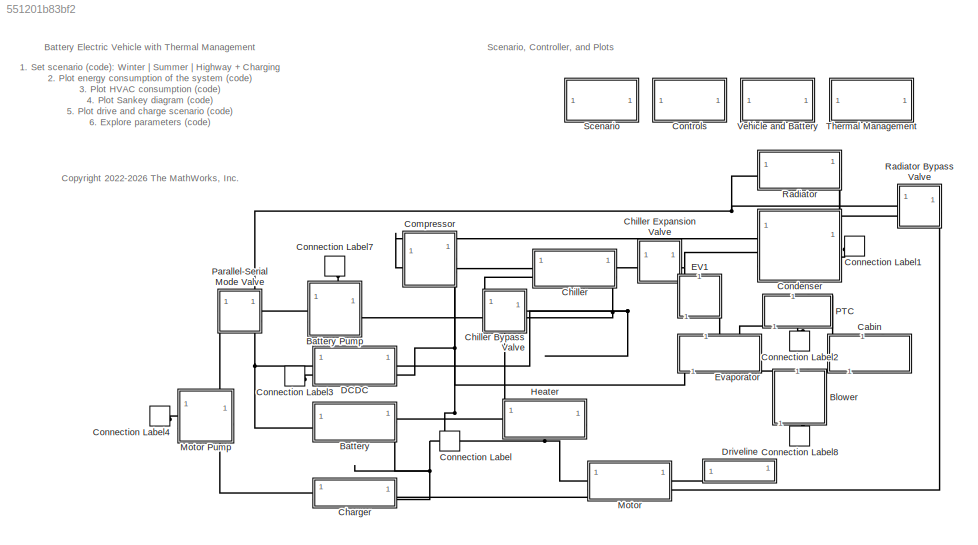
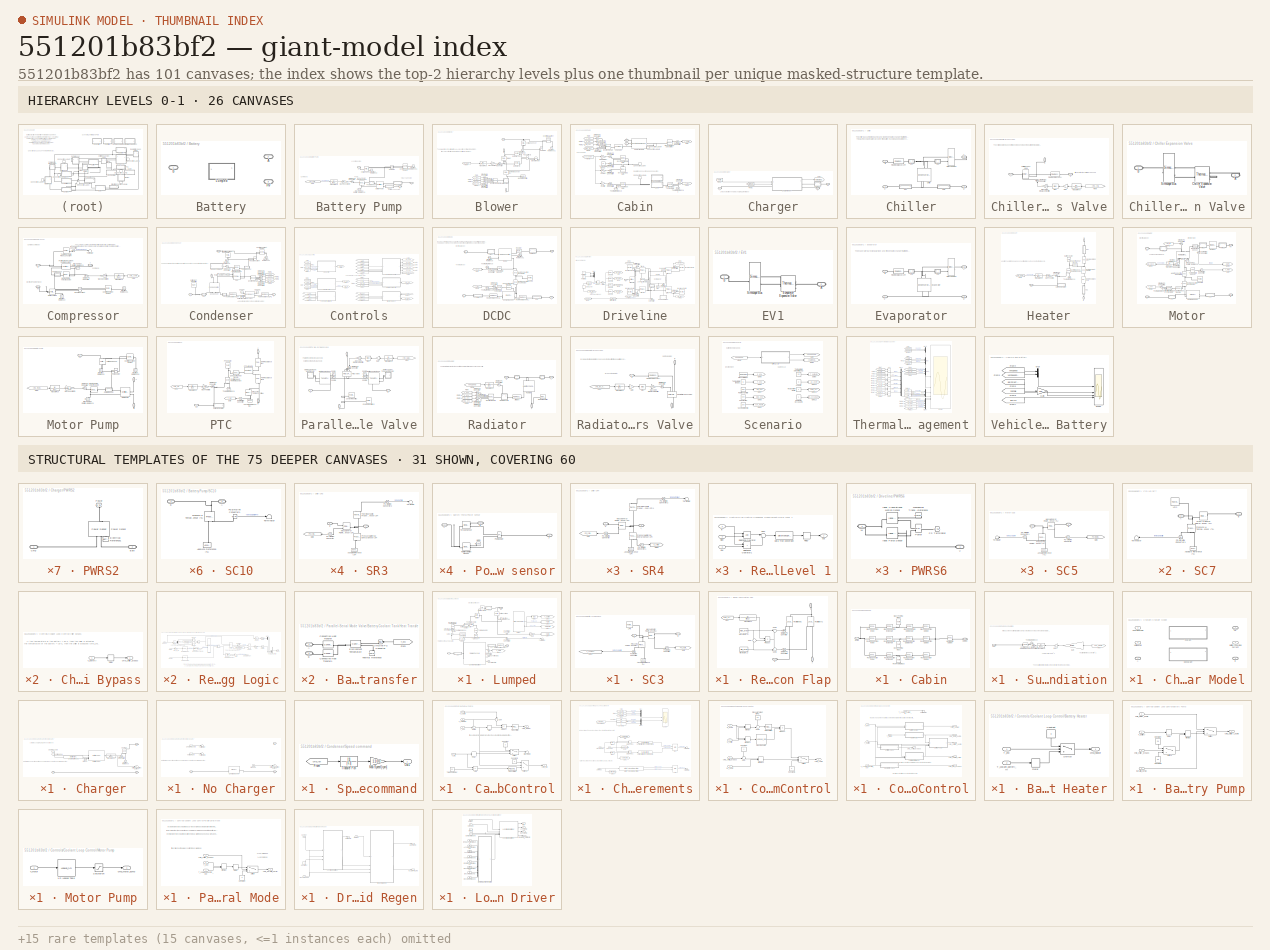
[diagram: thumbnail index - top-2 hierarchy levels (26 canvases) + 31 structural-template representatives of the remaining 75 canvases]
MODEL slx_551201b83bf2
KIND model
CONFIG AbsTol = 1e-3
CONFIG MaxStep = 5
CONFIG SolverName = daessc
CONFIG StartTime = 0
CONFIG StopTime = 765 
WORKSPACE source: external: MATLAB File  (data not in archive)
BLOCK [SubSystem] Battery
  LabelModeActiveChoice = Lumped
  PortSchema = {"entries":[{"content":{"sides":[{"content":{"connectorIds":["LConn1"]},"type":"ConnectorPlacement.EquallySpacedRectSide","uuid":"bc9c1a55-9e0d-40d8-aac6-f98fefe657ce"},{"content":{"connectorIds":["RConn1"],"side":"RIGHT"},"type":"ConnectorPlacement.EquallySpacedRectSide","uuid":"e5db21e7-c801-44a4-8cc6-c7dca48f4272"},{"content":{"side":"TOP"},"type":"ConnectorPlacement.EquallySpacedRectSide","uui...<+379ch>
  Variant = on
  VariantControl = Lump
  VariantControlMode = label
BLOCK [SubSystem] Battery Pump
  PortSchema = {"entries":[{"content":{"sides":[{"content":{"connectorIds":["LConn1"]},"type":"ConnectorPlacement.EquallySpacedRectSide","uuid":"6f564afe-534c-4fb7-ab3d-e7a67ca04849"},{"content":{"connectorIds":["RConn1"],"side":"RIGHT"},"type":"ConnectorPlacement.EquallySpacedRectSide","uuid":"159a21ca-d93c-4f03-9d58-49b012672b20"},{"content":{"connectorIds":["LConn2"],"side":"TOP"},"type":"ConnectorPlacement.E...<+253ch>
  Tag = PublishSubsystem
BLOCK [PMIOPort] Battery Pump/A
  NameLocation = right
  Side = Left
BLOCK [PMIOPort] Battery Pump/B
  NameLocation = right
  Port = 3
  Side = Right
BLOCK [Reference] Battery Pump/Battery Pump  REF=SimscapeFluids_lib/Thermal Liquid/Pumps & Motors/Centrifugal Pump
(TL)
  SourceBlock = SimscapeFluids_lib/Thermal Liquid/Pumps & Motors/Centrifugal Pump\n(TL)
  SourceType = Centrifugal Pump\n(TL)
BLOCK [Reference] Battery Pump/Controlled Current Source  REF=fl_lib/Electrical/Electrical Sources/Controlled Current
Source
  NameLocation = top
  SourceBlock = fl_lib/Electrical/Electrical Sources/Controlled Current\nSource
  SourceType = Controlled Current\nSource
BLOCK [Reference] Battery Pump/Electrical Reference  REF=fl_lib/Electrical/Electrical Elements/Electrical Reference
  NameLocation = top
  SourceBlock = fl_lib/Electrical/Electrical Elements/Electrical Reference
  SourceType = Electrical Reference
BLOCK [Reference] Battery Pump/Electrical Reference1  REF=fl_lib/Electrical/Electrical Elements/Electrical Reference
  NameLocation = top
  SourceBlock = fl_lib/Electrical/Electrical Elements/Electrical Reference
  SourceType = Electrical Reference
BLOCK [From] Battery Pump/From
  GotoTag = cmd_battery_pump
  TagVisibility = global
BLOCK [Reference] Battery Pump/Ideal Angular Velocity Source  REF=fl_lib/Mechanical/Mechanical Sources/Ideal Angular
Velocity Source
  NameLocation = top
  SourceBlock = fl_lib/Mechanical/Mechanical Sources/Ideal Angular\nVelocity Source
  SourceType = Ideal Angular\nVelocity Source
BLOCK [PMIOPort] Battery Pump/LV
  Port = 2
  Side = Left
BLOCK [Gain] Battery Pump/Max Speed [rpm]
  Gain = pump_speed_max
BLOCK [Reference] Battery Pump/Mechanical Rotational Reference  REF=fl_lib/Mechanical/Rotational Elements/Mechanical
Rotational Reference
  NameLocation = right
  SourceBlock = fl_lib/Mechanical/Rotational Elements/Mechanical\nRotational Reference
  SourceType = Mechanical\nRotational Reference
BLOCK [Reference] Battery Pump/PS Divide  REF=fl_lib/Physical Signals/Functions/PS Divide
  SourceBlock = fl_lib/Physical Signals/Functions/PS Divide
  SourceType = PS Divide
BLOCK [SubSystem] Battery Pump/Power sensor
  PortSchema = {"entries":[{"content":{"sides":[{"content":{"connectorIds":["LConn1"]},"type":"ConnectorPlacement.EquallySpacedRectSide","uuid":"14aacb84-4d2c-4fe3-9667-966fc9affdc2"},{"content":{"connectorIds":["RConn1"],"side":"RIGHT"},"type":"ConnectorPlacement.EquallySpacedRectSide","uuid":"5f04cc75-bf75-44ff-ad13-d2b18990cf19"},{"content":{"connectorIds":["LConn2"],"side":"TOP"},"type":"ConnectorPlacement.E...<+253ch>  <repeated x4 — deduplicated; at blocks: Power sensor>
BLOCK [PMIOPort] Battery Pump/Power sensor/A
  Side = Left
BLOCK [PMIOPort] Battery Pump/Power sensor/B
  Port = 3
  Side = Right
BLOCK [Reference] Battery Pump/Power sensor/MRR3  REF=fl_lib/Mechanical/Rotational Elements/Mechanical
Rotational Reference
  NameLocation = top
  SourceBlock = fl_lib/Mechanical/Rotational Elements/Mechanical\nRotational Reference
  SourceType = Mechanical\nRotational Reference
BLOCK [PMIOPort] Battery Pump/Power sensor/P
  NameLocation = top
  Port = 2
  Side = Left
BLOCK [Reference] Battery Pump/Power sensor/Pump power  REF=fl_lib/Physical Signals/Functions/PS Product
  SourceBlock = fl_lib/Physical Signals/Functions/PS Product
  SourceType = PS Product
BLOCK [Reference] Battery Pump/Power sensor/Rotational Motion Sensor  REF=fl_lib/Mechanical/Mechanical Sensors/Ideal Rotational
Motion Sensor
  SourceBlock = fl_lib/Mechanical/Mechanical Sensors/Ideal Rotational\nMotion Sensor
  SourceType = Ideal Rotational\nMotion Sensor
BLOCK [Reference] Battery Pump/Power sensor/Torque Sensor  REF=fl_lib/Mechanical/Mechanical Sensors/Ideal Torque Sensor
  SourceBlock = fl_lib/Mechanical/Mechanical Sensors/Ideal Torque Sensor
  SourceType = Ideal Torque Sensor
BLOCK [SubSystem] Battery Pump/SC10
BLOCK [PMIOPort] Battery Pump/SC10/A
  Port = 2
  Side = Right
BLOCK [Reference] Battery Pump/SC10/Absolute Reference (TL)  REF=fl_lib/Thermal Liquid/Elements/Absolute Reference
(TL)
  NameLocation = right
  SourceBlock = fl_lib/Thermal Liquid/Elements/Absolute Reference\n(TL)
  SourceType = Absolute Reference\n(TL)
BLOCK [PMIOPort] Battery Pump/SC10/B
  Side = Left
BLOCK [Reference] Battery Pump/SC10/PS-Simulink Converter1  REF=nesl_utility/PS-Simulink
Converter
  SourceBlock = nesl_utility/PS-Simulink\nConverter
  SourceType = PS-Simulink\nConverter
BLOCK [Reference] Battery Pump/SC10/Pressure & Temperature Sensor (TL)  REF=fl_lib/Thermal Liquid/Sensors/Pressure &
Temperature Sensor
(TL)
  NameLocation = right
  SourceBlock = fl_lib/Thermal Liquid/Sensors/Pressure &\nTemperature Sensor\n(TL)
  SourceType = Pressure &\nTemperature Sensor\n(TL)
BLOCK [Terminator] Battery Pump/SC10/Terminator
BLOCK [SubSystem] Battery Pump/SC11
BLOCK [PMIOPort] Battery Pump/SC11/A
  Port = 2
  Side = Right
BLOCK [Reference] Battery Pump/SC11/Absolute Reference (TL)  REF=fl_lib/Thermal Liquid/Elements/Absolute Reference
(TL)
  NameLocation = right
  SourceBlock = fl_lib/Thermal Liquid/Elements/Absolute Reference\n(TL)
  SourceType = Absolute Reference\n(TL)
BLOCK [PMIOPort] Battery Pump/SC11/B
  Side = Left
BLOCK [Reference] Battery Pump/SC11/PS-Simulink Converter1  REF=nesl_utility/PS-Simulink
Converter
  SourceBlock = nesl_utility/PS-Simulink\nConverter
  SourceType = PS-Simulink\nConverter
BLOCK [Reference] Battery Pump/SC11/Pressure & Temperature Sensor (TL)  REF=fl_lib/Thermal Liquid/Sensors/Pressure &
Temperature Sensor
(TL)
  NameLocation = right
  SourceBlock = fl_lib/Thermal Liquid/Sensors/Pressure &\nTemperature Sensor\n(TL)
  SourceType = Pressure &\nTemperature Sensor\n(TL)
BLOCK [Terminator] Battery Pump/SC11/Terminator
BLOCK [Reference] Battery Pump/Simulink-PS Converter  REF=nesl_utility/Simulink-PS
Converter
  SourceBlock = nesl_utility/Simulink-PS\nConverter
  SourceType = Simulink-PS\nConverter
BLOCK [TransferFcn] Battery Pump/Transfer Fcn
  Denominator = [5 1]
BLOCK [Reference] Battery Pump/Voltage Sensor  REF=fl_lib/Electrical/Electrical Sensors/Voltage Sensor
  SourceBlock = fl_lib/Electrical/Electrical Sensors/Voltage Sensor
  SourceType = Voltage Sensor
BLOCK [PMIOPort] Battery/A
  Port = 2
  Side = Right
BLOCK [PMIOPort] Battery/B
  Side = Left
BLOCK [PMIOPort] Battery/HV
  Port = 3
  Side = Right
BLOCK [SubSystem] Battery/Lumped
  VariantControl = Lumped
BLOCK [PMIOPort] Battery/Lumped/A
  Side = Right
BLOCK [PMIOPort] Battery/Lumped/B
  Port = 3
  Side = Left
BLOCK [Reference] Battery/Lumped/Battery  REF=batt_lib/Cells/Battery Equivalent
Circuit
  NameLocation = right
  SourceBlock = batt_lib/Cells/Battery Equivalent\nCircuit
  SourceType = Battery Equivalent\nCircuit
BLOCK [Reference] Battery/Lumped/Battery Convection Outside  REF=fl_lib/Thermal/Thermal Elements/Convective Heat
Transfer
  SourceBlock = fl_lib/Thermal/Thermal Elements/Convective Heat\nTransfer
  SourceType = Convective Heat\nTransfer
BLOCK [Reference] Battery/Lumped/Battery current1  REF=fl_lib/Electrical/Electrical Sensors/Current Sensor
  SourceBlock = fl_lib/Electrical/Electrical Sensors/Current Sensor
  SourceType = Current Sensor
BLOCK [Reference] Battery/Lumped/Battery voltage  REF=fl_lib/Electrical/Electrical Sensors/Voltage Sensor
  NameLocation = left
  SourceBlock = fl_lib/Electrical/Electrical Sensors/Voltage Sensor
  SourceType = Voltage Sensor
BLOCK [Bias] Battery/Lumped/Bias
  Bias = -273.15
  SaturateOnIntegerOverflow = off
BLOCK [Constant] Battery/Lumped/Constant2
  NameLocation = top
  Value = 273.15
BLOCK [Reference] Battery/Lumped/CoolingPlateBottom  REF=batt_lib/Thermal/Parallel Channels
  SourceBlock = batt_lib/Thermal/Parallel Channels
  SourceType = Parallel Channels
BLOCK [Reference] Battery/Lumped/Electrical Reference1  REF=fl_lib/Electrical/Electrical Elements/Electrical Reference
  NameLocation = top
  SourceBlock = fl_lib/Electrical/Electrical Elements/Electrical Reference
  SourceType = Electrical Reference
BLOCK [Reference] Battery/Lumped/Environment Temperature1  REF=fl_lib/Thermal/Thermal Sources/Controlled
Temperature Source
  NameLocation = left
  SourceBlock = fl_lib/Thermal/Thermal Sources/Controlled\nTemperature Source
  SourceType = Controlled\nTemperature Source
BLOCK [Reference] Battery/Lumped/Flow Resistance (TL)  REF=fl_lib/Thermal Liquid/Elements/Flow Resistance (TL)
  SourceBlock = fl_lib/Thermal Liquid/Elements/Flow Resistance (TL)
  SourceType = Flow Resistance (TL)
BLOCK [From] Battery/Lumped/From1
  GotoTag = T_env
  NameLocation = top
  TagVisibility = global
BLOCK [Gain] Battery/Lumped/Gain
  Gain = 1/96
BLOCK [Goto] Battery/Lumped/Goto1
  GotoTag = T_plate
  TagVisibility = global
BLOCK [Goto] Battery/Lumped/Goto2
  GotoTag = TCells
  TagVisibility = global
BLOCK [Goto] Battery/Lumped/Goto4
  GotoTag = VCells
  TagVisibility = global
BLOCK [Goto] Battery/Lumped/Goto6
  GotoTag = T_battery_max
  TagVisibility = global
BLOCK [Goto] Battery/Lumped/Goto7
  GotoTag = SOCCells
  TagVisibility = global
BLOCK [PMIOPort] Battery/Lumped/HV
  NameLocation = top
  Port = 2
  Side = Right
BLOCK [Reference] Battery/Lumped/Heat Flow Rate Sensor  REF=fl_lib/Thermal/Thermal Sensors/Heat Flow Rate
Sensor
  NameLocation = left
  SourceBlock = fl_lib/Thermal/Thermal Sensors/Heat Flow Rate\nSensor
  SourceType = Heat Flow Rate\nSensor
BLOCK [Reference] Battery/Lumped/PS Terminator1  REF=fl_lib/Physical Signals/Sinks/PS Terminator
  SourceBlock = fl_lib/Physical Signals/Sinks/PS Terminator
  SourceType = PS Terminator
BLOCK [Reference] Battery/Lumped/PS Terminator2  REF=fl_lib/Physical Signals/Sinks/PS Terminator
  SourceBlock = fl_lib/Physical Signals/Sinks/PS Terminator
  SourceType = PS Terminator
BLOCK [Reference] Battery/Lumped/PS-Simulink Converter  REF=nesl_utility/PS-Simulink
Converter
  SourceBlock = nesl_utility/PS-Simulink\nConverter
  SourceType = PS-Simulink\nConverter
BLOCK [Reference] Battery/Lumped/PS-Simulink Converter1  REF=nesl_utility/PS-Simulink
Converter
  SourceBlock = nesl_utility/PS-Simulink\nConverter
  SourceType = PS-Simulink\nConverter
BLOCK [Reference] Battery/Lumped/PS-Simulink Converter2  REF=nesl_utility/PS-Simulink
Converter
  SourceBlock = nesl_utility/PS-Simulink\nConverter
  SourceType = PS-Simulink\nConverter
BLOCK [SubSystem] Battery/Lumped/PWRS1
BLOCK [PMIOPort] Battery/Lumped/PWRS1/Batt
  Side = Left
BLOCK [PMIOPort] Battery/Lumped/PWRS1/EM
  Port = 2
  Side = Right
BLOCK [Reference] Battery/Lumped/PWRS1/Electrical Reference1  REF=fl_lib/Electrical/Electrical Elements/Electrical Reference
  NameLocation = right
  SourceBlock = fl_lib/Electrical/Electrical Elements/Electrical Reference
  SourceType = Electrical Reference
BLOCK [Reference] Battery/Lumped/PWRS1/Power  REF=fl_lib/Physical Signals/Sinks/PS Terminator
  NameLocation = right
  SourceBlock = fl_lib/Physical Signals/Sinks/PS Terminator
  SourceType = PS Terminator
BLOCK [Reference] Battery/Lumped/PWRS1/Power Sensor  REF=ee_lib/Sensors &
Transducers/Power Sensor
  NameLocation = right
  SourceBlock = ee_lib/Sensors &\nTransducers/Power Sensor
  SourceType = Power Sensor
BLOCK [SimscapeProbe] Battery/Lumped/Probe
  BoundBlock = 9489
  Variables = {batteryTemperature, stateOfCharge}
BLOCK [SubSystem] Battery/Lumped/SC3
BLOCK [PMIOPort] Battery/Lumped/SC3/A
  Port = 2
  Side = Right
BLOCK [Reference] Battery/Lumped/SC3/Absolute Reference (TL)  REF=fl_lib/Thermal Liquid/Elements/Absolute Reference
(TL)
  NameLocation = right
  SourceBlock = fl_lib/Thermal Liquid/Elements/Absolute Reference\n(TL)
  SourceType = Absolute Reference\n(TL)
BLOCK [PMIOPort] Battery/Lumped/SC3/B
  Side = Left
BLOCK [Goto] Battery/Lumped/SC3/Goto
  GotoTag = Phi_battery_in
  TagVisibility = global
BLOCK [Goto] Battery/Lumped/SC3/Goto1
  GotoTag = T_coolant_battery_in
  TagVisibility = global
BLOCK [Reference] Battery/Lumped/SC3/LPIn  REF=fl_lib/Thermal Liquid/Sensors/Thermodynamic
Properties Sensor
(TL)
  SourceBlock = fl_lib/Thermal Liquid/Sensors/Thermodynamic\nProperties Sensor\n(TL)
  SourceType = Thermodynamic\nProperties Sensor\n(TL)
BLOCK [Reference] Battery/Lumped/SC3/Mass & Energy Flow Rate Sensor (TL)  REF=fl_lib/Thermal Liquid/Sensors/Flow Rate Sensor
(TL)
  SourceBlock = fl_lib/Thermal Liquid/Sensors/Flow Rate Sensor\n(TL)
  SourceType = Flow Rate Sensor\n(TL)
BLOCK [Reference] Battery/Lumped/SC3/PS-Simulink Converter  REF=nesl_utility/PS-Simulink
Converter
  SourceBlock = nesl_utility/PS-Simulink\nConverter
  SourceType = PS-Simulink\nConverter
BLOCK [Reference] Battery/Lumped/SC3/PS-Simulink Converter1  REF=nesl_utility/PS-Simulink
Converter
  SourceBlock = nesl_utility/PS-Simulink\nConverter
  SourceType = PS-Simulink\nConverter
BLOCK [Reference] Battery/Lumped/SC3/Pressure & Temperature Sensor (TL)  REF=fl_lib/Thermal Liquid/Sensors/Pressure &
Temperature Sensor
(TL)
  NameLocation = right
  SourceBlock = fl_lib/Thermal Liquid/Sensors/Pressure &\nTemperature Sensor\n(TL)
  SourceType = Pressure &\nTemperature Sensor\n(TL)
BLOCK [SubSystem] Battery/Lumped/SC4
BLOCK [PMIOPort] Battery/Lumped/SC4/A
  Port = 2
  Side = Right
BLOCK [Reference] Battery/Lumped/SC4/Absolute Reference (TL)  REF=fl_lib/Thermal Liquid/Elements/Absolute Reference
(TL)
  NameLocation = right
  SourceBlock = fl_lib/Thermal Liquid/Elements/Absolute Reference\n(TL)
  SourceType = Absolute Reference\n(TL)
BLOCK [PMIOPort] Battery/Lumped/SC4/B
  Side = Left
BLOCK [Goto] Battery/Lumped/SC4/Goto
  GotoTag = Phi_battery_out
  TagVisibility = global
BLOCK [Reference] Battery/Lumped/SC4/LPOut  REF=fl_lib/Thermal Liquid/Sensors/Thermodynamic
Properties Sensor
(TL)
  SourceBlock = fl_lib/Thermal Liquid/Sensors/Thermodynamic\nProperties Sensor\n(TL)
  SourceType = Thermodynamic\nProperties Sensor\n(TL)
BLOCK [Reference] Battery/Lumped/SC4/Mass & Energy Flow Rate Sensor (TL)  REF=fl_lib/Thermal Liquid/Sensors/Flow Rate Sensor
(TL)
  NameLocation = top
  SourceBlock = fl_lib/Thermal Liquid/Sensors/Flow Rate Sensor\n(TL)
  SourceType = Flow Rate Sensor\n(TL)
BLOCK [Reference] Battery/Lumped/SC4/PS-Simulink Converter  REF=nesl_utility/PS-Simulink
Converter
  SourceBlock = nesl_utility/PS-Simulink\nConverter
  SourceType = PS-Simulink\nConverter
BLOCK [Reference] Battery/Lumped/SC4/PS-Simulink Converter1  REF=nesl_utility/PS-Simulink
Converter
  SourceBlock = nesl_utility/PS-Simulink\nConverter
  SourceType = PS-Simulink\nConverter
BLOCK [Reference] Battery/Lumped/SC4/Pressure & Temperature Sensor (TL)  REF=fl_lib/Thermal Liquid/Sensors/Pressure &
Temperature Sensor
(TL)
  NameLocation = right
  SourceBlock = fl_lib/Thermal Liquid/Sensors/Pressure &\nTemperature Sensor\n(TL)
  SourceType = Pressure &\nTemperature Sensor\n(TL)
BLOCK [Terminator] Battery/Lumped/SC4/Terminator
BLOCK [Reference] Battery/Lumped/Simulink-PS Converter1  REF=nesl_utility/Simulink-PS
Converter
  NameLocation = right
  SourceBlock = nesl_utility/Simulink-PS\nConverter
  SourceType = Simulink-PS\nConverter
BLOCK [Sum] Battery/Lumped/Sum1
  Inputs = |++
  NameLocation = right
BLOCK [Terminator] Battery/Lumped/Terminator
BLOCK [Reference] Battery/Lumped/Thermal Reference1  REF=fl_lib/Thermal/Thermal Elements/Thermal Reference
  NameLocation = right
  SourceBlock = fl_lib/Thermal/Thermal Elements/Thermal Reference
  SourceType = Thermal Reference
BLOCK [Reference] Battery/Lumped/Thermal Resistor  REF=ee_lib/Passive/Thermal/Thermal Resistor
  NameLocation = left
  SourceBlock = ee_lib/Passive/Thermal/Thermal Resistor
  SourceType = Thermal Resistor
BLOCK [Reference] Battery/Lumped/Thermal Resistor1  REF=ee_lib/Passive/Thermal/Thermal Resistor
  NameLocation = top
  SourceBlock = ee_lib/Passive/Thermal/Thermal Resistor
  SourceType = Thermal Resistor
BLOCK [SubSystem] Blower
  NameLocation = right
  PortSchema = {"entries":[{"content":{"sides":[{"content":{"connectorIds":["LConn1"]},"type":"ConnectorPlacement.EquallySpacedRectSide","uuid":"e68f4e4f-d2a0-4f21-a3dd-a8ccea0ce87c"},{"content":{"side":"RIGHT"},"type":"ConnectorPlacement.EquallySpacedRectSide","uuid":"01f15736-e6d7-4b17-9e84-cef8e8356dfe"},{"content":{"connectorIds":["LConn2"],"side":"TOP"},"type":"ConnectorPlacement.EquallySpacedRectSide","uui...<+505ch>  <repeated x3 — deduplicated; at blocks: Blower, Motor Pump, PTC>
  Tag = PublishSubsystem
BLOCK [PMIOPort] Blower/A
  NameLocation = right
  Port = 3
  Side = Right
BLOCK [PMIOPort] Blower/B
  NameLocation = right
  Port = 2
  Side = Left
BLOCK [Reference] Blower/Blower  REF=fl_lib/Moist Air/Sources/Flow Rate Source
(MA)
  NameLocation = right
  SourceBlock = fl_lib/Moist Air/Sources/Flow Rate Source\n(MA)
  SourceType = Flow Rate Source\n(MA)
BLOCK [Reference] Blower/Blower power  REF=fl_lib/Physical Signals/Functions/PS Product
  SourceBlock = fl_lib/Physical Signals/Functions/PS Product
  SourceType = PS Product
BLOCK [Reference] Blower/Controlled Current Source  REF=fl_lib/Electrical/Electrical Sources/Controlled Current
Source
  NameLocation = top
  SourceBlock = fl_lib/Electrical/Electrical Sources/Controlled Current\nSource
  SourceType = Controlled Current\nSource
BLOCK [Reference] Blower/Electrical Reference  REF=fl_lib/Electrical/Electrical Elements/Electrical Reference
  NameLocation = right
  SourceBlock = fl_lib/Electrical/Electrical Elements/Electrical Reference
  SourceType = Electrical Reference
BLOCK [Reference] Blower/Electrical Reference1  REF=fl_lib/Electrical/Electrical Elements/Electrical Reference
  NameLocation = left
  SourceBlock = fl_lib/Electrical/Electrical Elements/Electrical Reference
  SourceType = Electrical Reference
BLOCK [Reference] Blower/Enthalpy in  REF=fl_lib/Moist Air/Sensors/Thermodynamic
Properties Sensor
(MA)
  SourceBlock = fl_lib/Moist Air/Sensors/Thermodynamic\nProperties Sensor\n(MA)
  SourceType = Thermodynamic\nProperties Sensor\n(MA)
BLOCK [Reference] Blower/Enthalpy out   REF=fl_lib/Moist Air/Sensors/Thermodynamic
Properties Sensor
(MA)
  SourceBlock = fl_lib/Moist Air/Sensors/Thermodynamic\nProperties Sensor\n(MA)
  SourceType = Thermodynamic\nProperties Sensor\n(MA)
BLOCK [Reference] Blower/Environment Air  REF=fl_lib/Moist Air/Elements/Reservoir (MA)
  SourceBlock = fl_lib/Moist Air/Elements/Reservoir (MA)
  SourceType = Reservoir (MA)
BLOCK [Reference] Blower/Flow Rate Sensor (MA)  REF=fl_lib/Moist Air/Sensors/Flow Rate Sensor
(MA)
  NameLocation = right
  SourceBlock = fl_lib/Moist Air/Sensors/Flow Rate Sensor\n(MA)
  SourceType = Flow Rate Sensor\n(MA)
BLOCK [From] Blower/From
  GotoTag = T_env
  TagVisibility = global
BLOCK [From] Blower/From1
  GotoTag = p_env
  TagVisibility = global
BLOCK [From] Blower/From2
  GotoTag = RH_env
  TagVisibility = global
BLOCK [From] Blower/From3
  GotoTag = CO2_env
  TagVisibility = global
BLOCK [From] Blower/From4
  GotoTag = cmd_blower
  TagVisibility = global
BLOCK [PMIOPort] Blower/LV
  Side = Left
BLOCK [Gain] Blower/Max Flow [m^3//s]
  Gain = 0.15*2.0
BLOCK [Reference] Blower/Moist Air Properties  REF=fl_lib/Moist Air/Utilities/Moist Air Properties
(MA)
  SourceBlock = fl_lib/Moist Air/Utilities/Moist Air Properties\n(MA)
  SourceType = Moist Air Properties\n(MA)
BLOCK [Reference] Blower/PS Divide  REF=fl_lib/Physical Signals/Functions/PS Divide
  SourceBlock = fl_lib/Physical Signals/Functions/PS Divide
  SourceType = PS Divide
BLOCK [Reference] Blower/PS Subtract1  REF=fl_lib/Physical Signals/Functions/PS Subtract
  SourceBlock = fl_lib/Physical Signals/Functions/PS Subtract
  SourceType = PS Subtract
BLOCK [SubSystem] Blower/Recirculation Flap
  NameLocation = right
  PortSchema = {"entries":[{"content":{"sides":[{"content":{"connectorIds":["LConn1"]},"type":"ConnectorPlacement.EquallySpacedRectSide","uuid":"955749ca-45ab-4941-92ab-355bdf9f0774"},{"content":{"connectorIds":[],"side":"RIGHT"},"type":"ConnectorPlacement.EquallySpacedRectSide","uuid":"c92dcc5f-a0c1-47cb-824d-a6fc82e3fc14"},{"content":{"connectorIds":["LConn2"],"side":"TOP"},"type":"ConnectorPlacement.EquallySp...<+541ch>
  Tag = PublishSubsystem
BLOCK [PMIOPort] Blower/Recirculation Flap/A
  NameLocation = right
  Port = 3
  Side = Right
BLOCK [PMIOPort] Blower/Recirculation Flap/B
  Side = Left
BLOCK [PMIOPort] Blower/Recirculation Flap/C
  NameLocation = right
  Port = 2
  Side = Left
BLOCK [From] Blower/Recirculation Flap/From
  GotoTag = recirc_onoff
  TagVisibility = global
BLOCK [Constant] Blower/Recirculation Flap/Max Area [m^2]
  Value = max_area
BLOCK [Constant] Blower/Recirculation Flap/Min Area [m^2]
  Value = min_area
BLOCK [Product] Blower/Recirculation Flap/Product
BLOCK [Reference] Blower/Recirculation Flap/Restriction AC  REF=fl_lib/Moist Air/Elements/Local Restriction
(MA)
  NameLocation = right
  SourceBlock = fl_lib/Moist Air/Elements/Local Restriction\n(MA)
  SourceType = Local Restriction\n(MA)
BLOCK [Reference] Blower/Recirculation Flap/Restriction BC  REF=fl_lib/Moist Air/Elements/Local Restriction
(MA)
  NameLocation = right
  SourceBlock = fl_lib/Moist Air/Elements/Local Restriction\n(MA)
  SourceType = Local Restriction\n(MA)
BLOCK [Reference] Blower/Recirculation Flap/Simulink-PS Converter  REF=nesl_utility/Simulink-PS
Converter
  SourceBlock = nesl_utility/Simulink-PS\nConverter
  SourceType = Simulink-PS\nConverter
BLOCK [Reference] Blower/Recirculation Flap/Simulink-PS Converter1  REF=nesl_utility/Simulink-PS
Converter
  SourceBlock = nesl_utility/Simulink-PS\nConverter
  SourceType = Simulink-PS\nConverter
BLOCK [Sum] Blower/Recirculation Flap/Sum
  Inputs = +|-
BLOCK [Sum] Blower/Recirculation Flap/Sum1
  Inputs = |+-
BLOCK [Sum] Blower/Recirculation Flap/Sum2
  Inputs = ++|
BLOCK [TransferFcn] Blower/Recirculation Flap/Transfer Fcn
  Denominator = [tau 1]
BLOCK [Reference] Blower/Simulink-PS Converter  REF=nesl_utility/Simulink-PS
Converter
  SourceBlock = nesl_utility/Simulink-PS\nConverter
  SourceType = Simulink-PS\nConverter
BLOCK [Reference] Blower/Simulink-PS Converter1  REF=nesl_utility/Simulink-PS
Converter
  SourceBlock = nesl_utility/Simulink-PS\nConverter
  SourceType = Simulink-PS\nConverter
BLOCK [Reference] Blower/Simulink-PS Converter2  REF=nesl_utility/Simulink-PS
Converter
  SourceBlock = nesl_utility/Simulink-PS\nConverter
  SourceType = Simulink-PS\nConverter
BLOCK [Reference] Blower/Simulink-PS Converter3  REF=nesl_utility/Simulink-PS
Converter
  SourceBlock = nesl_utility/Simulink-PS\nConverter
  SourceType = Simulink-PS\nConverter
BLOCK [Reference] Blower/Simulink-PS Converter4  REF=nesl_utility/Simulink-PS
Converter
  SourceBlock = nesl_utility/Simulink-PS\nConverter
  SourceType = Simulink-PS\nConverter
BLOCK [TransferFcn] Blower/Transfer Fcn
  Denominator = [5 1]
BLOCK [Reference] Blower/Voltage Sensor  REF=fl_lib/Electrical/Electrical Sensors/Voltage Sensor
  NameLocation = right
  SourceBlock = fl_lib/Electrical/Electrical Sensors/Voltage Sensor
  SourceType = Voltage Sensor
BLOCK [SubSystem] Cabin
  NameLocation = right
  Tag = PublishSubsystem
BLOCK [PMIOPort] Cabin/A
  NameLocation = top
  Port = 2
  Side = Right
BLOCK [PMIOPort] Cabin/B
  Side = Left
BLOCK [Gain] Cabin/CO2 [g//s]
  Gain = 0.01
BLOCK [SubSystem] Cabin/Cabin
  Tag = PublishSubsystem
BLOCK [Reference] Cabin/Cabin Air Volume  REF=fl_lib/Moist Air/Elements/Constant Volume
Chamber (MA)
  NameLocation = top
  SourceBlock = fl_lib/Moist Air/Elements/Constant Volume\nChamber (MA)
  SourceType = Constant Volume\nChamber (MA)
BLOCK [Reference] Cabin/Cabin/Doors Conduction Inside Half  REF=fl_lib/Thermal/Thermal Elements/Conductive Heat
Transfer
  SourceBlock = fl_lib/Thermal/Thermal Elements/Conductive Heat\nTransfer
  SourceType = Conductive Heat\nTransfer
BLOCK [Reference] Cabin/Cabin/Doors Conduction Outside Half  REF=fl_lib/Thermal/Thermal Elements/Conductive Heat
Transfer
  SourceBlock = fl_lib/Thermal/Thermal Elements/Conductive Heat\nTransfer
  SourceType = Conductive Heat\nTransfer
BLOCK [Reference] Cabin/Cabin/Doors Convection Inside  REF=fl_lib/Thermal/Thermal Elements/Convective Heat
Transfer
  SourceBlock = fl_lib/Thermal/Thermal Elements/Convective Heat\nTransfer
  SourceType = Convective Heat\nTransfer
BLOCK [Reference] Cabin/Cabin/Doors Convection Outside  REF=fl_lib/Thermal/Thermal Elements/Convective Heat
Transfer
  SourceBlock = fl_lib/Thermal/Thermal Elements/Convective Heat\nTransfer
  SourceType = Convective Heat\nTransfer
BLOCK [Reference] Cabin/Cabin/Doors Thermal Mass  REF=fl_lib/Thermal/Thermal Elements/Thermal Mass
  SourceBlock = fl_lib/Thermal/Thermal Elements/Thermal Mass
  SourceType = Thermal Mass
BLOCK [Reference] Cabin/Cabin/Glass Conduction Inside Half  REF=fl_lib/Thermal/Thermal Elements/Conductive Heat
Transfer
  SourceBlock = fl_lib/Thermal/Thermal Elements/Conductive Heat\nTransfer
  SourceType = Conductive Heat\nTransfer
BLOCK [Reference] Cabin/Cabin/Glass Conduction Outside Half  REF=fl_lib/Thermal/Thermal Elements/Conductive Heat
Transfer
  SourceBlock = fl_lib/Thermal/Thermal Elements/Conductive Heat\nTransfer
  SourceType = Conductive Heat\nTransfer
BLOCK [Reference] Cabin/Cabin/Glass Convection Inside  REF=fl_lib/Thermal/Thermal Elements/Convective Heat
Transfer
  SourceBlock = fl_lib/Thermal/Thermal Elements/Convective Heat\nTransfer
  SourceType = Convective Heat\nTransfer
BLOCK [Reference] Cabin/Cabin/Glass Convection Outside  REF=fl_lib/Thermal/Thermal Elements/Convective Heat
Transfer
  SourceBlock = fl_lib/Thermal/Thermal Elements/Convective Heat\nTransfer
  SourceType = Convective Heat\nTransfer
BLOCK [Reference] Cabin/Cabin/Glass Thermal Mass  REF=fl_lib/Thermal/Thermal Elements/Thermal Mass
  NameLocation = top
  SourceBlock = fl_lib/Thermal/Thermal Elements/Thermal Mass
  SourceType = Thermal Mass
BLOCK [Reference] Cabin/Cabin/Heat Flow to Outside  REF=fl_lib/Thermal/Thermal Sensors/Heat Flow Rate
Sensor
  SourceBlock = fl_lib/Thermal/Thermal Sensors/Heat Flow Rate\nSensor
  SourceType = Heat Flow Rate\nSensor
BLOCK [PMIOPort] Cabin/Cabin/Inside
  Side = Left
BLOCK [PMIOPort] Cabin/Cabin/Outside
  Port = 2
  Side = Right
BLOCK [Reference] Cabin/Cabin/Roof Conduction Inside Half  REF=fl_lib/Thermal/Thermal Elements/Conductive Heat
Transfer
  SourceBlock = fl_lib/Thermal/Thermal Elements/Conductive Heat\nTransfer
  SourceType = Conductive Heat\nTransfer
BLOCK [Reference] Cabin/Cabin/Roof Conduction Outside Half  REF=fl_lib/Thermal/Thermal Elements/Conductive Heat
Transfer
  SourceBlock = fl_lib/Thermal/Thermal Elements/Conductive Heat\nTransfer
  SourceType = Conductive Heat\nTransfer
BLOCK [Reference] Cabin/Cabin/Roof Convection Inside  REF=fl_lib/Thermal/Thermal Elements/Convective Heat
Transfer
  SourceBlock = fl_lib/Thermal/Thermal Elements/Convective Heat\nTransfer
  SourceType = Convective Heat\nTransfer
BLOCK [Reference] Cabin/Cabin/Roof Convection Outside  REF=fl_lib/Thermal/Thermal Elements/Convective Heat
Transfer
  SourceBlock = fl_lib/Thermal/Thermal Elements/Convective Heat\nTransfer
  SourceType = Convective Heat\nTransfer
BLOCK [Reference] Cabin/Cabin/Roof Thermal Mass  REF=fl_lib/Thermal/Thermal Elements/Thermal Mass
  SourceBlock = fl_lib/Thermal/Thermal Elements/Thermal Mass
  SourceType = Thermal Mass
BLOCK [ConnectionLabel] Cabin/Connection Label
  Label = passenger_air
BLOCK [ConnectionLabel] Cabin/Connection Label1
  Label = int_and_ext_heat
  NameLocation = right
BLOCK [ConnectionLabel] Cabin/Connection Label3
  Label = passenger_air
BLOCK [ConnectionLabel] Cabin/Connection Label4
  Label = int_and_ext_heat
BLOCK [Reference] Cabin/Environment Air  REF=fl_lib/Moist Air/Elements/Reservoir (MA)
  SourceBlock = fl_lib/Moist Air/Elements/Reservoir (MA)
  SourceType = Reservoir (MA)
BLOCK [Reference] Cabin/Environment Temperature  REF=fl_lib/Thermal/Thermal Sources/Controlled
Temperature Source
  SourceBlock = fl_lib/Thermal/Thermal Sources/Controlled\nTemperature Source
  SourceType = Controlled\nTemperature Source
BLOCK [From] Cabin/From
  GotoTag = T_env
  TagVisibility = global
BLOCK [From] Cabin/From1
  GotoTag = p_env
  TagVisibility = global
BLOCK [From] Cabin/From2
  GotoTag = RH_env
  TagVisibility = global
BLOCK [From] Cabin/From3
  GotoTag = CO2_env
  TagVisibility = global
BLOCK [From] Cabin/From4
  GotoTag = T_env
  TagVisibility = global
BLOCK [From] Cabin/From5
  GotoTag = N_occupant
  TagVisibility = global
BLOCK [Goto] Cabin/Goto
  GotoTag = T_cabin
  TagVisibility = global
BLOCK [Gain] Cabin/Heat [W]
  Gain = 70
BLOCK [Reference] Cabin/Leakage  REF=fl_lib/Moist Air/Elements/Local Restriction
(MA)
  SourceBlock = fl_lib/Moist Air/Elements/Local Restriction\n(MA)
  SourceType = Local Restriction\n(MA)
BLOCK [Reference] Cabin/Measurement Selector (MA)  REF=fl_lib/Moist Air/Sensors/Measurement Selector
(MA)
  SourceBlock = fl_lib/Moist Air/Sensors/Measurement Selector\n(MA)
  SourceType = Measurement Selector\n(MA)
BLOCK [Gain] Cabin/Moisture [g//s]
  Gain = 0.04
BLOCK [Reference] Cabin/Occupant CO2 Gain  REF=fl_lib/Moist Air/Sources/Moisture & Trace Gas
Sources/Trace Gas Source
(MA)
  SourceBlock = fl_lib/Moist Air/Sources/Moisture & Trace Gas\nSources/Trace Gas Source\n(MA)
  SourceType = Trace Gas Source\n(MA)
BLOCK [Reference] Cabin/Occupant Heat Gain  REF=fl_lib/Thermal/Thermal Sources/Controlled Heat Flow
Rate Source
  SourceBlock = fl_lib/Thermal/Thermal Sources/Controlled Heat Flow\nRate Source
  SourceType = Controlled Heat Flow\nRate Source
BLOCK [Reference] Cabin/Occupant Moisture Gain  REF=fl_lib/Moist Air/Sources/Moisture & Trace Gas
Sources/Moisture Source (MA)
  SourceBlock = fl_lib/Moist Air/Sources/Moisture & Trace Gas\nSources/Moisture Source (MA)
  SourceType = Moisture Source (MA)
BLOCK [Reference] Cabin/PS-Simulink Converter  REF=nesl_utility/PS-Simulink
Converter
  SourceBlock = nesl_utility/PS-Simulink\nConverter
  SourceType = PS-Simulink\nConverter
BLOCK [Reference] Cabin/Simulink-PS Converter  REF=nesl_utility/Simulink-PS
Converter
  SourceBlock = nesl_utility/Simulink-PS\nConverter
  SourceType = Simulink-PS\nConverter
BLOCK [Reference] Cabin/Simulink-PS Converter1  REF=nesl_utility/Simulink-PS
Converter
  SourceBlock = nesl_utility/Simulink-PS\nConverter
  SourceType = Simulink-PS\nConverter
BLOCK [Reference] Cabin/Simulink-PS Converter2  REF=nesl_utility/Simulink-PS
Converter
  SourceBlock = nesl_utility/Simulink-PS\nConverter
  SourceType = Simulink-PS\nConverter
BLOCK [Reference] Cabin/Simulink-PS Converter3  REF=nesl_utility/Simulink-PS
Converter
  SourceBlock = nesl_utility/Simulink-PS\nConverter
  SourceType = Simulink-PS\nConverter
BLOCK [Reference] Cabin/Simulink-PS Converter4  REF=nesl_utility/Simulink-PS
Converter
  SourceBlock = nesl_utility/Simulink-PS\nConverter
  SourceType = Simulink-PS\nConverter
BLOCK [Reference] Cabin/Simulink-PS Converter5  REF=nesl_utility/Simulink-PS
Converter
  SourceBlock = nesl_utility/Simulink-PS\nConverter
  SourceType = Simulink-PS\nConverter
BLOCK [Reference] Cabin/Simulink-PS Converter6  REF=nesl_utility/Simulink-PS
Converter
  SourceBlock = nesl_utility/Simulink-PS\nConverter
  SourceType = Simulink-PS\nConverter
BLOCK [Reference] Cabin/Simulink-PS Converter7  REF=nesl_utility/Simulink-PS
Converter
  SourceBlock = nesl_utility/Simulink-PS\nConverter
  SourceType = Simulink-PS\nConverter
BLOCK [Reference] Cabin/Simulink-PS Converter8  REF=nesl_utility/Simulink-PS
Converter
  SourceBlock = nesl_utility/Simulink-PS\nConverter
  SourceType = Simulink-PS\nConverter
BLOCK [SubSystem] Cabin/Sun Radiation
  NameLocation = top
BLOCK [PMIOPort] Cabin/Sun Radiation/Cab
  Side = Left
BLOCK [Reference] Cabin/Sun Radiation/Controlled Heat Flow Rate Source  REF=fl_lib/Thermal/Thermal Sources/Controlled Heat Flow
Rate Source
  NameLocation = top
  SourceBlock = fl_lib/Thermal/Thermal Sources/Controlled Heat Flow\nRate Source
  SourceType = Controlled Heat Flow\nRate Source
BLOCK [From] Cabin/Sun Radiation/From
  GotoTag = sun_Radiation
  TagVisibility = global
BLOCK [Gain] Cabin/Sun Radiation/Gain
  Gain = radiationReflectionShields
BLOCK [Gain] Cabin/Sun Radiation/Gain1
  Gain = 3
BLOCK [Reference] Cabin/Sun Radiation/Simulink-PS Converter9  REF=nesl_utility/Simulink-PS
Converter
  NameLocation = top
  SourceBlock = nesl_utility/Simulink-PS\nConverter
  SourceType = Simulink-PS\nConverter
BLOCK [Reference] Cabin/Sun Radiation/Thermal Reference2  REF=fl_lib/Thermal/Thermal Elements/Thermal Reference
  NameLocation = top
  SourceBlock = fl_lib/Thermal/Thermal Elements/Thermal Reference
  SourceType = Thermal Reference
BLOCK [TransferFcn] Cabin/Sun Radiation/Transfer Fcn
  Denominator = [30 1]
BLOCK [Constant] Cabin/Temperature [degC]
  Value = 30
BLOCK [Reference] Cabin/Thermal Reference  REF=fl_lib/Thermal/Thermal Elements/Thermal Reference
  NameLocation = right
  SourceBlock = fl_lib/Thermal/Thermal Elements/Thermal Reference
  SourceType = Thermal Reference
BLOCK [Reference] Cabin/Thermal Reference1  REF=fl_lib/Thermal/Thermal Elements/Thermal Reference
  NameLocation = right
  SourceBlock = fl_lib/Thermal/Thermal Elements/Thermal Reference
  SourceType = Thermal Reference
BLOCK [SubSystem] Charger
  AttributesFormatString = %<pop_charger>
  PortSchema = {"entries":[{"content":{"sides":[{"content":{"connectorIds":["LConn1"]},"type":"ConnectorPlacement.EquallySpacedRectSide","uuid":"d0257152-2060-4b54-a9f0-7a8eb6934377"},{"content":{"connectorIds":["RConn1"],"side":"RIGHT"},"type":"ConnectorPlacement.EquallySpacedRectSide","uuid":"d9958794-9262-4b97-905c-a420312c67f4"},{"content":{"connectorIds":["LConn2"],"side":"TOP"},"type":"ConnectorPlacement.E...<+253ch>
  Tag = PublishSubsystem
BLOCK [PMIOPort] Charger/A
  Side = Left
BLOCK [PMIOPort] Charger/B
  Port = 3
  Side = Right
BLOCK [SubSystem] Charger/Charger Model
  LabelModeActiveChoice = no charger
  Variant = on
  VariantControlMode = label
BLOCK [PMIOPort] Charger/Charger Model/A
  NameLocation = left
  Side = Left
BLOCK [PMIOPort] Charger/Charger Model/B
  NameLocation = right
  Port = 3
  Side = Right
BLOCK [Outport] Charger/Charger Model/Battery Charging Current
  NameLocation = right
BLOCK [SubSystem] Charger/Charger Model/Charger
  VariantControl = charger
BLOCK [PMIOPort] Charger/Charger Model/Charger/A
  NameLocation = left
  Side = Left
BLOCK [PMIOPort] Charger/Charger Model/Charger/B
  NameLocation = right
  Port = 3
  Side = Right
BLOCK [Reference] Charger/Charger Model/Charger/Battery CC-CV  REF=BatteryCurrentManagement/Battery CC-CV
  LibrarySourceBlock = batt_sl_lib/Current Management/Battery CC-CV
  SourceBlock = BatteryCurrentManagement/Battery CC-CV
  SourceType = Battery CC-CV
BLOCK [Outport] Charger/Charger Model/Charger/Battery Charging Current
  NameLocation = right
BLOCK [Reference] Charger/Charger Model/Charger/Charger  REF=fl_lib/Electrical/Electrical Sources/Controlled Current
Source
  NameLocation = right
  SourceBlock = fl_lib/Electrical/Electrical Sources/Controlled Current\nSource
  SourceType = Controlled Current\nSource
BLOCK [Inport] Charger/Charger Model/Charger/Charging Logic
  NameLocation = left
  Port = 2
BLOCK [Constant] Charger/Charger Model/Charger/Charging with 1.5C
  Value = Battery.Np*Battery.cellAh*1.5
BLOCK [Reference] Charger/Charger Model/Charger/Electrical Reference  REF=fl_lib/Electrical/Electrical Elements/Electrical Reference
  NameLocation = right
  SourceBlock = fl_lib/Electrical/Electrical Elements/Electrical Reference
  SourceType = Electrical Reference
BLOCK [Ground] Charger/Charger Model/Charger/Ground
BLOCK [PMIOPort] Charger/Charger Model/Charger/HV
  NameLocation = right
  Port = 2
  Side = Right
BLOCK [Reference] Charger/Charger Model/Charger/Simulink-PS Converter1  REF=nesl_utility/Simulink-PS
Converter
  SourceBlock = nesl_utility/Simulink-PS\nConverter
  SourceType = Simulink-PS\nConverter
BLOCK [TransferFcn] Charger/Charger Model/Charger/Transfer Fcn1
  Denominator = [0.1 1]
BLOCK [Inport] Charger/Charger Model/Charger/Voltage Cell
  NameLocation = left
BLOCK [Inport] Charger/Charger Model/Charging Logic
  NameLocation = left
  Port = 2
BLOCK [PMIOPort] Charger/Charger Model/HV
  NameLocation = right
  Port = 2
  Side = Right
BLOCK [SubSystem] Charger/Charger Model/No Charger
  VariantControl = no charger
BLOCK [PMIOPort] Charger/Charger Model/No Charger/A
  NameLocation = left
  Side = Left
BLOCK [PMIOPort] Charger/Charger Model/No Charger/B
  NameLocation = right
  Port = 3
  Side = Right
BLOCK [Outport] Charger/Charger Model/No Charger/Battery Charging Current
  NameLocation = right
BLOCK [Inport] Charger/Charger Model/No Charger/Charging Logic
  NameLocation = left
  Port = 2
BLOCK [Reference] Charger/Charger Model/No Charger/Coolant Jacket  REF=SimscapeFluids_lib/Thermal Liquid/Pipes & Fittings/Pipe (TL)
  SourceBlock = SimscapeFluids_lib/Thermal Liquid/Pipes & Fittings/Pipe (TL)
  SourceType = Pipe (TL)
BLOCK [Ground] Charger/Charger Model/No Charger/Ground1
BLOCK [PMIOPort] Charger/Charger Model/No Charger/HV
  NameLocation = right
  Port = 2
  Side = Right
BLOCK [Terminator] Charger/Charger Model/No Charger/Terminator
BLOCK [Terminator] Charger/Charger Model/No Charger/Terminator1
BLOCK [Inport] Charger/Charger Model/No Charger/Voltage Cell
  NameLocation = left
BLOCK [Inport] Charger/Charger Model/Voltage Cell
  NameLocation = left
BLOCK [From] Charger/From1
  GotoTag = VCells
  TagVisibility = global
BLOCK [From] Charger/From2
  GotoTag = chargingMode
  TagVisibility = global
BLOCK [Goto] Charger/Goto1
  GotoTag = BatChrgCrnt
  TagVisibility = global
BLOCK [PMIOPort] Charger/HV
  Port = 2
  Side = Left
BLOCK [SubSystem] Charger/PWRS2
BLOCK [PMIOPort] Charger/PWRS2/Batt
  Port = 2
  Side = Right
BLOCK [PMIOPort] Charger/PWRS2/Chrg
  Side = Left
BLOCK [Reference] Charger/PWRS2/Electrical Reference1  REF=fl_lib/Electrical/Electrical Elements/Electrical Reference
  NameLocation = right
  SourceBlock = fl_lib/Electrical/Electrical Elements/Electrical Reference
  SourceType = Electrical Reference
BLOCK [Reference] Charger/PWRS2/Power  REF=fl_lib/Physical Signals/Sinks/PS Terminator
  NameLocation = right
  SourceBlock = fl_lib/Physical Signals/Sinks/PS Terminator
  SourceType = PS Terminator
BLOCK [Reference] Charger/PWRS2/Power Sensor  REF=ee_lib/Sensors &
Transducers/Power Sensor
  NameLocation = right
  SourceBlock = ee_lib/Sensors &\nTransducers/Power Sensor
  SourceType = Power Sensor
BLOCK [SubSystem] Chiller
  Tag = PublishSubsystem
BLOCK [SubSystem] Chiller Bypass Valve
  PortSchema = {"entries":[{"content":{"sides":[{"content":{"connectorIds":["LConn1"]},"type":"ConnectorPlacement.EquallySpacedRectSide","uuid":"c08eba77-a229-49ef-96a6-5debb89bda6a"},{"content":{"connectorIds":["RConn1"],"side":"RIGHT"},"type":"ConnectorPlacement.EquallySpacedRectSide","uuid":"bf1c3c92-2d76-498b-aaec-772d925127f1"},{"content":{"connectorIds":["LConn2"],"side":"TOP"},"type":"ConnectorPlacement.E...<+397ch>
  Tag = PublishSubsystem
BLOCK [PMIOPort] Chiller Bypass Valve/A
  Side = Left
BLOCK [PMIOPort] Chiller Bypass Valve/B
  Port = 3
  Side = Right
BLOCK [Bias] Chiller Bypass Valve/Bias
  Bias = -1
  SaturateOnIntegerOverflow = off
BLOCK [PMIOPort] Chiller Bypass Valve/C
  NameLocation = right
  Port = 2
  Side = Left
BLOCK [Reference] Chiller Bypass Valve/Chiller Bypass Valve  REF=SimscapeFluids_lib/Thermal Liquid/Valves & Orifices/Directional Control
Valves/3-Way Directional
Valve (TL)
  SourceBlock = SimscapeFluids_lib/Thermal Liquid/Valves & Orifices/Directional Control\nValves/3-Way Directional\nValve (TL)
  SourceType = 3-Way Directional\nValve (TL)
BLOCK [Reference] Chiller Bypass Valve/Flow Resistance (TL)  REF=fl_lib/Thermal Liquid/Elements/Flow Resistance (TL)
  SourceBlock = fl_lib/Thermal Liquid/Elements/Flow Resistance (TL)
  SourceType = Flow Resistance (TL)
BLOCK [From] Chiller Bypass Valve/From
  GotoTag = cmd_chiller_bypass
  TagVisibility = global
BLOCK [Gain] Chiller Bypass Valve/Gain
  Gain = 2
BLOCK [Gain] Chiller Bypass Valve/Max Valve Displacement [m]
  Gain = coolant_valve_displacement
BLOCK [Reference] Chiller Bypass Valve/Simulink-PS Converter  REF=nesl_utility/Simulink-PS
Converter
  NameLocation = right
  SourceBlock = nesl_utility/Simulink-PS\nConverter
  SourceType = Simulink-PS\nConverter
BLOCK [TransferFcn] Chiller Bypass Valve/Transfer Fcn
  Denominator = [1 1]
BLOCK [SubSystem] Chiller Expansion Valve
  Tag = PublishSubsystem
BLOCK [PMIOPort] Chiller Expansion Valve/A
  Port = 2
  Side = Right
BLOCK [PMIOPort] Chiller Expansion Valve/B
  Side = Left
BLOCK [Reference] Chiller Expansion Valve/Chiller Expansion Valve  REF=SimscapeFluids_lib/Two-Phase Fluid/Valves & Orifices/Flow Control Valves/Thermostatic
Expansion Valve (2P)
  SourceBlock = SimscapeFluids_lib/Two-Phase Fluid/Valves & Orifices/Flow Control Valves/Thermostatic\nExpansion Valve (2P)
  SourceType = Thermostatic\nExpansion Valve (2P)
BLOCK [SimscapeBus] Chiller Expansion Valve/Simscape Bus
  HierarchyStrings = bulb;outlet
BLOCK [PMIOPort] Chiller/A
  Port = 2
  Side = Right
BLOCK [PMIOPort] Chiller/B
  Side = Left
BLOCK [PMIOPort] Chiller/C
  Port = 3
  Side = Left
BLOCK [Reference] Chiller/Chiller  REF=SimscapeFluids_lib/Heat Exchangers/Two-Phase Fluid -
Thermal Liquid/Condenser Evaporator
(TL-2P)
  NameLocation = left
  SourceBlock = SimscapeFluids_lib/Heat Exchangers/Two-Phase Fluid -\nThermal Liquid/Condenser Evaporator\n(TL-2P)
  SourceType = Condenser Evaporator\n(TL-2P)
BLOCK [PMIOPort] Chiller/D
  Port = 4
  Side = Right
BLOCK [Reference] Chiller/Flow Resistance (2P)  REF=fl_lib/Two-Phase Fluid/Elements/Flow Resistance (2P)
  SourceBlock = fl_lib/Two-Phase Fluid/Elements/Flow Resistance (2P)
  SourceType = Flow Resistance (2P)
BLOCK [SubSystem] Chiller/SC7
BLOCK [PMIOPort] Chiller/SC7/A
  Port = 2
  Side = Right
BLOCK [Reference] Chiller/SC7/Absolute Reference (TL)  REF=fl_lib/Thermal Liquid/Elements/Absolute Reference
(TL)
  NameLocation = right
  SourceBlock = fl_lib/Thermal Liquid/Elements/Absolute Reference\n(TL)
  SourceType = Absolute Reference\n(TL)
BLOCK [PMIOPort] Chiller/SC7/B
  Side = Left
BLOCK [Reference] Chiller/SC7/LPIn  REF=fl_lib/Thermal Liquid/Sensors/Thermodynamic
Properties Sensor
(TL)
  SourceBlock = fl_lib/Thermal Liquid/Sensors/Thermodynamic\nProperties Sensor\n(TL)
  SourceType = Thermodynamic\nProperties Sensor\n(TL)
BLOCK [Reference] Chiller/SC7/Mass & Energy Flow Rate Sensor (TL)  REF=fl_lib/Thermal Liquid/Sensors/Flow Rate Sensor
(TL)
  SourceBlock = fl_lib/Thermal Liquid/Sensors/Flow Rate Sensor\n(TL)
  SourceType = Flow Rate Sensor\n(TL)
BLOCK [Reference] Chiller/SC7/PS-Simulink Converter1  REF=nesl_utility/PS-Simulink
Converter
  SourceBlock = nesl_utility/PS-Simulink\nConverter
  SourceType = PS-Simulink\nConverter
BLOCK [Reference] Chiller/SC7/Pressure & Temperature Sensor (TL)  REF=fl_lib/Thermal Liquid/Sensors/Pressure &
Temperature Sensor
(TL)
  NameLocation = right
  SourceBlock = fl_lib/Thermal Liquid/Sensors/Pressure &\nTemperature Sensor\n(TL)
  SourceType = Pressure &\nTemperature Sensor\n(TL)
BLOCK [Terminator] Chiller/SC7/Terminator
BLOCK [SubSystem] Chiller/SC8
BLOCK [PMIOPort] Chiller/SC8/A
  Port = 2
  Side = Right
BLOCK [Reference] Chiller/SC8/Absolute Reference (TL)  REF=fl_lib/Thermal Liquid/Elements/Absolute Reference
(TL)
  NameLocation = right
  SourceBlock = fl_lib/Thermal Liquid/Elements/Absolute Reference\n(TL)
  SourceType = Absolute Reference\n(TL)
BLOCK [PMIOPort] Chiller/SC8/B
  Side = Left
BLOCK [Reference] Chiller/SC8/LPIn  REF=fl_lib/Thermal Liquid/Sensors/Thermodynamic
Properties Sensor
(TL)
  SourceBlock = fl_lib/Thermal Liquid/Sensors/Thermodynamic\nProperties Sensor\n(TL)
  SourceType = Thermodynamic\nProperties Sensor\n(TL)
BLOCK [Reference] Chiller/SC8/Mass & Energy Flow Rate Sensor (TL)  REF=fl_lib/Thermal Liquid/Sensors/Flow Rate Sensor
(TL)
  SourceBlock = fl_lib/Thermal Liquid/Sensors/Flow Rate Sensor\n(TL)
  SourceType = Flow Rate Sensor\n(TL)
BLOCK [Reference] Chiller/SC8/PS-Simulink Converter1  REF=nesl_utility/PS-Simulink
Converter
  SourceBlock = nesl_utility/PS-Simulink\nConverter
  SourceType = PS-Simulink\nConverter
BLOCK [Reference] Chiller/SC8/Pressure & Temperature Sensor (TL)  REF=fl_lib/Thermal Liquid/Sensors/Pressure &
Temperature Sensor
(TL)
  NameLocation = right
  SourceBlock = fl_lib/Thermal Liquid/Sensors/Pressure &\nTemperature Sensor\n(TL)
  SourceType = Pressure &\nTemperature Sensor\n(TL)
BLOCK [Terminator] Chiller/SC8/Terminator
BLOCK [SubSystem] Chiller/SR3
BLOCK [PMIOPort] Chiller/SR3/A
  Port = 2
  Side = Right
BLOCK [Reference] Chiller/SR3/Absolute Reference (2P)  REF=fl_lib/Two-Phase Fluid/Elements/Absolute Reference
(2P)
  NameLocation = right
  SourceBlock = fl_lib/Two-Phase Fluid/Elements/Absolute Reference\n(2P)
  SourceType = Absolute Reference\n(2P)
BLOCK [PMIOPort] Chiller/SR3/B
  Side = Left
BLOCK [Goto] Chiller/SR3/Goto
  GotoTag = Phi_chiller_in
  TagVisibility = global
BLOCK [Reference] Chiller/SR3/Mass & Energy Flow Rate Sensor (2P)  REF=fl_lib/Two-Phase Fluid/Sensors/Flow Rate Sensor
(2P)
  SourceBlock = fl_lib/Two-Phase Fluid/Sensors/Flow Rate Sensor\n(2P)
  SourceType = Flow Rate Sensor\n(2P)
BLOCK [Reference] Chiller/SR3/PS-Simulink Converter  REF=nesl_utility/PS-Simulink
Converter
  SourceBlock = nesl_utility/PS-Simulink\nConverter
  SourceType = PS-Simulink\nConverter
BLOCK [Reference] Chiller/SR3/PS-Simulink Converter2  REF=nesl_utility/PS-Simulink
Converter
  SourceBlock = nesl_utility/PS-Simulink\nConverter
  SourceType = PS-Simulink\nConverter
BLOCK [Reference] Chiller/SR3/Pressure & Internal Energy Sensor (2P)  REF=fl_lib/Two-Phase Fluid/Sensors/Pressure,
Temperature &
Internal Energy
Sensor (2P)
  NameLocation = right
  SourceBlock = fl_lib/Two-Phase Fluid/Sensors/Pressure,\nTemperature &\nInternal Energy\nSensor (2P)
  SourceType = Pressure,\nTemperature &\nInternal Energy\nSensor (2P)
BLOCK [Terminator] Chiller/SR3/Terminator
BLOCK [Reference] Chiller/SR3/Thermodynamic Properties Sensor (2P)  REF=fl_lib/Two-Phase Fluid/Sensors/Thermodynamic
Properties Sensor
(2P)
  NameLocation = right
  SourceBlock = fl_lib/Two-Phase Fluid/Sensors/Thermodynamic\nProperties Sensor\n(2P)
  SourceType = Thermodynamic\nProperties Sensor\n(2P)
BLOCK [SubSystem] Chiller/SR4
BLOCK [PMIOPort] Chiller/SR4/A
  Port = 2
  Side = Right
BLOCK [Reference] Chiller/SR4/Absolute Reference (2P)  REF=fl_lib/Two-Phase Fluid/Elements/Absolute Reference
(2P)
  NameLocation = right
  SourceBlock = fl_lib/Two-Phase Fluid/Elements/Absolute Reference\n(2P)
  SourceType = Absolute Reference\n(2P)
BLOCK [PMIOPort] Chiller/SR4/B
  Side = Left
BLOCK [Goto] Chiller/SR4/Goto
  GotoTag = Phi_chiller_out
  TagVisibility = global
BLOCK [Goto] Chiller/SR4/Goto1
  GotoTag = p_chiller
  TagVisibility = global
BLOCK [Reference] Chiller/SR4/Mass & Energy Flow Rate Sensor (2P)  REF=fl_lib/Two-Phase Fluid/Sensors/Flow Rate Sensor
(2P)
  NameLocation = top
  SourceBlock = fl_lib/Two-Phase Fluid/Sensors/Flow Rate Sensor\n(2P)
  SourceType = Flow Rate Sensor\n(2P)
BLOCK [Reference] Chiller/SR4/PS-Simulink Converter  REF=nesl_utility/PS-Simulink
Converter
  SourceBlock = nesl_utility/PS-Simulink\nConverter
  SourceType = PS-Simulink\nConverter
BLOCK [Reference] Chiller/SR4/PS-Simulink Converter1  REF=nesl_utility/PS-Simulink
Converter
  SourceBlock = nesl_utility/PS-Simulink\nConverter
  SourceType = PS-Simulink\nConverter
BLOCK [Reference] Chiller/SR4/PS-Simulink Converter2  REF=nesl_utility/PS-Simulink
Converter
  SourceBlock = nesl_utility/PS-Simulink\nConverter
  SourceType = PS-Simulink\nConverter
BLOCK [Reference] Chiller/SR4/Pressure & Internal Energy Sensor (2P)  REF=fl_lib/Two-Phase Fluid/Sensors/Pressure,
Temperature &
Internal Energy
Sensor (2P)
  NameLocation = right
  SourceBlock = fl_lib/Two-Phase Fluid/Sensors/Pressure,\nTemperature &\nInternal Energy\nSensor (2P)
  SourceType = Pressure,\nTemperature &\nInternal Energy\nSensor (2P)
BLOCK [Terminator] Chiller/SR4/Terminator
BLOCK [Reference] Chiller/SR4/Thermodynamic Properties Sensor (2P)1  REF=fl_lib/Two-Phase Fluid/Sensors/Thermodynamic
Properties Sensor
(2P)
  NameLocation = right
  SourceBlock = fl_lib/Two-Phase Fluid/Sensors/Thermodynamic\nProperties Sensor\n(2P)
  SourceType = Thermodynamic\nProperties Sensor\n(2P)
BLOCK [SimscapeBus] Chiller/Simscape Bus
  HierarchyStrings = bulb;outlet
BLOCK [SubSystem] Compressor
  PortSchema = {"entries":[{"content":{"sides":[{"content":{"connectorIds":["LConn1"]},"type":"ConnectorPlacement.EquallySpacedRectSide","uuid":"d0257152-2060-4b54-a9f0-7a8eb6934377"},{"content":{"connectorIds":["RConn1"],"side":"RIGHT"},"type":"ConnectorPlacement.EquallySpacedRectSide","uuid":"d9958794-9262-4b97-905c-a420312c67f4"},{"content":{"side":"TOP"},"type":"ConnectorPlacement.EquallySpacedRectSide","uui...<+379ch>
  Tag = PublishSubsystem
BLOCK [PMIOPort] Compressor/A
  Port = 2
  Side = Right
BLOCK [PMIOPort] Compressor/B
  Side = Left
BLOCK [Reference] Compressor/Battery voltage  REF=fl_lib/Electrical/Electrical Sensors/Voltage Sensor
  SourceBlock = fl_lib/Electrical/Electrical Sensors/Voltage Sensor
  SourceType = Voltage Sensor
BLOCK [Reference] Compressor/Controlled Current Source  REF=fl_lib/Electrical/Electrical Sources/Controlled Current
Source
  NameLocation = top
  SourceBlock = fl_lib/Electrical/Electrical Sources/Controlled Current\nSource
  SourceType = Controlled Current\nSource
BLOCK [Reference] Compressor/Electrical Reference  REF=fl_lib/Electrical/Electrical Elements/Electrical Reference
  NameLocation = right
  SourceBlock = fl_lib/Electrical/Electrical Elements/Electrical Reference
  SourceType = Electrical Reference
BLOCK [Reference] Compressor/Electrical Reference1  REF=fl_lib/Electrical/Electrical Elements/Electrical Reference
  NameLocation = top
  SourceBlock = fl_lib/Electrical/Electrical Elements/Electrical Reference
  SourceType = Electrical Reference
BLOCK [From] Compressor/From
  GotoTag = cmd_comp
  TagVisibility = global
BLOCK [PMIOPort] Compressor/HV
  Port = 3
  Side = Right
BLOCK [Reference] Compressor/Ideal Angular Velocity Source  REF=fl_lib/Mechanical/Mechanical Sources/Ideal Angular
Velocity Source
  SourceBlock = fl_lib/Mechanical/Mechanical Sources/Ideal Angular\nVelocity Source
  SourceType = Ideal Angular\nVelocity Source
BLOCK [Gain] Compressor/Max Speed [rpm]
  Gain = max(compressor_rpm_LUT)
BLOCK [Reference] Compressor/Mechanical Rotational Reference  REF=fl_lib/Mechanical/Rotational Elements/Mechanical
Rotational Reference
  SourceBlock = fl_lib/Mechanical/Rotational Elements/Mechanical\nRotational Reference
  SourceType = Mechanical\nRotational Reference
BLOCK [Reference] Compressor/PS-Simulink Converter2  REF=nesl_utility/PS-Simulink
Converter
  SourceBlock = nesl_utility/PS-Simulink\nConverter
  SourceType = PS-Simulink\nConverter
BLOCK [Reference] Compressor/Positive-Displacement Compressor (2P)  REF=SimscapeFluids_lib/Two-Phase Fluid/Fluid Machines/Positive-Displacement
Compressor (2P)
  SourceBlock = SimscapeFluids_lib/Two-Phase Fluid/Fluid Machines/Positive-Displacement\nCompressor (2P)
  SourceType = Positive-Displacement\nCompressor (2P)
BLOCK [SubSystem] Compressor/Power sensor
  NameLocation = top
BLOCK [PMIOPort] Compressor/Power sensor/A
  Side = Left
BLOCK [PMIOPort] Compressor/Power sensor/B
  Port = 3
  Side = Right
BLOCK [Reference] Compressor/Power sensor/MRR3  REF=fl_lib/Mechanical/Rotational Elements/Mechanical
Rotational Reference
  NameLocation = top
  SourceBlock = fl_lib/Mechanical/Rotational Elements/Mechanical\nRotational Reference
  SourceType = Mechanical\nRotational Reference
BLOCK [PMIOPort] Compressor/Power sensor/P
  NameLocation = top
  Port = 2
  Side = Left
BLOCK [Reference] Compressor/Power sensor/Pump power  REF=fl_lib/Physical Signals/Functions/PS Product
  SourceBlock = fl_lib/Physical Signals/Functions/PS Product
  SourceType = PS Product
BLOCK [Reference] Compressor/Power sensor/Rotational Motion Sensor  REF=fl_lib/Mechanical/Mechanical Sensors/Ideal Rotational
Motion Sensor
  SourceBlock = fl_lib/Mechanical/Mechanical Sensors/Ideal Rotational\nMotion Sensor
  SourceType = Ideal Rotational\nMotion Sensor
BLOCK [Reference] Compressor/Power sensor/Torque Sensor  REF=fl_lib/Mechanical/Mechanical Sensors/Ideal Torque Sensor
  SourceBlock = fl_lib/Mechanical/Mechanical Sensors/Ideal Torque Sensor
  SourceType = Ideal Torque Sensor
BLOCK [Reference] Compressor/Required current  REF=fl_lib/Physical Signals/Functions/PS Divide
  SourceBlock = fl_lib/Physical Signals/Functions/PS Divide
  SourceType = PS Divide
BLOCK [Reference] Compressor/Simulink-PS Converter  REF=nesl_utility/Simulink-PS
Converter
  SourceBlock = nesl_utility/Simulink-PS\nConverter
  SourceType = Simulink-PS\nConverter
BLOCK [Terminator] Compressor/Terminator
BLOCK [Reference] Compressor/Thermodynamic Properties Sensor (2P)  REF=fl_lib/Two-Phase Fluid/Sensors/Thermodynamic
Properties Sensor
(2P)
  SourceBlock = fl_lib/Two-Phase Fluid/Sensors/Thermodynamic\nProperties Sensor\n(2P)
  SourceType = Thermodynamic\nProperties Sensor\n(2P)
BLOCK [TransferFcn] Compressor/Transfer Fcn
  Denominator = [0.5 1]
BLOCK [SubSystem] Condenser
  PortSchema = {"entries":[{"content":{"sides":[{"content":{"connectorIds":["LConn1","LConn2"]},"type":"ConnectorPlacement.EquallySpacedRectSide","uuid":"1c8aa983-a374-4f1b-b303-31d972477bc1"},{"content":{"connectorIds":["RConn1"],"side":"RIGHT"},"type":"ConnectorPlacement.EquallySpacedRectSide","uuid":"9470a7c4-8d01-4f33-b281-130c1633b9af"},{"content":{"connectorIds":["LConn3"],"side":"TOP"},"type":"ConnectorPl...<+514ch>
  Tag = PublishSubsystem
BLOCK [PMIOPort] Condenser/A
  Side = Left
BLOCK [PMIOPort] Condenser/B
  Port = 2
  Side = Left
BLOCK [Reference] Condenser/Battery voltage  REF=fl_lib/Electrical/Electrical Sensors/Voltage Sensor
  NameLocation = right
  SourceBlock = fl_lib/Electrical/Electrical Sensors/Voltage Sensor
  SourceType = Voltage Sensor
BLOCK [Reference] Condenser/Cap (2P)  REF=fl_lib/Two-Phase Fluid/Elements/Cap (2P)
  SourceBlock = fl_lib/Two-Phase Fluid/Elements/Cap (2P)
  SourceType = Cap (2P)
BLOCK [Reference] Condenser/Cap (2P)1  REF=fl_lib/Two-Phase Fluid/Elements/Cap (2P)
  SourceBlock = fl_lib/Two-Phase Fluid/Elements/Cap (2P)
  SourceType = Cap (2P)
BLOCK [Reference] Condenser/Condenser  REF=SimscapeFluids_lib/Heat Exchangers/Two-Phase Fluid -
Moist Air/Condenser Evaporator
(2P-MA)
  NameLocation = right
  SourceBlock = SimscapeFluids_lib/Heat Exchangers/Two-Phase Fluid -\nMoist Air/Condenser Evaporator\n(2P-MA)
  SourceType = Condenser Evaporator\n(2P-MA)
BLOCK [Reference] Condenser/Controlled Current Source  REF=fl_lib/Electrical/Electrical Sources/Controlled Current
Source
  NameLocation = top
  SourceBlock = fl_lib/Electrical/Electrical Sources/Controlled Current\nSource
  SourceType = Controlled Current\nSource
BLOCK [Reference] Condenser/Electrical Reference  REF=fl_lib/Electrical/Electrical Elements/Electrical Reference
  NameLocation = right
  SourceBlock = fl_lib/Electrical/Electrical Elements/Electrical Reference
  SourceType = Electrical Reference
BLOCK [Reference] Condenser/Electrical Reference1  REF=fl_lib/Electrical/Electrical Elements/Electrical Reference
  NameLocation = right
  SourceBlock = fl_lib/Electrical/Electrical Elements/Electrical Reference
  SourceType = Electrical Reference
BLOCK [Reference] Condenser/Environment Air  REF=fl_lib/Moist Air/Elements/Reservoir (MA)
  SourceBlock = fl_lib/Moist Air/Elements/Reservoir (MA)
  SourceType = Reservoir (MA)
BLOCK [Reference] Condenser/Fan  REF=SimscapeFluids_lib/Moist Air/Turbomachinery/Fan (MA)
  SourceBlock = SimscapeFluids_lib/Moist Air/Turbomachinery/Fan (MA)
  SourceType = Fan (MA)
BLOCK [Reference] Condenser/Flow Resistance (2P)  REF=fl_lib/Two-Phase Fluid/Elements/Flow Resistance (2P)
  SourceBlock = fl_lib/Two-Phase Fluid/Elements/Flow Resistance (2P)
  SourceType = Flow Resistance (2P)
BLOCK [Reference] Condenser/Flow Resistance (2P)1  REF=fl_lib/Two-Phase Fluid/Elements/Flow Resistance (2P)
  SourceBlock = fl_lib/Two-Phase Fluid/Elements/Flow Resistance (2P)
  SourceType = Flow Resistance (2P)
BLOCK [From] Condenser/From1
  GotoTag = T_env
  TagVisibility = global
BLOCK [From] Condenser/From2
  GotoTag = p_env
  TagVisibility = global
BLOCK [From] Condenser/From3
  GotoTag = RH_env
  TagVisibility = global
BLOCK [From] Condenser/From4
  GotoTag = CO2_env
  TagVisibility = global
BLOCK [Reference] Condenser/Ideal Angular Velocity Source  REF=fl_lib/Mechanical/Mechanical Sources/Ideal Angular
Velocity Source
  SourceBlock = fl_lib/Mechanical/Mechanical Sources/Ideal Angular\nVelocity Source
  SourceType = Ideal Angular\nVelocity Source
BLOCK [PMIOPort] Condenser/LV
  Port = 4
  Side = Right
BLOCK [Reference] Condenser/Mechanical Rotational Reference  REF=fl_lib/Mechanical/Rotational Elements/Mechanical
Rotational Reference
  SourceBlock = fl_lib/Mechanical/Rotational Elements/Mechanical\nRotational Reference
  SourceType = Mechanical\nRotational Reference
BLOCK [Reference] Condenser/Perfect Insulator  REF=fl_lib/Thermal/Thermal Elements/Perfect Insulator
  SourceBlock = fl_lib/Thermal/Thermal Elements/Perfect Insulator
  SourceType = Perfect Insulator
BLOCK [SubSystem] Condenser/Power sensor
BLOCK [PMIOPort] Condenser/Power sensor/A
  Side = Left
BLOCK [PMIOPort] Condenser/Power sensor/B
  Port = 3
  Side = Right
BLOCK [Reference] Condenser/Power sensor/MRR3  REF=fl_lib/Mechanical/Rotational Elements/Mechanical
Rotational Reference
  NameLocation = top
  SourceBlock = fl_lib/Mechanical/Rotational Elements/Mechanical\nRotational Reference
  SourceType = Mechanical\nRotational Reference
BLOCK [PMIOPort] Condenser/Power sensor/P
  NameLocation = top
  Port = 2
  Side = Left
BLOCK [Reference] Condenser/Power sensor/Pump power  REF=fl_lib/Physical Signals/Functions/PS Product
  SourceBlock = fl_lib/Physical Signals/Functions/PS Product
  SourceType = PS Product
BLOCK [Reference] Condenser/Power sensor/Rotational Motion Sensor  REF=fl_lib/Mechanical/Mechanical Sensors/Ideal Rotational
Motion Sensor
  SourceBlock = fl_lib/Mechanical/Mechanical Sensors/Ideal Rotational\nMotion Sensor
  SourceType = Ideal Rotational\nMotion Sensor
BLOCK [Reference] Condenser/Power sensor/Torque Sensor  REF=fl_lib/Mechanical/Mechanical Sensors/Ideal Torque Sensor
  SourceBlock = fl_lib/Mechanical/Mechanical Sensors/Ideal Torque Sensor
  SourceType = Ideal Torque Sensor
BLOCK [Reference] Condenser/Receiver  REF=SimscapeFluids_lib/Two-Phase Fluid/Tanks & Accumulators/Receiver Accumulator
(2P)
  SourceBlock = SimscapeFluids_lib/Two-Phase Fluid/Tanks & Accumulators/Receiver Accumulator\n(2P)
  SourceType = Receiver Accumulator\n(2P)
BLOCK [Reference] Condenser/Refrigerant Properties  REF=SimscapeFluids_lib/Two-Phase Fluid/Utilities/Two-Phase Fluid
Predefined
Properties (2P)
  NameLocation = left
  SourceBlock = SimscapeFluids_lib/Two-Phase Fluid/Utilities/Two-Phase Fluid\nPredefined\nProperties (2P)
  SourceType = Two-Phase Fluid\nPredefined\nProperties (2P)
BLOCK [Reference] Condenser/Required current  REF=fl_lib/Physical Signals/Functions/PS Divide
  SourceBlock = fl_lib/Physical Signals/Functions/PS Divide
  SourceType = PS Divide
BLOCK [SubSystem] Condenser/SR1
BLOCK [PMIOPort] Condenser/SR1/A
  Side = Left
BLOCK [Reference] Condenser/SR1/Absolute Reference (2P)  REF=fl_lib/Two-Phase Fluid/Elements/Absolute Reference
(2P)
  NameLocation = right
  SourceBlock = fl_lib/Two-Phase Fluid/Elements/Absolute Reference\n(2P)
  SourceType = Absolute Reference\n(2P)
BLOCK [PMIOPort] Condenser/SR1/B
  Port = 2
  Side = Right
BLOCK [Goto] Condenser/SR1/Goto
  GotoTag = Phi_cond_in
  TagVisibility = global
BLOCK [Reference] Condenser/SR1/Mass & Energy Flow Rate Sensor (2P)  REF=fl_lib/Two-Phase Fluid/Sensors/Flow Rate Sensor
(2P)
  SourceBlock = fl_lib/Two-Phase Fluid/Sensors/Flow Rate Sensor\n(2P)
  SourceType = Flow Rate Sensor\n(2P)
BLOCK [Reference] Condenser/SR1/PS-Simulink Converter  REF=nesl_utility/PS-Simulink
Converter
  SourceBlock = nesl_utility/PS-Simulink\nConverter
  SourceType = PS-Simulink\nConverter
BLOCK [Reference] Condenser/SR1/PS-Simulink Converter2  REF=nesl_utility/PS-Simulink
Converter
  SourceBlock = nesl_utility/PS-Simulink\nConverter
  SourceType = PS-Simulink\nConverter
BLOCK [Reference] Condenser/SR1/Pressure & Internal Energy Sensor (2P)  REF=fl_lib/Two-Phase Fluid/Sensors/Pressure,
Temperature &
Internal Energy
Sensor (2P)
  NameLocation = left
  SourceBlock = fl_lib/Two-Phase Fluid/Sensors/Pressure,\nTemperature &\nInternal Energy\nSensor (2P)
  SourceType = Pressure,\nTemperature &\nInternal Energy\nSensor (2P)
BLOCK [Terminator] Condenser/SR1/Terminator
BLOCK [Reference] Condenser/SR1/Thermodynamic Properties Sensor (2P)  REF=fl_lib/Two-Phase Fluid/Sensors/Thermodynamic
Properties Sensor
(2P)
  NameLocation = right
  SourceBlock = fl_lib/Two-Phase Fluid/Sensors/Thermodynamic\nProperties Sensor\n(2P)
  SourceType = Thermodynamic\nProperties Sensor\n(2P)
BLOCK [SubSystem] Condenser/SR2
BLOCK [PMIOPort] Condenser/SR2/A
  Side = Left
BLOCK [Reference] Condenser/SR2/Absolute Reference (2P)  REF=fl_lib/Two-Phase Fluid/Elements/Absolute Reference
(2P)
  NameLocation = right
  SourceBlock = fl_lib/Two-Phase Fluid/Elements/Absolute Reference\n(2P)
  SourceType = Absolute Reference\n(2P)
BLOCK [PMIOPort] Condenser/SR2/B
  Port = 2
  Side = Right
BLOCK [Goto] Condenser/SR2/Goto
  GotoTag = Phi_cond_out
  TagVisibility = global
BLOCK [Goto] Condenser/SR2/Goto1
  GotoTag = p_cond
  TagVisibility = global
BLOCK [Reference] Condenser/SR2/Mass & Energy Flow Rate Sensor (2P)  REF=fl_lib/Two-Phase Fluid/Sensors/Flow Rate Sensor
(2P)
  SourceBlock = fl_lib/Two-Phase Fluid/Sensors/Flow Rate Sensor\n(2P)
  SourceType = Flow Rate Sensor\n(2P)
BLOCK [Reference] Condenser/SR2/PS-Simulink Converter  REF=nesl_utility/PS-Simulink
Converter
  SourceBlock = nesl_utility/PS-Simulink\nConverter
  SourceType = PS-Simulink\nConverter
BLOCK [Reference] Condenser/SR2/PS-Simulink Converter1  REF=nesl_utility/PS-Simulink
Converter
  SourceBlock = nesl_utility/PS-Simulink\nConverter
  SourceType = PS-Simulink\nConverter
BLOCK [Reference] Condenser/SR2/PS-Simulink Converter2  REF=nesl_utility/PS-Simulink
Converter
  SourceBlock = nesl_utility/PS-Simulink\nConverter
  SourceType = PS-Simulink\nConverter
BLOCK [Reference] Condenser/SR2/Pressure & Internal Energy Sensor (2P)  REF=fl_lib/Two-Phase Fluid/Sensors/Pressure,
Temperature &
Internal Energy
Sensor (2P)
  NameLocation = left
  SourceBlock = fl_lib/Two-Phase Fluid/Sensors/Pressure,\nTemperature &\nInternal Energy\nSensor (2P)
  SourceType = Pressure,\nTemperature &\nInternal Energy\nSensor (2P)
BLOCK [Terminator] Condenser/SR2/Terminator
BLOCK [Reference] Condenser/SR2/Thermodynamic Properties Sensor (2P)  REF=fl_lib/Two-Phase Fluid/Sensors/Thermodynamic
Properties Sensor
(2P)
  NameLocation = right
  SourceBlock = fl_lib/Two-Phase Fluid/Sensors/Thermodynamic\nProperties Sensor\n(2P)
  SourceType = Thermodynamic\nProperties Sensor\n(2P)
BLOCK [Reference] Condenser/Simulink-PS Converter  REF=nesl_utility/Simulink-PS
Converter
  SourceBlock = nesl_utility/Simulink-PS\nConverter
  SourceType = Simulink-PS\nConverter
BLOCK [Reference] Condenser/Simulink-PS Converter1  REF=nesl_utility/Simulink-PS
Converter
  SourceBlock = nesl_utility/Simulink-PS\nConverter
  SourceType = Simulink-PS\nConverter
BLOCK [Reference] Condenser/Simulink-PS Converter2  REF=nesl_utility/Simulink-PS
Converter
  SourceBlock = nesl_utility/Simulink-PS\nConverter
  SourceType = Simulink-PS\nConverter
BLOCK [Reference] Condenser/Simulink-PS Converter3  REF=nesl_utility/Simulink-PS
Converter
  SourceBlock = nesl_utility/Simulink-PS\nConverter
  SourceType = Simulink-PS\nConverter
BLOCK [Reference] Condenser/Simulink-PS Converter4  REF=nesl_utility/Simulink-PS
Converter
  SourceBlock = nesl_utility/Simulink-PS\nConverter
  SourceType = Simulink-PS\nConverter
BLOCK [SubSystem] Condenser/Speed command
BLOCK [From] Condenser/Speed command/From
  GotoTag = cmd_fan
  TagVisibility = global
BLOCK [Gain] Condenser/Speed command/Max Speed [rpm]
  Gain = 1100
BLOCK [Outport] Condenser/Speed command/Out1
BLOCK [TransferFcn] Condenser/Speed command/Transfer Fcn
  Denominator = [5 1]
BLOCK [PMIOPort] Condenser/T
  NameLocation = right
  Port = 3
  Side = Left
BLOCK [ConnectionLabel] Connection Label
  Label = HV
BLOCK [ConnectionLabel] Connection Label1
  Label = LV
BLOCK [ConnectionLabel] Connection Label2
  Label = HV
  NameLocation = left
BLOCK [ConnectionLabel] Connection Label3
  Label = LV
  NameLocation = top
BLOCK [ConnectionLabel] Connection Label4
  Label = LV
  NameLocation = top
BLOCK [ConnectionLabel] Connection Label7
  Label = LV
  NameLocation = right
BLOCK [ConnectionLabel] Connection Label8
  Label = LV
  NameLocation = left
BLOCK [SubSystem] Controls
  Tag = PublishSubsystem
BLOCK [SubSystem] Controls/Cabin Air Control
BLOCK [Sum] Controls/Cabin Air Control/Add
  IconShape = rectangular
  Inputs = -+
BLOCK [Constant] Controls/Cabin Air Control/Constant
  Commented = on
  NameLocation = right
  Value = 0
BLOCK [Constant] Controls/Cabin Air Control/Constant1
  Value = 0
BLOCK [Terminator] Controls/Cabin Air Control/Old cmd ptc
  Commented = on
BLOCK [Reference] Controls/Cabin Air Control/PID Controller  REF=slpidlib/PID Controller
  SourceBlock = slpidlib/PID Controller
  SourceType = PID 1dof
BLOCK [Reference] Controls/Cabin Air Control/PID Controller1  REF=slpidlib/PID Controller
  LibrarySourceBlock = simulink/Continuous/PID Controller
  SourceBlock = slpidlib/PID Controller
  SourceType = PID 1dof
BLOCK [Product] Controls/Cabin Air Control/Product
BLOCK [Relay] Controls/Cabin Air Control/Relay
  Commented = on
  OffOutputValue = 1
  OffSwitchValue = 35
  OnOutputValue = 0
  OnSwitchValue = 45
  ZeroCross = off
BLOCK [Signum] Controls/Cabin Air Control/Sign
BLOCK [Sum] Controls/Cabin Air Control/Sum
  Inputs = -+|
  NameLocation = right
BLOCK [Sum] Controls/Cabin Air Control/Sum1
  Inputs = -+|
BLOCK [Switch] Controls/Cabin Air Control/Switch
  Commented = on
  InputSameDT = off
  SaturateOnIntegerOverflow = off
BLOCK [Switch] Controls/Cabin Air Control/Switch1
  Criteria = u2 > Threshold
  InputSameDT = off
  SaturateOnIntegerOverflow = off
BLOCK [Inport] Controls/Cabin Air Control/T_cabin
BLOCK [Inport] Controls/Cabin Air Control/T_env
  Port = 3
BLOCK [Inport] Controls/Cabin Air Control/T_ptc
  Port = 4
BLOCK [Inport] Controls/Cabin Air Control/T_setpoint
  Port = 2
BLOCK [Constant] Controls/Cabin Air Control/Target Temp Out
  Value = 40
BLOCK [Outport] Controls/Cabin Air Control/cmd_blower
BLOCK [Outport] Controls/Cabin Air Control/cmd_ptc
  Port = 2
BLOCK [SubSystem] Controls/Check Requirements
BLOCK [Reference] Controls/Check Requirements/Battery Temperature Monitoring  REF=BatteryProtection/Battery Temperature
Monitoring
  LibrarySourceBlock = batt_sl_lib/Protection/Battery Temperature\nMonitoring
  SourceBlock = BatteryProtection/Battery Temperature\nMonitoring
  SourceType = Battery Temperature Monitoring
BLOCK [Bias] Controls/Check Requirements/Bias
  Bias = -273.15
  SaturateOnIntegerOverflow = off
BLOCK [Bias] Controls/Check Requirements/Bias2
  Bias = 1
  SaturateOnIntegerOverflow = off
BLOCK [Bias] Controls/Check Requirements/Bias3
  Bias = -1
  SaturateOnIntegerOverflow = off
BLOCK [Constant] Controls/Check Requirements/Constant
  Value = 35
BLOCK [Constant] Controls/Check Requirements/Constant1
  Value = 5
BLOCK [Reference] Controls/Check Requirements/Fault Qualification overtemperature  REF=BatteryProtection/Fault Qualification
  LibrarySourceBlock = BatteryProtection/Battery Temperature\nMonitoring/Fault Qualification overtemperature
  SourceBlock = BatteryProtection/Fault Qualification
  SourceType = Fault Qualification
BLOCK [Reference] Controls/Check Requirements/Fault Qualification undertemperature  REF=BatteryProtection/Fault Qualification
  LibrarySourceBlock = BatteryProtection/Battery Temperature\nMonitoring/Fault Qualification undertemperature
  NameLocation = top
  SourceBlock = BatteryProtection/Fault Qualification
  SourceType = Fault Qualification
BLOCK [From] Controls/Check Requirements/From
  GotoTag = cabinLimitHigh
BLOCK [From] Controls/Check Requirements/From1
  GotoTag = cabinLimitLow
BLOCK [From] Controls/Check Requirements/From2
  GotoTag = cabinTemp
BLOCK [Goto] Controls/Check Requirements/Goto
  GotoTag = cabinLimitLow
BLOCK [Goto] Controls/Check Requirements/Goto1
  GotoTag = cabinLimitHigh
BLOCK [Goto] Controls/Check Requirements/Goto2
  GotoTag = cabinTemp
BLOCK [Goto] Controls/Check Requirements/Goto3
  GotoTag = cellTemps
BLOCK [RelationalOperator] Controls/Check Requirements/GreaterThan2
  InputSameDT = off
  OutDataTypeStr = boolean
  RndMeth = Simplest
BLOCK [RelationalOperator] Controls/Check Requirements/GreaterThan3
  InputSameDT = off
  Operator = <=
  OutDataTypeStr = boolean
  RndMeth = Simplest
BLOCK [Mux] Controls/Check Requirements/Mux
  DisplayOption = bar
  Inputs = 3
BLOCK [Mux] Controls/Check Requirements/Mux1
  DisplayOption = bar
  Inputs = 3
BLOCK [Logic] Controls/Check Requirements/OR
  AllPortsSameDT = off
  IconShape = distinctive
  Operator = OR
  OutDataTypeStr = boolean
BLOCK [Logic] Controls/Check Requirements/OR1
  AllPortsSameDT = off
  IconShape = distinctive
  Operator = OR
  OutDataTypeStr = boolean
BLOCK [Scope] Controls/Check Requirements/Scope
  ActiveDisplayYMaximum = 42.05306
  ActiveDisplayYMinimum = 21.9941
  DataLoggingVariableName = ScopeData1
  Floating = off
  GraphicalSettings = {"GraphicalSettings":{"LegacySettings":true,"Style":{"Cursors":{"CursorChannels":"[1 1]","Enabled":"true","Horizontal":"false","LinkToWaveform":"true","LockSpacing":"false","SnapToData":"false","XLocation":"[191.250000000001 597.214860035738]","YLocation":"[26 26]"},"Style":{"AxesColor":"[0 0 0]","ChannelNames":["",""],"ColorOrder":"[1 0.909803921568627 0.392156862745098;0.149019607843137 0.549019...<+907ch>
  LayoutDimensionsString = [2 1]
  MultipleDisplayCache = [{"MaxYLimMag":42.05306,"MaxYLimReal":42.05306,"MinYLimMag":21.9941,"MinYLimReal":21.9941,"PlotAsMagnitudePhase":false,"ShowGrid":true,"ShowLegend":false,"Title":"%<SignalLabel>","YLabel":""},{"MaxYLimMag":10,"MaxYLimReal":44.375,"MinYLimMag":0,"MinYLimReal":0.625,"PlotAsMagnitudePhase":false,"ShowGrid":true,"ShowLegend":false,"Title":"%<SignalLabel>","YLabel":""}]
  NumInputPorts = 2
  WasSavedAsWebScope = on
BLOCK [From] Controls/Check Requirements/Temperature in K
  GotoTag = cellTemps
BLOCK [Terminator] Controls/Check Requirements/Terminator1
BLOCK [Terminator] Controls/Check Requirements/Terminator2
BLOCK [Inport] Controls/Check Requirements/cabinTemp
BLOCK [Inport] Controls/Check Requirements/cellTemps
  Port = 2
BLOCK [Inport] Controls/Check Requirements/stepointTemp
  Port = 3
BLOCK [SubSystem] Controls/Compressor Control
BLOCK [Constant] Controls/Compressor Control/Constant
  NameLocation = right
BLOCK [Constant] Controls/Compressor Control/Constant1
  NameLocation = right
  Value = 0
BLOCK [Lookup_n-D] Controls/Compressor Control/Freezing Cutoff
  BeginIndexSearchUsingPreviousIndexResult = on
  BreakpointsForDimension1 = [0 0.15 0.25 0.4]
  IndexSearchMethod = Linear search
  InputPortMap = u0
  InternalRulePriority = Speed
  NumberOfTableDimensions = 1
  RndMeth = Simplest
  Table = [0 0 1 1]
BLOCK [MinMax] Controls/Compressor Control/MinMax
  Function = max
  Inputs = 2
  ZeroCross = off
BLOCK [MinMax] Controls/Compressor Control/MinMax1
  Inputs = 2
  ZeroCross = off
BLOCK [MinMax] Controls/Compressor Control/MinMax2
  Function = max
  Inputs = 2
BLOCK [Reference] Controls/Compressor Control/PID Controller  REF=slpidlib/PID Controller
  SourceBlock = slpidlib/PID Controller
  SourceType = PID 1dof
BLOCK [Constant] Controls/Compressor Control/Pressure Target [MPa]
  NameLocation = right
  Value = 0.3
BLOCK [Product] Controls/Compressor Control/Product
BLOCK [Sum] Controls/Compressor Control/Sum
  Inputs = +-|
BLOCK [Sum] Controls/Compressor Control/Sum1
  Inputs = -+|
BLOCK [Switch] Controls/Compressor Control/Switch
  Criteria = u2 > Threshold
  InputSameDT = off
  SaturateOnIntegerOverflow = off
  Threshold = 0.5
BLOCK [Inport] Controls/Compressor Control/ac_onoff
  Port = 4
BLOCK [Inport] Controls/Compressor Control/cmd_chiller_bypass
  Port = 3
BLOCK [Outport] Controls/Compressor Control/cmd_comp
BLOCK [Inport] Controls/Compressor Control/p_chiller
  Port = 2
BLOCK [Inport] Controls/Compressor Control/p_evap
BLOCK [SubSystem] Controls/Coolant Loop Control
BLOCK [SubSystem] Controls/Coolant Loop Control/Battery Heater
BLOCK [Constant] Controls/Coolant Loop Control/Battery Heater/Constant
  NameLocation = right
  Value = 0
BLOCK [Relay] Controls/Coolant Loop Control/Battery Heater/Relay
  OffOutputValue = 1
  OffSwitchValue = 5
  OnOutputValue = 0
  OnSwitchValue = 15
  ZeroCross = off
BLOCK [Switch] Controls/Coolant Loop Control/Battery Heater/Switch
  Criteria = u2 > Threshold
  InputSameDT = off
  SaturateOnIntegerOverflow = off
  Threshold = 5
BLOCK [Inport] Controls/Coolant Loop Control/Battery Heater/T_coolant_battery_in
  Port = 2
BLOCK [Inport] Controls/Coolant Loop Control/Battery Heater/T_env
BLOCK [Outport] Controls/Coolant Loop Control/Battery Heater/cmd_heater
BLOCK [SubSystem] Controls/Coolant Loop Control/Battery Pump
BLOCK [Constant] Controls/Coolant Loop Control/Battery Pump/Constant
  NameLocation = right
  Value = 0.3
BLOCK [Constant] Controls/Coolant Loop Control/Battery Pump/Constant1
  NameLocation = right
  Value = 0.5
BLOCK [MinMax] Controls/Coolant Loop Control/Battery Pump/MinMax
  Function = max
  Inputs = 2
BLOCK [Relay] Controls/Coolant Loop Control/Battery Pump/Relay
  OffSwitchValue = 35
  OnSwitchValue = 40
BLOCK [Switch] Controls/Coolant Loop Control/Battery Pump/Switch
  Criteria = u2 > Threshold
  InputSameDT = off
  SaturateOnIntegerOverflow = off
  Threshold = 0.5
BLOCK [Switch] Controls/Coolant Loop Control/Battery Pump/Switch1
  Criteria = u2 > Threshold
  InputSameDT = off
  SaturateOnIntegerOverflow = off
  Threshold = 0.5
BLOCK [Inport] Controls/Coolant Loop Control/Battery Pump/T_battery
  Port = 2
BLOCK [Outport] Controls/Coolant Loop Control/Battery Pump/cmd_battery_pump
BLOCK [Inport] Controls/Coolant Loop Control/Battery Pump/cmd_chiller_bypass
  Port = 3
BLOCK [Inport] Controls/Coolant Loop Control/Battery Pump/cmd_motor_pump
BLOCK [Inport] Controls/Coolant Loop Control/Battery Pump/parallel_serial
  Port = 4
BLOCK [SubSystem] Controls/Coolant Loop Control/Chiller Bypass
BLOCK [Relay] Controls/Coolant Loop Control/Chiller Bypass/Relay
  OffOutputValue = 1
  OffSwitchValue = 30
  OnOutputValue = 0
  OnSwitchValue = 35
BLOCK [Inport] Controls/Coolant Loop Control/Chiller Bypass/T_battery
BLOCK [Outport] Controls/Coolant Loop Control/Chiller Bypass/cmd_chiller_bypass
BLOCK [SubSystem] Controls/Coolant Loop Control/Motor Pump
BLOCK [Lookup_n-D] Controls/Coolant Loop Control/Motor Pump/1-D Lookup Table
  BeginIndexSearchUsingPreviousIndexResult = on
  BreakpointsForDimension1 = [-50 45 48 52 58 60 75 130]
  IndexSearchMethod = Linear search
  InputPortMap = u0
  InternalRulePriority = Speed
  NumberOfTableDimensions = 1
  RndMeth = Simplest
  Table = [0 0 0.1 0.3 0.5 0.7 1 1]
BLOCK [Saturate] Controls/Coolant Loop Control/Motor Pump/Saturation
  LowerLimit = 0.3
  UpperLimit = 1
BLOCK [Inport] Controls/Coolant Loop Control/Motor Pump/T_motor
BLOCK [Outport] Controls/Coolant Loop Control/Motor Pump/cmd_motor_pump
BLOCK [SubSystem] Controls/Coolant Loop Control/Parallel-Serial Mode
BLOCK [Constant] Controls/Coolant Loop Control/Parallel-Serial Mode/Constant
  NameLocation = right
  Value = 0
BLOCK [MinMax] Controls/Coolant Loop Control/Parallel-Serial Mode/MinMax
  Function = max
  Inputs = 2
BLOCK [Relay] Controls/Coolant Loop Control/Parallel-Serial Mode/Relay
  OffOutputValue = 1
  OffSwitchValue = 30
  OnOutputValue = 0
  OnSwitchValue = 40%35
BLOCK [Switch] Controls/Coolant Loop Control/Parallel-Serial Mode/Switch
  Criteria = u2 > Threshold
  InputSameDT = off
  SaturateOnIntegerOverflow = off
  Threshold = 0.5
BLOCK [Inport] Controls/Coolant Loop Control/Parallel-Serial Mode/T_coolant_inverter_out
  Port = 3
BLOCK [Inport] Controls/Coolant Loop Control/Parallel-Serial Mode/T_env
  Port = 2
BLOCK [Inport] Controls/Coolant Loop Control/Parallel-Serial Mode/cmd_chiller_bypass
BLOCK [Outport] Controls/Coolant Loop Control/Parallel-Serial Mode/cmd_parallel_serial
BLOCK [SubSystem] Controls/Coolant Loop Control/Radiator Bypass
BLOCK [Relay] Controls/Coolant Loop Control/Radiator Bypass/Relay
  OffOutputValue = 1
  OffSwitchValue = 20
  OnOutputValue = 0
  OnSwitchValue = 35%25
BLOCK [Inport] Controls/Coolant Loop Control/Radiator Bypass/T_coolant_inverter_out
BLOCK [Outport] Controls/Coolant Loop Control/Radiator Bypass/cmd_rad_bypass
BLOCK [Inport] Controls/Coolant Loop Control/T_battery
  Port = 4
BLOCK [Inport] Controls/Coolant Loop Control/T_coolant_battery_in
  Port = 2
BLOCK [Inport] Controls/Coolant Loop Control/T_coolant_inverter_out
  Port = 5
BLOCK [Inport] Controls/Coolant Loop Control/T_env
BLOCK [Inport] Controls/Coolant Loop Control/T_motor
  Port = 3
BLOCK [Terminator] Controls/Coolant Loop Control/Terminator
BLOCK [Outport] Controls/Coolant Loop Control/cmd_battery_pump
  Port = 3
BLOCK [Outport] Controls/Coolant Loop Control/cmd_chiller_bypass
  Port = 4
BLOCK [Outport] Controls/Coolant Loop Control/cmd_heater
BLOCK [Outport] Controls/Coolant Loop Control/cmd_motor_pump
  Port = 2
BLOCK [Outport] Controls/Coolant Loop Control/cmd_parallel_serial
  Port = 5
BLOCK [Outport] Controls/Coolant Loop Control/cmd_rad_bypass
  Port = 6
BLOCK [SubSystem] Controls/Driver and Regen
BLOCK [Constant] Controls/Driver and Regen/Constant
  Value = 0
BLOCK [Inport] Controls/Driver and Regen/EMSpd
BLOCK [Outport] Controls/Driver and Regen/EMTrqCmd
BLOCK [SubSystem] Controls/Driver and Regen/Longitudinal Driver
  NameLocation = top
  SystemSampleTime = .01
BLOCK [Outport] Controls/Driver and Regen/Longitudinal Driver/AccelCmd
  Port = 2
  VectorParamsAs1DForOutWhenUnconnected = off
BLOCK [Ground] Controls/Driver and Regen/Longitudinal Driver/AccelHldGround
BLOCK [Ground] Controls/Driver and Regen/Longitudinal Driver/AccelOvrCmdGround
BLOCK [Ground] Controls/Driver and Regen/Longitudinal Driver/AccelZeroGround
BLOCK [Outport] Controls/Driver and Regen/Longitudinal Driver/DecelCmd
  Port = 3
  VectorParamsAs1DForOutWhenUnconnected = off
BLOCK [Ground] Controls/Driver and Regen/Longitudinal Driver/DecelHldGround
BLOCK [Ground] Controls/Driver and Regen/Longitudinal Driver/DecelOvrCmdGround
BLOCK [Ground] Controls/Driver and Regen/Longitudinal Driver/DecelZeroGround
BLOCK [Ground] Controls/Driver and Regen/Longitudinal Driver/EnblAccelOvrGround
BLOCK [Ground] Controls/Driver and Regen/Longitudinal Driver/EnblDecelOvrGround
BLOCK [Ground] Controls/Driver and Regen/Longitudinal Driver/ExtGearGround
BLOCK [SubSystem] Controls/Driver and Regen/Longitudinal Driver/External Action Routing
BLOCK [Inport] Controls/Driver and Regen/Longitudinal Driver/External Action Routing/AccelHld
  OutDataTypeStr = boolean
  Port = 3
  PortDimensions = 1
  Unit = 1
BLOCK [Inport] Controls/Driver and Regen/Longitudinal Driver/External Action Routing/AccelOvrCmd
  OutDataTypeStr = double
  Port = 2
  PortDimensions = 1
  Unit = 1
BLOCK [Inport] Controls/Driver and Regen/Longitudinal Driver/External Action Routing/AccelZero
  OutDataTypeStr = boolean
  Port = 4
  PortDimensions = 1
  Unit = 1
BLOCK [BusCreator] Controls/Driver and Regen/Longitudinal Driver/External Action Routing/Bus Creator2
  DisplayOption = bar
  InheritFromInputs = on
  Inputs = 8
BLOCK [Inport] Controls/Driver and Regen/Longitudinal Driver/External Action Routing/DecelHld
  OutDataTypeStr = boolean
  Port = 7
  PortDimensions = 1
  Unit = 1
BLOCK [Inport] Controls/Driver and Regen/Longitudinal Driver/External Action Routing/DecelOvrCmd
  OutDataTypeStr = double
  Port = 6
  PortDimensions = 1
  Unit = 1
BLOCK [Inport] Controls/Driver and Regen/Longitudinal Driver/External Action Routing/DecelZero
  OutDataTypeStr = boolean
  Port = 8
  PortDimensions = 1
  Unit = 1
BLOCK [Inport] Controls/Driver and Regen/Longitudinal Driver/External Action Routing/EnblAccelOvr
  OutDataTypeStr = boolean
  PortDimensions = 1
  Unit = 1
BLOCK [Inport] Controls/Driver and Regen/Longitudinal Driver/External Action Routing/EnblDecelOvr
  OutDataTypeStr = boolean
  Port = 5
  PortDimensions = 1
  Unit = 1
BLOCK [Outport] Controls/Driver and Regen/Longitudinal Driver/External Action Routing/ExtActions
BLOCK [Terminator] Controls/Driver and Regen/Longitudinal Driver/GearCmdTerminator
BLOCK [Inport] Controls/Driver and Regen/Longitudinal Driver/Grade
  Port = 3
BLOCK [Outport] Controls/Driver and Regen/Longitudinal Driver/Info
  InitialOutput = 0
  VectorParamsAs1DForOutWhenUnconnected = off
BLOCK [Reference] Controls/Driver and Regen/Longitudinal Driver/Longitudinal Driver  REF=autolibsharedcommon/Longitudinal Driver
  LibrarySourceBlock = autolibshared/Longitudinal Driver/Longitudinal Driver
  SourceBlock = autolibsharedcommon/Longitudinal Driver
  SourceType = Longitudinal Driver Model
BLOCK [Inport] Controls/Driver and Regen/Longitudinal Driver/VelFdbk
  Port = 2
  Unit = km/hr
BLOCK [Inport] Controls/Driver and Regen/Longitudinal Driver/VelRef
  Unit = km/hr
BLOCK [SubSystem] Controls/Driver and Regen/Regen Braking
BLOCK [SubSystem] Controls/Driver and Regen/Regen Braking/Accel Pedal to Traction Wheel Torque Request
  InitFcn = [~]=autosharedicon('autolibinternalvvblock',gcb,0,'6');
BLOCK [Inport] Controls/Driver and Regen/Regen Braking/Accel Pedal to Traction Wheel Torque Request/AccelPdl
BLOCK [Inport] Controls/Driver and Regen/Regen Braking/Accel Pedal to Traction Wheel Torque Request/EMSpd
  Port = 2
BLOCK [Lookup_n-D] Controls/Driver and Regen/Regen Braking/Accel Pedal to Traction Wheel Torque Request/MaxEMTrqVsSpd
  BreakpointsForDimension1 = Edrive.torqueCharacteristics.speed
  ExtrapMethod = Clip
  InputPortMap = u0
  InternalRulePriority = Speed
  NumberOfTableDimensions = 1
  OutDataTypeStr = Inherit: Inherit from 'Table data'
  RndMeth = Simplest
  Table = Edrive.torqueCharacteristics.trq
  UseLastTableValue = on
BLOCK [Product] Controls/Driver and Regen/Regen Braking/Accel Pedal to Traction Wheel Torque Request/Product1
BLOCK [Outport] Controls/Driver and Regen/Regen Braking/Accel Pedal to Traction Wheel Torque Request/TrqCmd
  VectorParamsAs1DForOutWhenUnconnected = off
BLOCK [Gain] Controls/Driver and Regen/Regen Braking/Accel Pedal to Traction Wheel Torque Request/rads_to_rpm
  Gain = 30/pi
BLOCK [Inport] Controls/Driver and Regen/Regen Braking/AccelPdl
  OutDataTypeStr = double
  Port = 2
  PortDimensions = 1
BLOCK [SubSystem] Controls/Driver and Regen/Regen Braking/Brake Pedal to Braking Pressure Request
BLOCK [Inport] Controls/Driver and Regen/Regen Braking/Brake Pedal to Braking Pressure Request/BcuBrkPrsCmd
BLOCK [Outport] Controls/Driver and Regen/Regen Braking/Brake Pedal to Braking Pressure Request/BrkPrsReq
  VectorParamsAs1DForOutWhenUnconnected = off
BLOCK [Constant] Controls/Driver and Regen/Regen Braking/Brake Pedal to Braking Pressure Request/Front Bias
  NameLocation = top
BLOCK [Gain] Controls/Driver and Regen/Regen Braking/Brake Pedal to Braking Pressure Request/Gain4
  Gain = 8000000
BLOCK [Mux] Controls/Driver and Regen/Regen Braking/Brake Pedal to Braking Pressure Request/Mux
  DisplayOption = bar
BLOCK [Product] Controls/Driver and Regen/Regen Braking/Brake Pedal to Braking Pressure Request/Product
BLOCK [Constant] Controls/Driver and Regen/Regen Braking/Brake Pedal to Braking Pressure Request/Rear Bias
  Value = 0.6
BLOCK [Inport] Controls/Driver and Regen/Regen Braking/DecelCmd
  OutDataTypeStr = double
  Port = 3
BLOCK [Inport] Controls/Driver and Regen/Regen Braking/EMSpd
  NameLocation = left
  OutDataTypeStr = double
  PortDimensions = 1
BLOCK [Outport] Controls/Driver and Regen/Regen Braking/EMTrqCmd
  OutDataTypeStr = double
  PortDimensions = 1
  VectorParamsAs1DForOutWhenUnconnected = off
BLOCK [From] Controls/Driver and Regen/Regen Braking/From13
  GotoTag = EMSpd
BLOCK [From] Controls/Driver and Regen/Regen Braking/From4
  GotoTag = AccelPdl
BLOCK [Goto] Controls/Driver and Regen/Regen Braking/Goto
  GotoTag = AccelPdl
BLOCK [Goto] Controls/Driver and Regen/Regen Braking/Goto7
  GotoTag = EMSpd
BLOCK [SubSystem] Controls/Driver and Regen/Regen Braking/Motor Torque Arbitration and Power Management
BLOCK [Switch] Controls/Driver and Regen/Regen Braking/Motor Torque Arbitration and Power Management/Accel Decel Switch
  Criteria = u2 > Threshold
  InputSameDT = off
  SaturateOnIntegerOverflow = off
BLOCK [Inport] Controls/Driver and Regen/Regen Braking/Motor Torque Arbitration and Power Management/AccelPdl
  Port = 2
BLOCK [Reference] Controls/Driver and Regen/Regen Braking/Motor Torque Arbitration and Power Management/Compare To Constant  REF=simulink/Logic and Bit
Operations/Compare
To Constant
  SourceBlock = simulink/Logic and Bit\nOperations/Compare\nTo Constant
  SourceType = Compare To Constant
BLOCK [Outport] Controls/Driver and Regen/Regen Braking/Motor Torque Arbitration and Power Management/EMTrqCmdFinal
  VectorParamsAs1DForOutWhenUnconnected = off
BLOCK [Inport] Controls/Driver and Regen/Regen Braking/Motor Torque Arbitration and Power Management/EMTrqCmdRegen
  Port = 3
BLOCK [Inport] Controls/Driver and Regen/Regen Braking/Motor Torque Arbitration and Power Management/EMTrqCmdTrac
BLOCK [SubSystem] Controls/Driver and Regen/Regen Braking/Regen Braking Control
  Commented = on
  LabelModeActiveChoice = Variant
  Variant = on
  VariantControl = (default)
  VariantControlMode = label
BLOCK [Outport] Controls/Driver and Regen/Regen Braking/Regen Braking Control/ BrkCmd
  Port = 2
  VectorParamsAs1DForOutWhenUnconnected = off
BLOCK [Outport] Controls/Driver and Regen/Regen Braking/Regen Braking Control/ EMTrqCmdRegen
  VectorParamsAs1DForOutWhenUnconnected = off
BLOCK [Inport] Controls/Driver and Regen/Regen Braking/Regen Braking Control/BrkPrsReq 
  Port = 3
BLOCK [Inport] Controls/Driver and Regen/Regen Braking/Regen Braking Control/EMSpd 
  Port = 2
BLOCK [SubSystem] Controls/Driver and Regen/Regen Braking/Regen Braking Control/Series Regen Braking
  InitFcn = [~]=autosharedicon('autolibinternalvvblock',gcb,0,'6');
  VariantControl = Variant
BLOCK [Outport] Controls/Driver and Regen/Regen Braking/Regen Braking Control/Series Regen Braking/ BrkCmd
  Port = 2
  VectorParamsAs1DForOutWhenUnconnected = off
BLOCK [Outport] Controls/Driver and Regen/Regen Braking/Regen Braking Control/Series Regen Braking/ EMTrqCmdRegen
  VectorParamsAs1DForOutWhenUnconnected = off
BLOCK [Lookup_n-D] Controls/Driver and Regen/Regen Braking/Regen Braking Control/Series Regen Braking/1-D Lookup Table
  BreakpointsForDimension1 = [5,9]
  InputPortMap = u0
  InternalRulePriority = Speed
  NumberOfTableDimensions = 1
  RndMeth = Simplest
  Table = [0,1]
BLOCK [Sum] Controls/Driver and Regen/Regen Braking/Regen Braking Control/Series Regen Braking/Add
  IconShape = rectangular
BLOCK [Inport] Controls/Driver and Regen/Regen Braking/Regen Braking Control/Series Regen Braking/BrkPrsReq 
  Port = 2
BLOCK [Constant] Controls/Driver and Regen/Regen Braking/Regen Braking Control/Series Regen Braking/Constant1
  Value = 0.00041233
BLOCK [Constant] Controls/Driver and Regen/Regen Braking/Regen Braking Control/Series Regen Braking/Constant2
  Value = 0.00020617
BLOCK [Demux] Controls/Driver and Regen/Regen Braking/Regen Braking Control/Series Regen Braking/Demux
  Outputs = 2
BLOCK [Demux] Controls/Driver and Regen/Regen Braking/Regen Braking Control/Series Regen Braking/Demux2
  Outputs = 2
BLOCK [Inport] Controls/Driver and Regen/Regen Braking/Regen Braking Control/Series Regen Braking/EMSpd 
BLOCK [Gain] Controls/Driver and Regen/Regen Braking/Regen Braking Control/Series Regen Braking/Gain
  Gain = -1
BLOCK [Gain] Controls/Driver and Regen/Regen Braking/Regen Braking Control/Series Regen Braking/Gain6
  Gain = 1.25e-07
BLOCK [Gain] Controls/Driver and Regen/Regen Braking/Regen Braking Control/Series Regen Braking/Gain8
  Gain = 1.25e-07
BLOCK [Lookup_n-D] Controls/Driver and Regen/Regen Braking/Regen Braking Control/Series Regen Braking/MaxMotTrqVsSpd
  BreakpointsForDimension1 = Edrive.torqueCharacteristics.speed
  ExtrapMethod = Clip
  InputPortMap = u0
  InternalRulePriority = Speed
  NumberOfTableDimensions = 1
  OutDataTypeStr = Inherit: Inherit from 'Table data'
  RndMeth = Simplest
  Table = Edrive.torqueCharacteristics.trq
  UseLastTableValue = on
BLOCK [MinMax] Controls/Driver and Regen/Regen Braking/Regen Braking Control/Series Regen Braking/MinMax
  Inputs = 2
BLOCK [Gain] Controls/Driver and Regen/Regen Braking/Regen Braking Control/Series Regen Braking/MotTrqReflectedToWheels
  Gain = transRatio
BLOCK [Saturate] Controls/Driver and Regen/Regen Braking/Regen Braking Control/Series Regen Braking/Negative 5
  LowerLimit = 0
  UpperLimit = inf
BLOCK [Product] Controls/Driver and Regen/Regen Braking/Regen Braking Control/Series Regen Braking/Product
BLOCK [Product] Controls/Driver and Regen/Regen Braking/Regen Braking Control/Series Regen Braking/Product4
  Inputs = */
BLOCK [Product] Controls/Driver and Regen/Regen Braking/Regen Braking Control/Series Regen Braking/Product5
BLOCK [Product] Controls/Driver and Regen/Regen Braking/Regen Braking Control/Series Regen Braking/Product6
BLOCK [Saturate] Controls/Driver and Regen/Regen Braking/Regen Braking Control/Series Regen Braking/Saturation
  LowerLimit = 0
  UpperLimit = 1
BLOCK [Selector] Controls/Driver and Regen/Regen Braking/Regen Braking Control/Series Regen Braking/Selector
  IndexOptions = Index vector (dialog)
  Indices = [1 2]
  InputPortWidth = 4
  OutputSizes = 1
BLOCK [Selector] Controls/Driver and Regen/Regen Braking/Regen Braking Control/Series Regen Braking/Selector1
  IndexOptions = Index vector (dialog)
  Indices = [3 4]
  InputPortWidth = 4
  OutputSizes = 1
BLOCK [Sum] Controls/Driver and Regen/Regen Braking/Regen Braking Control/Series Regen Braking/Subtract
  IconShape = rectangular
  Inputs = +-
BLOCK [Concatenate] Controls/Driver and Regen/Regen Braking/Regen Braking Control/Series Regen Braking/Vector Concatenate
  NumInputs = 4
BLOCK [Inport] Controls/Driver and Regen/Regen Braking/Regen Braking Control/Series Regen Braking/VehSpd 
  Port = 3
BLOCK [Gain] Controls/Driver and Regen/Regen Braking/Regen Braking Control/Series Regen Braking/WhlTrqReflectedToMot
  Gain = 1/transRatio
BLOCK [Gain] Controls/Driver and Regen/Regen Braking/Regen Braking Control/Series Regen Braking/rads_to_rpm
  Gain = 30/pi
BLOCK [Inport] Controls/Driver and Regen/Regen Braking/Regen Braking Control/VehSpd 
BLOCK [SubSystem] Controls/Driver and Regen/Regen Braking/Regenerative Braking Logic
BLOCK [Outport] Controls/Driver and Regen/Regen Braking/Regenerative Braking Logic/ BrkCmd
  Port = 2
  VectorParamsAs1DForOutWhenUnconnected = off
BLOCK [Outport] Controls/Driver and Regen/Regen Braking/Regenerative Braking Logic/ EMTrqCmdRegen
  VectorParamsAs1DForOutWhenUnconnected = off
BLOCK [Lookup_n-D] Controls/Driver and Regen/Regen Braking/Regenerative Braking Logic/1-D Lookup Table
  BreakpointsForDimension1 = [5,9]
  ExtrapMethod = Clip
  InputPortMap = u0
  InternalRulePriority = Speed
  NumberOfTableDimensions = 1
  RndMeth = Simplest
  Table = [0,1]
  UseLastTableValue = on
BLOCK [Sum] Controls/Driver and Regen/Regen Braking/Regenerative Braking Logic/Add
  IconShape = rectangular
BLOCK [Inport] Controls/Driver and Regen/Regen Braking/Regenerative Braking Logic/BrkPrsReq 
  Port = 3
BLOCK [Constant] Controls/Driver and Regen/Regen Braking/Regenerative Braking Logic/Constant1
  Value = 0.00041233
BLOCK [Constant] Controls/Driver and Regen/Regen Braking/Regenerative Braking Logic/Constant2
  Value = 0.00020617
BLOCK [Demux] Controls/Driver and Regen/Regen Braking/Regenerative Braking Logic/Demux
  Outputs = 2
BLOCK [Demux] Controls/Driver and Regen/Regen Braking/Regenerative Braking Logic/Demux2
  Outputs = 2
BLOCK [Inport] Controls/Driver and Regen/Regen Braking/Regenerative Braking Logic/EMSpd 
  Port = 2
BLOCK [Gain] Controls/Driver and Regen/Regen Braking/Regenerative Braking Logic/Gain
  Gain = -1
BLOCK [Gain] Controls/Driver and Regen/Regen Braking/Regenerative Braking Logic/Gain6
  Gain = 1.25e-07
BLOCK [Gain] Controls/Driver and Regen/Regen Braking/Regenerative Braking Logic/Gain8
  Gain = 1.25e-07
BLOCK [Lookup_n-D] Controls/Driver and Regen/Regen Braking/Regenerative Braking Logic/MaxMotTrqVsSpd
  BreakpointsForDimension1 = Edrive.torqueCharacteristics.speed
  ExtrapMethod = Clip
  InputPortMap = u0
  InternalRulePriority = Speed
  NumberOfTableDimensions = 1
  OutDataTypeStr = Inherit: Inherit from 'Table data'
  RndMeth = Simplest
  Table = Edrive.torqueCharacteristics.trq
  UseLastTableValue = on
BLOCK [MinMax] Controls/Driver and Regen/Regen Braking/Regenerative Braking Logic/MinMax
  Inputs = 2
BLOCK [Gain] Controls/Driver and Regen/Regen Braking/Regenerative Braking Logic/MotTrqReflectedToWheels
  Gain = transRatio
BLOCK [Saturate] Controls/Driver and Regen/Regen Braking/Regenerative Braking Logic/Negative 5
  LowerLimit = 0
  UpperLimit = inf
  ZeroCross = off
BLOCK [Product] Controls/Driver and Regen/Regen Braking/Regenerative Braking Logic/Product
BLOCK [Product] Controls/Driver and Regen/Regen Braking/Regenerative Braking Logic/Product4
  Inputs = */
BLOCK [Product] Controls/Driver and Regen/Regen Braking/Regenerative Braking Logic/Product5
BLOCK [Product] Controls/Driver and Regen/Regen Braking/Regenerative Braking Logic/Product6
BLOCK [Saturate] Controls/Driver and Regen/Regen Braking/Regenerative Braking Logic/Saturation
  LowerLimit = 0
  UpperLimit = 1
  ZeroCross = off
BLOCK [Selector] Controls/Driver and Regen/Regen Braking/Regenerative Braking Logic/Selector
  IndexOptions = Index vector (dialog)
  Indices = [3 4]
  InputPortWidth = 4
  OutputSizes = 1
BLOCK [Selector] Controls/Driver and Regen/Regen Braking/Regenerative Braking Logic/Selector1
  IndexOptions = Index vector (dialog)
  Indices = [1 2]
  InputPortWidth = 4
  OutputSizes = 1
BLOCK [Sum] Controls/Driver and Regen/Regen Braking/Regenerative Braking Logic/Subtract
  IconShape = rectangular
  Inputs = +-
BLOCK [Concatenate] Controls/Driver and Regen/Regen Braking/Regenerative Braking Logic/Vector Concatenate
  NumInputs = 4
BLOCK [Inport] Controls/Driver and Regen/Regen Braking/Regenerative Braking Logic/VehSpd 
BLOCK [Gain] Controls/Driver and Regen/Regen Braking/Regenerative Braking Logic/WhlTrqReflectedToMot
  Gain = 1/transRatio
BLOCK [Gain] Controls/Driver and Regen/Regen Braking/Regenerative Braking Logic/rads_to_rpm
  Gain = 30/pi
BLOCK [Selector] Controls/Driver and Regen/Regen Braking/Selector1
  IndexOptions = Index vector (dialog)
  Indices = [1 1 1 1]
  InputPortWidth = 1
  OutputSizes = 1
BLOCK [Outport] Controls/Driver and Regen/Regen Braking/VcuBrkPrsCmd
  OutDataTypeStr = double
  Port = 2
  PortDimensions = 4
  VectorParamsAs1DForOutWhenUnconnected = off
BLOCK [Inport] Controls/Driver and Regen/Regen Braking/VehSpdFdbk
  OutDataTypeStr = double
  Port = 4
  PortDimensions = 1
BLOCK [Terminator] Controls/Driver and Regen/Terminator
BLOCK [Outport] Controls/Driver and Regen/VcuBrkPrsCmd
  Port = 2
BLOCK [Inport] Controls/Driver and Regen/VehRef
  Port = 3
BLOCK [Inport] Controls/Driver and Regen/VehSpdFdbk
  Port = 2
BLOCK [SubSystem] Controls/Fan Control
BLOCK [SubSystem] Controls/Fan Control/Condenser Requirement
BLOCK [Lookup_n-D] Controls/Fan Control/Condenser Requirement/1-D Lookup Table
  BeginIndexSearchUsingPreviousIndexResult = on
  BreakpointsForDimension1 = [0 20 30 40 50]
  IndexSearchMethod = Linear search
  InputPortMap = u0
  InternalRulePriority = Speed
  NumberOfTableDimensions = 1
  RndMeth = Simplest
  Table = [2.0 2.0 1.8 1.5 1.3]
BLOCK [Lookup_n-D] Controls/Fan Control/Condenser Requirement/1-D Lookup Table1
  BeginIndexSearchUsingPreviousIndexResult = on
  BreakpointsForDimension1 = [0 20 30 40 50]
  IndexSearchMethod = Linear search
  InputPortMap = u0
  InternalRulePriority = Speed
  NumberOfTableDimensions = 1
  RndMeth = Simplest
  Table = [1.4 1.4 1.3 1.2 1.1]
BLOCK [Lookup_n-D] Controls/Fan Control/Condenser Requirement/1-D Lookup Table2
  BeginIndexSearchUsingPreviousIndexResult = on
  BreakpointsForDimension1 = [0 20 30 40 50]
  IndexSearchMethod = Linear search
  InputPortMap = u0
  InternalRulePriority = Speed
  NumberOfTableDimensions = 1
  RndMeth = Simplest
  Table = [0.8 0.8 0.8 0.8 0.8]
BLOCK [Bias] Controls/Fan Control/Condenser Requirement/Bias
  Bias = 0.4
  SaturateOnIntegerOverflow = off
BLOCK [Bias] Controls/Fan Control/Condenser Requirement/Bias1
  Bias = 0.4
  SaturateOnIntegerOverflow = off
BLOCK [Bias] Controls/Fan Control/Condenser Requirement/Bias2
  Bias = 0.3
  SaturateOnIntegerOverflow = off
BLOCK [Gain] Controls/Fan Control/Condenser Requirement/Gain
  Gain = 1/3
BLOCK [SubSystem] Controls/Fan Control/Condenser Requirement/Relay Level 1
BLOCK [DataTypeConversion] Controls/Fan Control/Condenser Requirement/Relay Level 1/Data Type Conversion
  RndMeth = Floor
  SaturateOnIntegerOverflow = off
BLOCK [RelationalOperator] Controls/Fan Control/Condenser Requirement/Relay Level 1/Relational Operator
  InputSameDT = off
  OutDataTypeStr = boolean
  RndMeth = Simplest
  ZeroCross = off
BLOCK [RelationalOperator] Controls/Fan Control/Condenser Requirement/Relay Level 1/Relational Operator1
  InputSameDT = off
  Operator = >
  OutDataTypeStr = boolean
  RndMeth = Simplest
  ZeroCross = off
BLOCK [Relay] Controls/Fan Control/Condenser Requirement/Relay Level 1/Relay
  OffSwitchValue = 0.5
  OnSwitchValue = 1.5
BLOCK [Sum] Controls/Fan Control/Condenser Requirement/Relay Level 1/Sum
  Inputs = |++
BLOCK [Inport] Controls/Fan Control/Condenser Requirement/Relay Level 1/high
  Port = 2
BLOCK [Inport] Controls/Fan Control/Condenser Requirement/Relay Level 1/in
BLOCK [Inport] Controls/Fan Control/Condenser Requirement/Relay Level 1/low
  Port = 3
BLOCK [Outport] Controls/Fan Control/Condenser Requirement/Relay Level 1/out
BLOCK [SubSystem] Controls/Fan Control/Condenser Requirement/Relay Level 2
BLOCK [DataTypeConversion] Controls/Fan Control/Condenser Requirement/Relay Level 2/Data Type Conversion
  RndMeth = Floor
  SaturateOnIntegerOverflow = off
BLOCK [RelationalOperator] Controls/Fan Control/Condenser Requirement/Relay Level 2/Relational Operator
  InputSameDT = off
  OutDataTypeStr = boolean
  RndMeth = Simplest
  ZeroCross = off
BLOCK [RelationalOperator] Controls/Fan Control/Condenser Requirement/Relay Level 2/Relational Operator1
  InputSameDT = off
  Operator = >
  OutDataTypeStr = boolean
  RndMeth = Simplest
BLOCK [Relay] Controls/Fan Control/Condenser Requirement/Relay Level 2/Relay
  OffSwitchValue = 0.5
  OnSwitchValue = 1.5
BLOCK [Sum] Controls/Fan Control/Condenser Requirement/Relay Level 2/Sum
  Inputs = |++
BLOCK [Inport] Controls/Fan Control/Condenser Requirement/Relay Level 2/high
  Port = 2
BLOCK [Inport] Controls/Fan Control/Condenser Requirement/Relay Level 2/in
BLOCK [Inport] Controls/Fan Control/Condenser Requirement/Relay Level 2/low
  Port = 3
BLOCK [Outport] Controls/Fan Control/Condenser Requirement/Relay Level 2/out
BLOCK [SubSystem] Controls/Fan Control/Condenser Requirement/Relay Level 3
BLOCK [DataTypeConversion] Controls/Fan Control/Condenser Requirement/Relay Level 3/Data Type Conversion
  RndMeth = Floor
  SaturateOnIntegerOverflow = off
BLOCK [RelationalOperator] Controls/Fan Control/Condenser Requirement/Relay Level 3/Relational Operator
  InputSameDT = off
  OutDataTypeStr = boolean
  RndMeth = Simplest
  ZeroCross = off
BLOCK [RelationalOperator] Controls/Fan Control/Condenser Requirement/Relay Level 3/Relational Operator1
  InputSameDT = off
  Operator = >
  OutDataTypeStr = boolean
  RndMeth = Simplest
  ZeroCross = off
BLOCK [Relay] Controls/Fan Control/Condenser Requirement/Relay Level 3/Relay
  OffSwitchValue = 0.5
  OnSwitchValue = 1.5
BLOCK [Sum] Controls/Fan Control/Condenser Requirement/Relay Level 3/Sum
  Inputs = |++
BLOCK [Inport] Controls/Fan Control/Condenser Requirement/Relay Level 3/high
  Port = 2
BLOCK [Inport] Controls/Fan Control/Condenser Requirement/Relay Level 3/in
BLOCK [Inport] Controls/Fan Control/Condenser Requirement/Relay Level 3/low
  Port = 3
BLOCK [Outport] Controls/Fan Control/Condenser Requirement/Relay Level 3/out
BLOCK [Sum] Controls/Fan Control/Condenser Requirement/Sum
  Inputs = +++
BLOCK [Inport] Controls/Fan Control/Condenser Requirement/T_env
  Port = 2
BLOCK [Outport] Controls/Fan Control/Condenser Requirement/cmd_fan
BLOCK [Inport] Controls/Fan Control/Condenser Requirement/p_cond
BLOCK [Constant] Controls/Fan Control/Constant
  NameLocation = right
  Value = 0
BLOCK [MinMax] Controls/Fan Control/MinMax
  Function = max
  Inputs = 2
BLOCK [SubSystem] Controls/Fan Control/Motor Requirement
BLOCK [Lookup_n-D] Controls/Fan Control/Motor Requirement/1-D Lookup Table
  BeginIndexSearchUsingPreviousIndexResult = on
  BreakpointsForDimension1 = [-50 45 48 52 58 60 75 130]
  IndexSearchMethod = Linear search
  InputPortMap = u0
  InternalRulePriority = Speed
  NumberOfTableDimensions = 1
  RndMeth = Simplest
  Table = [0 0 0.1 0.3 0.5 0.7 1 1]
BLOCK [Inport] Controls/Fan Control/Motor Requirement/T_motor
BLOCK [Outport] Controls/Fan Control/Motor Requirement/cmd_fan
BLOCK [Switch] Controls/Fan Control/Switch
  Criteria = u2 > Threshold
  InputSameDT = off
  SaturateOnIntegerOverflow = off
BLOCK [Inport] Controls/Fan Control/T_env
  Port = 2
BLOCK [Inport] Controls/Fan Control/T_motor
  Port = 4
BLOCK [Inport] Controls/Fan Control/cmd_comp
  Port = 3
BLOCK [Outport] Controls/Fan Control/cmd_fan
BLOCK [Inport] Controls/Fan Control/p_cond
BLOCK [From] Controls/From
  GotoTag = p_cond
  TagVisibility = global
BLOCK [From] Controls/From1
  GotoTag = T_env
  TagVisibility = global
BLOCK [From] Controls/From10
  GotoTag = T_coolant_battery_in
  TagVisibility = global
BLOCK [From] Controls/From11
  GotoTag = T_motor
  TagVisibility = global
BLOCK [From] Controls/From12
  GotoTag = TCells
  TagVisibility = global
BLOCK [From] Controls/From13
  GotoTag = T_setpoint
  TagVisibility = global
BLOCK [From] Controls/From14
  GotoTag = vehSpeed
  TagVisibility = global
BLOCK [From] Controls/From15
  GotoTag = vehSpeedRef
  TagVisibility = global
BLOCK [From] Controls/From16
  GotoTag = T_coolant_motor_out
  TagVisibility = global
BLOCK [From] Controls/From17
  GotoTag = p_evap
  TagVisibility = global
BLOCK [From] Controls/From18
  GotoTag = p_chiller
  TagVisibility = global
BLOCK [From] Controls/From19
  GotoTag = cmd_chiller_bypass
  TagVisibility = global
BLOCK [From] Controls/From2
  GotoTag = cmd_comp
  TagVisibility = global
BLOCK [From] Controls/From20
  GotoTag = ac_onoff
  TagVisibility = global
BLOCK [From] Controls/From21
  GotoTag = T_battery_max
  TagVisibility = global
BLOCK [From] Controls/From22
  GotoTag = T_cabin
  TagVisibility = global
BLOCK [From] Controls/From3
  GotoTag = EM_speed
  TagVisibility = global
BLOCK [From] Controls/From4
  GotoTag = T_motor
  TagVisibility = global
BLOCK [From] Controls/From5
  GotoTag = T_cabin
  TagVisibility = global
BLOCK [From] Controls/From6
  GotoTag = T_setpoint
  TagVisibility = global
BLOCK [From] Controls/From7
  GotoTag = T_env
  TagVisibility = global
BLOCK [From] Controls/From8
  GotoTag = T_ptc
  TagVisibility = global
BLOCK [From] Controls/From9
  GotoTag = T_env
  TagVisibility = global
BLOCK [Goto] Controls/Goto
  GotoTag = cmd_fan
  TagVisibility = global
BLOCK [Goto] Controls/Goto1
  GotoTag = cmd_blower
  TagVisibility = global
BLOCK [Goto] Controls/Goto10
  GotoTag = cmd_trq
  TagVisibility = global
BLOCK [Goto] Controls/Goto13
  GotoTag = cmd_brakes
  TagVisibility = global
BLOCK [Goto] Controls/Goto2
  GotoTag = cmd_ptc
  TagVisibility = global
BLOCK [Goto] Controls/Goto3
  GotoTag = cmd_heater
  TagVisibility = global
BLOCK [Goto] Controls/Goto4
  GotoTag = cmd_motor_pump
  TagVisibility = global
BLOCK [Goto] Controls/Goto5
  GotoTag = cmd_battery_pump
  TagVisibility = global
BLOCK [Goto] Controls/Goto6
  GotoTag = cmd_chiller_bypass
  TagVisibility = global
BLOCK [Goto] Controls/Goto7
  GotoTag = cmd_parallel_serial
  TagVisibility = global
BLOCK [Goto] Controls/Goto8
  GotoTag = cmd_rad_bypass
  TagVisibility = global
BLOCK [Goto] Controls/Goto9
  GotoTag = cmd_comp
  TagVisibility = global
BLOCK [SubSystem] DCDC
  ShowPortLabels = FromPortBlockName
  Tag = PublishSubsystem
BLOCK [PMIOPort] DCDC/A
  Port = 3
  Side = Right
BLOCK [PMIOPort] DCDC/B
  Side = Left
BLOCK [Reference] DCDC/Convective Heat Transfer  REF=fl_lib/Thermal/Thermal Elements/Convective Heat
Transfer
  SourceBlock = fl_lib/Thermal/Thermal Elements/Convective Heat\nTransfer
  SourceType = Convective Heat\nTransfer
BLOCK [Reference] DCDC/Coolant Jacket  REF=SimscapeFluids_lib/Thermal Liquid/Pipes & Fittings/Pipe (TL)
  SourceBlock = SimscapeFluids_lib/Thermal Liquid/Pipes & Fittings/Pipe (TL)
  SourceType = Pipe (TL)
BLOCK [Reference] DCDC/DCDC   REF=ee_lib/Semiconductors &
Converters/Converters/DC-DC Converter
  SourceBlock = ee_lib/Semiconductors &\nConverters/Converters/DC-DC Converter
  SourceType = DC-DC Converter
BLOCK [Reference] DCDC/Electrical Reference  REF=fl_lib/Electrical/Electrical Elements/Electrical Reference
  SourceBlock = fl_lib/Electrical/Electrical Elements/Electrical Reference
  SourceType = Electrical Reference
BLOCK [Reference] DCDC/Electrical Reference1  REF=fl_lib/Electrical/Electrical Elements/Electrical Reference
  NameLocation = top
  SourceBlock = fl_lib/Electrical/Electrical Elements/Electrical Reference
  SourceType = Electrical Reference
BLOCK [Reference] DCDC/Environment Temperature  REF=fl_lib/Thermal/Thermal Sources/Controlled
Temperature Source
  NameLocation = top
  SourceBlock = fl_lib/Thermal/Thermal Sources/Controlled\nTemperature Source
  SourceType = Controlled\nTemperature Source
BLOCK [Reference] DCDC/Flow Resistance (TL)  REF=fl_lib/Thermal Liquid/Elements/Flow Resistance (TL)
  SourceBlock = fl_lib/Thermal Liquid/Elements/Flow Resistance (TL)
  SourceType = Flow Resistance (TL)
BLOCK [Reference] DCDC/Flow Resistance (TL)1  REF=fl_lib/Thermal Liquid/Elements/Flow Resistance (TL)
  SourceBlock = fl_lib/Thermal Liquid/Elements/Flow Resistance (TL)
  SourceType = Flow Resistance (TL)
BLOCK [From] DCDC/From2
  GotoTag = T_env
  TagVisibility = global
BLOCK [Goto] DCDC/Goto
  GotoTag = T_dcdc
  TagVisibility = global
BLOCK [PMIOPort] DCDC/HV
  Port = 4
  Side = Right
BLOCK [Reference] DCDC/Heat Conduction Housing In  REF=fl_lib/Thermal/Thermal Elements/Conductive Heat
Transfer
  NameLocation = right
  SourceBlock = fl_lib/Thermal/Thermal Elements/Conductive Heat\nTransfer
  SourceType = Conductive Heat\nTransfer
BLOCK [Reference] DCDC/Heat Conduction Housing Out  REF=fl_lib/Thermal/Thermal Elements/Conductive Heat
Transfer
  NameLocation = right
  SourceBlock = fl_lib/Thermal/Thermal Elements/Conductive Heat\nTransfer
  SourceType = Conductive Heat\nTransfer
BLOCK [Reference] DCDC/Housing  REF=fl_lib/Thermal/Thermal Elements/Thermal Mass
  NameLocation = right
  SourceBlock = fl_lib/Thermal/Thermal Elements/Thermal Mass
  SourceType = Thermal Mass
BLOCK [PMIOPort] DCDC/LV
  NameLocation = top
  Port = 2
  Side = Left
BLOCK [Reference] DCDC/PS-Simulink Converter  REF=nesl_utility/PS-Simulink
Converter
  SourceBlock = nesl_utility/PS-Simulink\nConverter
  SourceType = PS-Simulink\nConverter
BLOCK [SubSystem] DCDC/PWRS7
BLOCK [PMIOPort] DCDC/PWRS7/DCDC
  Port = 2
  Side = Right
BLOCK [Reference] DCDC/PWRS7/Electrical Reference1  REF=fl_lib/Electrical/Electrical Elements/Electrical Reference
  NameLocation = right
  SourceBlock = fl_lib/Electrical/Electrical Elements/Electrical Reference
  SourceType = Electrical Reference
BLOCK [PMIOPort] DCDC/PWRS7/HV
  Side = Left
BLOCK [Reference] DCDC/PWRS7/Power  REF=fl_lib/Physical Signals/Sinks/PS Terminator
  NameLocation = right
  SourceBlock = fl_lib/Physical Signals/Sinks/PS Terminator
  SourceType = PS Terminator
BLOCK [Reference] DCDC/PWRS7/Power Sensor  REF=ee_lib/Sensors &
Transducers/Power Sensor
  NameLocation = right
  SourceBlock = ee_lib/Sensors &\nTransducers/Power Sensor
  SourceType = Power Sensor
BLOCK [SubSystem] DCDC/PWRS8
BLOCK [PMIOPort] DCDC/PWRS8/DCDC
  Side = Left
BLOCK [Reference] DCDC/PWRS8/Electrical Reference1  REF=fl_lib/Electrical/Electrical Elements/Electrical Reference
  NameLocation = right
  SourceBlock = fl_lib/Electrical/Electrical Elements/Electrical Reference
  SourceType = Electrical Reference
BLOCK [PMIOPort] DCDC/PWRS8/LV
  Port = 2
  Side = Right
BLOCK [Reference] DCDC/PWRS8/Power  REF=fl_lib/Physical Signals/Sinks/PS Terminator
  NameLocation = right
  SourceBlock = fl_lib/Physical Signals/Sinks/PS Terminator
  SourceType = PS Terminator
BLOCK [Reference] DCDC/PWRS8/Power Sensor  REF=ee_lib/Sensors &
Transducers/Power Sensor
  NameLocation = right
  SourceBlock = ee_lib/Sensors &\nTransducers/Power Sensor
  SourceType = Power Sensor
BLOCK [Reference] DCDC/Resistor  REF=fl_lib/Electrical/Electrical Elements/Resistor
  SourceBlock = fl_lib/Electrical/Electrical Elements/Resistor
  SourceType = Resistor
BLOCK [SubSystem] DCDC/SC8
BLOCK [PMIOPort] DCDC/SC8/A
  Port = 2
  Side = Right
BLOCK [Reference] DCDC/SC8/Absolute Reference (TL)  REF=fl_lib/Thermal Liquid/Elements/Absolute Reference
(TL)
  NameLocation = right
  SourceBlock = fl_lib/Thermal Liquid/Elements/Absolute Reference\n(TL)
  SourceType = Absolute Reference\n(TL)
BLOCK [PMIOPort] DCDC/SC8/B
  Side = Left
BLOCK [Reference] DCDC/SC8/PS-Simulink Converter1  REF=nesl_utility/PS-Simulink
Converter
  SourceBlock = nesl_utility/PS-Simulink\nConverter
  SourceType = PS-Simulink\nConverter
BLOCK [Reference] DCDC/SC8/Pressure & Temperature Sensor (TL)  REF=fl_lib/Thermal Liquid/Sensors/Pressure &
Temperature Sensor
(TL)
  NameLocation = right
  SourceBlock = fl_lib/Thermal Liquid/Sensors/Pressure &\nTemperature Sensor\n(TL)
  SourceType = Pressure &\nTemperature Sensor\n(TL)
BLOCK [Terminator] DCDC/SC8/Terminator
BLOCK [SubSystem] DCDC/SC9
BLOCK [PMIOPort] DCDC/SC9/A
  Port = 2
  Side = Right
BLOCK [Reference] DCDC/SC9/Absolute Reference (TL)  REF=fl_lib/Thermal Liquid/Elements/Absolute Reference
(TL)
  NameLocation = right
  SourceBlock = fl_lib/Thermal Liquid/Elements/Absolute Reference\n(TL)
  SourceType = Absolute Reference\n(TL)
BLOCK [PMIOPort] DCDC/SC9/B
  Side = Left
BLOCK [Reference] DCDC/SC9/PS-Simulink Converter1  REF=nesl_utility/PS-Simulink
Converter
  SourceBlock = nesl_utility/PS-Simulink\nConverter
  SourceType = PS-Simulink\nConverter
BLOCK [Reference] DCDC/SC9/Pressure & Temperature Sensor (TL)  REF=fl_lib/Thermal Liquid/Sensors/Pressure &
Temperature Sensor
(TL)
  NameLocation = right
  SourceBlock = fl_lib/Thermal Liquid/Sensors/Pressure &\nTemperature Sensor\n(TL)
  SourceType = Pressure &\nTemperature Sensor\n(TL)
BLOCK [Terminator] DCDC/SC9/Terminator
BLOCK [Reference] DCDC/Simulink-PS Converter2  REF=nesl_utility/Simulink-PS
Converter
  SourceBlock = nesl_utility/Simulink-PS\nConverter
  SourceType = Simulink-PS\nConverter
BLOCK [Reference] DCDC/Temperature Sensor  REF=fl_lib/Thermal/Thermal Sensors/Temperature Sensor
  SourceBlock = fl_lib/Thermal/Thermal Sensors/Temperature Sensor
  SourceType = Temperature Sensor
BLOCK [Reference] DCDC/Thermal Reference  REF=fl_lib/Thermal/Thermal Elements/Thermal Reference
  SourceBlock = fl_lib/Thermal/Thermal Elements/Thermal Reference
  SourceType = Thermal Reference
BLOCK [Reference] DCDC/Thermal Reference1  REF=fl_lib/Thermal/Thermal Elements/Thermal Reference
  SourceBlock = fl_lib/Thermal/Thermal Elements/Thermal Reference
  SourceType = Thermal Reference
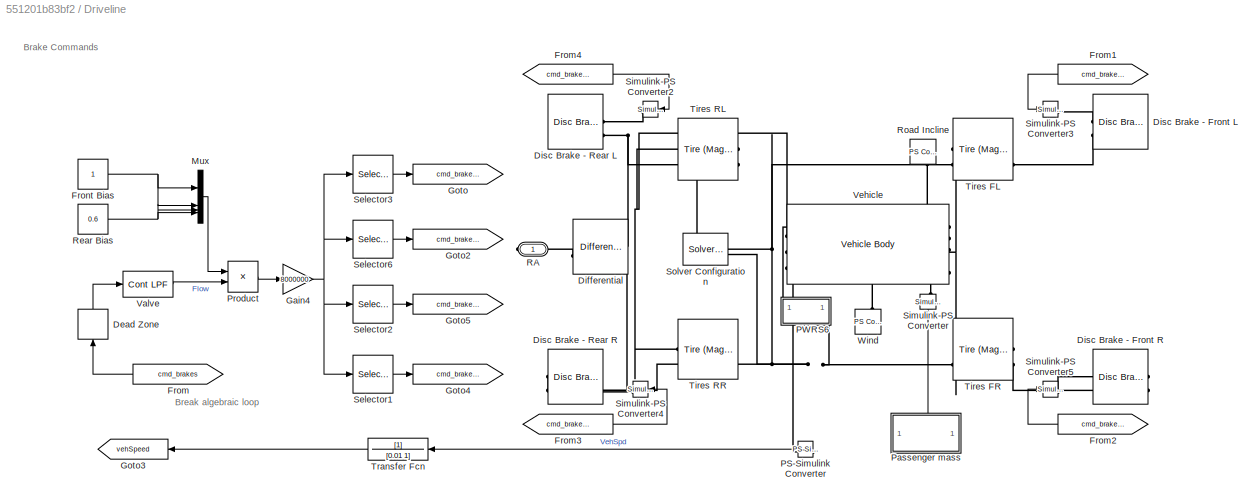
BLOCK [SubSystem] Driveline
  NameLocation = top
BLOCK [DeadZone] Driveline/Dead Zone
  LowerValue = -inf
  NameLocation = right
  UpperValue = 1e-3
  ZeroCross = off
BLOCK [Reference] Driveline/Differential  REF=sdl_lib/Gears/Differential
  SourceBlock = sdl_lib/Gears/Differential
  SourceType = Differential
BLOCK [Reference] Driveline/Disc Brake - Front L  REF=sdl_lib/Brakes & Detents/Rotational/Disc Brake
  SourceBlock = sdl_lib/Brakes & Detents/Rotational/Disc Brake
  SourceType = Disc Brake
BLOCK [Reference] Driveline/Disc Brake - Front R  REF=sdl_lib/Brakes & Detents/Rotational/Disc Brake
  NameLocation = top
  SourceBlock = sdl_lib/Brakes & Detents/Rotational/Disc Brake
  SourceType = Disc Brake
BLOCK [Reference] Driveline/Disc Brake - Rear L  REF=sdl_lib/Brakes & Detents/Rotational/Disc Brake
  SourceBlock = sdl_lib/Brakes & Detents/Rotational/Disc Brake
  SourceType = Disc Brake
BLOCK [Reference] Driveline/Disc Brake - Rear R  REF=sdl_lib/Brakes & Detents/Rotational/Disc Brake
  NameLocation = top
  SourceBlock = sdl_lib/Brakes & Detents/Rotational/Disc Brake
  SourceType = Disc Brake
BLOCK [From] Driveline/From
  GotoTag = cmd_brakes
  TagVisibility = global
BLOCK [From] Driveline/From1
  GotoTag = cmd_brake_FL
BLOCK [From] Driveline/From2
  GotoTag = cmd_brake_FR
BLOCK [From] Driveline/From3
  GotoTag = cmd_brake_RR
BLOCK [From] Driveline/From4
  GotoTag = cmd_brake_RL
BLOCK [Constant] Driveline/Front Bias
  NameLocation = top
  SampleTime = -1
BLOCK [Gain] Driveline/Gain4
  Gain = 8000000
BLOCK [Goto] Driveline/Goto
  GotoTag = cmd_brake_FR
BLOCK [Goto] Driveline/Goto2
  GotoTag = cmd_brake_FL
BLOCK [Goto] Driveline/Goto3
  GotoTag = vehSpeed
  TagVisibility = global
BLOCK [Goto] Driveline/Goto4
  GotoTag = cmd_brake_RR
BLOCK [Goto] Driveline/Goto5
  GotoTag = cmd_brake_RL
BLOCK [Mux] Driveline/Mux
  DisplayOption = bar
BLOCK [Reference] Driveline/PS-Simulink Converter  REF=nesl_utility/PS-Simulink
Converter
  SourceBlock = nesl_utility/PS-Simulink\nConverter
  SourceType = PS-Simulink\nConverter
BLOCK [SubSystem] Driveline/PWRS6
  PortSchema = {"entries":[{"content":{"sides":[{"content":{},"type":"ConnectorPlacement.EquallySpacedRectSide","uuid":"fcd324e3-e0dc-4621-a170-27ec71c6ea26"},{"content":{"side":"RIGHT"},"type":"ConnectorPlacement.EquallySpacedRectSide","uuid":"5064daf2-a26e-4e75-b2a2-eb5e9c9164b2"},{"content":{"connectorIds":["LConn1"],"side":"TOP"},"type":"ConnectorPlacement.EquallySpacedRectSide","uuid":"a278b99a-a5a6-4103-93...<+354ch>
BLOCK [Reference] Driveline/PWRS6/Ideal Force Sensor  REF=fl_lib/Mechanical/Mechanical Sensors/Ideal Force Sensor
  SourceBlock = fl_lib/Mechanical/Mechanical Sensors/Ideal Force Sensor
  SourceType = Ideal Force Sensor
BLOCK [Reference] Driveline/PWRS6/Ideal Translational Motion Sensor  REF=fl_lib/Mechanical/Mechanical Sensors/Ideal Translational
Motion Sensor
  SourceBlock = fl_lib/Mechanical/Mechanical Sensors/Ideal Translational\nMotion Sensor
  SourceType = Ideal Translational\nMotion Sensor
BLOCK [Reference] Driveline/PWRS6/Mechanical Translational Reference  REF=fl_lib/Mechanical/Translational
Elements/Mechanical
Translational
Reference
  NameLocation = top
  SourceBlock = fl_lib/Mechanical/Translational\nElements/Mechanical\nTranslational\nReference
  SourceType = Mechanical\nTranslational\nReference
BLOCK [Reference] Driveline/PWRS6/PS Terminator  REF=fl_lib/Physical Signals/Sinks/PS Terminator
  SourceBlock = fl_lib/Physical Signals/Sinks/PS Terminator
  SourceType = PS Terminator
BLOCK [Reference] Driveline/PWRS6/Power  REF=fl_lib/Physical Signals/Functions/PS Product
  SourceBlock = fl_lib/Physical Signals/Functions/PS Product
  SourceType = PS Product
BLOCK [PMIOPort] Driveline/PWRS6/V
  Side = Left
BLOCK [PMIOPort] Driveline/PWRS6/W
  NameLocation = top
  Port = 2
  Side = Right
BLOCK [SubSystem] Driveline/Passenger mass
  PortSchema = {"entries":[{"content":{"sides":[{"content":{},"type":"ConnectorPlacement.EquallySpacedRectSide","uuid":"5a596c41-77e2-4acf-9482-89fe05f9a774"},{"content":{"side":"RIGHT"},"type":"ConnectorPlacement.EquallySpacedRectSide","uuid":"d52f72ae-d2bf-411c-988f-deade7e80142"},{"content":{"connectorIds":["Out1"],"side":"TOP"},"type":"ConnectorPlacement.EquallySpacedRectSide","uuid":"9f72a4ad-40b2-460c-94c1...<+200ch>
BLOCK [Bias] Driveline/Passenger mass/Bias
  Bias = -1
  SaturateOnIntegerOverflow = off
BLOCK [From] Driveline/Passenger mass/From
  GotoTag = N_occupant
  NameLocation = top
  TagVisibility = global
BLOCK [Gain] Driveline/Passenger mass/Gain1
  Gain = 75
  NameLocation = top
BLOCK [Outport] Driveline/Passenger mass/Out1
BLOCK [Product] Driveline/Product
BLOCK [PMIOPort] Driveline/RA
  Side = Right
BLOCK [Constant] Driveline/Rear Bias
  SampleTime = -1
  Value = 0.6
BLOCK [Reference] Driveline/Road Incline  REF=fl_lib/Physical Signals/Sources/PS Constant
  NameLocation = left
  SourceBlock = fl_lib/Physical Signals/Sources/PS Constant
  SourceType = PS Constant
BLOCK [Selector] Driveline/Selector1
  IndexOptions = Index vector (dialog)
  Indices = [4]
  InputPortWidth = 4
  OutputSizes = 1
BLOCK [Selector] Driveline/Selector2
  IndexOptions = Index vector (dialog)
  Indices = [3]
  InputPortWidth = 4
  OutputSizes = 1
BLOCK [Selector] Driveline/Selector3
  IndexOptions = Index vector (dialog)
  Indices = [2]
  InputPortWidth = 4
  OutputSizes = 1
BLOCK [Selector] Driveline/Selector6
  IndexOptions = Index vector (dialog)
  Indices = [1]
  InputPortWidth = 4
  OutputSizes = 1
BLOCK [Reference] Driveline/Simulink-PS Converter  REF=nesl_utility/Simulink-PS
Converter
  NameLocation = left
  SourceBlock = nesl_utility/Simulink-PS\nConverter
  SourceType = Simulink-PS\nConverter
BLOCK [Reference] Driveline/Simulink-PS Converter2  REF=nesl_utility_internal/Simulink-PS
Converter
  NameLocation = top
  SourceBlock = nesl_utility_internal/Simulink-PS\nConverter
  SourceType = Simulink-PS\nConverter
BLOCK [Reference] Driveline/Simulink-PS Converter3  REF=nesl_utility_internal/Simulink-PS
Converter
  SourceBlock = nesl_utility_internal/Simulink-PS\nConverter
  SourceType = Simulink-PS\nConverter
BLOCK [Reference] Driveline/Simulink-PS Converter4  REF=nesl_utility_internal/Simulink-PS
Converter
  NameLocation = top
  SourceBlock = nesl_utility_internal/Simulink-PS\nConverter
  SourceType = Simulink-PS\nConverter
BLOCK [Reference] Driveline/Simulink-PS Converter5  REF=nesl_utility_internal/Simulink-PS
Converter
  SourceBlock = nesl_utility_internal/Simulink-PS\nConverter
  SourceType = Simulink-PS\nConverter
BLOCK [Reference] Driveline/Solver Configuration  REF=nesl_utility/Solver
Configuration
  SourceBlock = nesl_utility/Solver\nConfiguration
  SourceType = Solver\nConfiguration
BLOCK [Reference] Driveline/Tires FL  REF=sdl_lib/Tires & Vehicles/Tire (Magic Formula)
  NameLocation = top
  SourceBlock = sdl_lib/Tires & Vehicles/Tire (Magic Formula)
  SourceType = Tire (Magic Formula)
BLOCK [Reference] Driveline/Tires FR  REF=sdl_lib/Tires & Vehicles/Tire (Magic Formula)
  SourceBlock = sdl_lib/Tires & Vehicles/Tire (Magic Formula)
  SourceType = Tire (Magic Formula)
BLOCK [Reference] Driveline/Tires RL  REF=sdl_lib/Tires & Vehicles/Tire (Magic Formula)
  NameLocation = top
  SourceBlock = sdl_lib/Tires & Vehicles/Tire (Magic Formula)
  SourceType = Tire (Magic Formula)
BLOCK [Reference] Driveline/Tires RR  REF=sdl_lib/Tires & Vehicles/Tire (Magic Formula)
  SourceBlock = sdl_lib/Tires & Vehicles/Tire (Magic Formula)
  SourceType = Tire (Magic Formula)
BLOCK [TransferFcn] Driveline/Transfer Fcn
  Denominator = [0.01 1]
BLOCK [Reference] Driveline/Valve  REF=autolibutils/Cont LPF
  SourceBlock = autolibutils/Cont LPF
BLOCK [Reference] Driveline/Vehicle  REF=sdl_lib/Tires & Vehicles/Vehicle Body
  NameLocation = right
  SourceBlock = sdl_lib/Tires & Vehicles/Vehicle Body
  SourceType = Vehicle Body
BLOCK [Reference] Driveline/Wind  REF=fl_lib/Physical Signals/Sources/PS Constant
  SourceBlock = fl_lib/Physical Signals/Sources/PS Constant
  SourceType = PS Constant
BLOCK [SubSystem] EV1
  NameLocation = left
  Tag = PublishSubsystem
BLOCK [PMIOPort] EV1/A
  Port = 2
  Side = Right
BLOCK [PMIOPort] EV1/B
  Side = Left
BLOCK [Reference] EV1/Evaporator Expansion Valve  REF=SimscapeFluids_lib/Two-Phase Fluid/Valves & Orifices/Flow Control Valves/Thermostatic
Expansion Valve (2P)
  SourceBlock = SimscapeFluids_lib/Two-Phase Fluid/Valves & Orifices/Flow Control Valves/Thermostatic\nExpansion Valve (2P)
  SourceType = Thermostatic\nExpansion Valve (2P)
BLOCK [SimscapeBus] EV1/Simscape Bus
  HierarchyStrings = bulb;outlet
BLOCK [SubSystem] Evaporator
  NameLocation = right
  Tag = PublishSubsystem
BLOCK [PMIOPort] Evaporator/A
  Port = 3
  Side = Right
BLOCK [PMIOPort] Evaporator/B
  Side = Left
BLOCK [PMIOPort] Evaporator/C
  Port = 2
  Side = Left
BLOCK [PMIOPort] Evaporator/D
  Port = 4
  Side = Right
BLOCK [Reference] Evaporator/Evaporator  REF=SimscapeFluids_lib/Heat Exchangers/Two-Phase Fluid -
Moist Air/Condenser Evaporator
(2P-MA)
  NameLocation = right
  SourceBlock = SimscapeFluids_lib/Heat Exchangers/Two-Phase Fluid -\nMoist Air/Condenser Evaporator\n(2P-MA)
  SourceType = Condenser Evaporator\n(2P-MA)
BLOCK [Reference] Evaporator/Flow Resistance (2P)  REF=fl_lib/Two-Phase Fluid/Elements/Flow Resistance (2P)
  SourceBlock = fl_lib/Two-Phase Fluid/Elements/Flow Resistance (2P)
  SourceType = Flow Resistance (2P)
BLOCK [SubSystem] Evaporator/SR5
BLOCK [PMIOPort] Evaporator/SR5/A
  Port = 2
  Side = Right
BLOCK [Reference] Evaporator/SR5/Absolute Reference (2P)  REF=fl_lib/Two-Phase Fluid/Elements/Absolute Reference
(2P)
  NameLocation = right
  SourceBlock = fl_lib/Two-Phase Fluid/Elements/Absolute Reference\n(2P)
  SourceType = Absolute Reference\n(2P)
BLOCK [PMIOPort] Evaporator/SR5/B
  Side = Left
BLOCK [Goto] Evaporator/SR5/Goto
  GotoTag = Phi_evap_in
  TagVisibility = global
BLOCK [Reference] Evaporator/SR5/Mass & Energy Flow Rate Sensor (2P)  REF=fl_lib/Two-Phase Fluid/Sensors/Flow Rate Sensor
(2P)
  SourceBlock = fl_lib/Two-Phase Fluid/Sensors/Flow Rate Sensor\n(2P)
  SourceType = Flow Rate Sensor\n(2P)
BLOCK [Reference] Evaporator/SR5/PS-Simulink Converter  REF=nesl_utility/PS-Simulink
Converter
  SourceBlock = nesl_utility/PS-Simulink\nConverter
  SourceType = PS-Simulink\nConverter
BLOCK [Reference] Evaporator/SR5/PS-Simulink Converter1  REF=nesl_utility/PS-Simulink
Converter
  SourceBlock = nesl_utility/PS-Simulink\nConverter
  SourceType = PS-Simulink\nConverter
BLOCK [Reference] Evaporator/SR5/Pressure & Internal Energy Sensor (2P)  REF=fl_lib/Two-Phase Fluid/Sensors/Pressure,
Temperature &
Internal Energy
Sensor (2P)
  NameLocation = left
  SourceBlock = fl_lib/Two-Phase Fluid/Sensors/Pressure,\nTemperature &\nInternal Energy\nSensor (2P)
  SourceType = Pressure,\nTemperature &\nInternal Energy\nSensor (2P)
BLOCK [Terminator] Evaporator/SR5/Terminator
BLOCK [Reference] Evaporator/SR5/Thermodynamic Properties Sensor (2P)1  REF=fl_lib/Two-Phase Fluid/Sensors/Thermodynamic
Properties Sensor
(2P)
  NameLocation = right
  SourceBlock = fl_lib/Two-Phase Fluid/Sensors/Thermodynamic\nProperties Sensor\n(2P)
  SourceType = Thermodynamic\nProperties Sensor\n(2P)
BLOCK [SubSystem] Evaporator/SR6
BLOCK [PMIOPort] Evaporator/SR6/A
  Port = 2
  Side = Right
BLOCK [Reference] Evaporator/SR6/Absolute Reference (2P)  REF=fl_lib/Two-Phase Fluid/Elements/Absolute Reference
(2P)
  NameLocation = right
  SourceBlock = fl_lib/Two-Phase Fluid/Elements/Absolute Reference\n(2P)
  SourceType = Absolute Reference\n(2P)
BLOCK [PMIOPort] Evaporator/SR6/B
  Side = Left
BLOCK [Goto] Evaporator/SR6/Goto
  GotoTag = Phi_evap_out
  TagVisibility = global
BLOCK [Goto] Evaporator/SR6/Goto1
  GotoTag = p_evap
  TagVisibility = global
BLOCK [Reference] Evaporator/SR6/Mass & Energy Flow Rate Sensor (2P)  REF=fl_lib/Two-Phase Fluid/Sensors/Flow Rate Sensor
(2P)
  NameLocation = top
  SourceBlock = fl_lib/Two-Phase Fluid/Sensors/Flow Rate Sensor\n(2P)
  SourceType = Flow Rate Sensor\n(2P)
BLOCK [Reference] Evaporator/SR6/PS-Simulink Converter  REF=nesl_utility/PS-Simulink
Converter
  SourceBlock = nesl_utility/PS-Simulink\nConverter
  SourceType = PS-Simulink\nConverter
BLOCK [Reference] Evaporator/SR6/PS-Simulink Converter1  REF=nesl_utility/PS-Simulink
Converter
  SourceBlock = nesl_utility/PS-Simulink\nConverter
  SourceType = PS-Simulink\nConverter
BLOCK [Reference] Evaporator/SR6/PS-Simulink Converter2  REF=nesl_utility/PS-Simulink
Converter
  SourceBlock = nesl_utility/PS-Simulink\nConverter
  SourceType = PS-Simulink\nConverter
BLOCK [Reference] Evaporator/SR6/Pressure & Internal Energy Sensor (2P)  REF=fl_lib/Two-Phase Fluid/Sensors/Pressure,
Temperature &
Internal Energy
Sensor (2P)
  NameLocation = right
  SourceBlock = fl_lib/Two-Phase Fluid/Sensors/Pressure,\nTemperature &\nInternal Energy\nSensor (2P)
  SourceType = Pressure,\nTemperature &\nInternal Energy\nSensor (2P)
BLOCK [Terminator] Evaporator/SR6/Terminator
BLOCK [Reference] Evaporator/SR6/Thermodynamic Properties Sensor (2P)1  REF=fl_lib/Two-Phase Fluid/Sensors/Thermodynamic
Properties Sensor
(2P)
  NameLocation = right
  SourceBlock = fl_lib/Two-Phase Fluid/Sensors/Thermodynamic\nProperties Sensor\n(2P)
  SourceType = Thermodynamic\nProperties Sensor\n(2P)
BLOCK [SimscapeBus] Evaporator/Simscape Bus
  HierarchyStrings = bulb;outlet
BLOCK [SubSystem] Heater
  PortSchema = {"entries":[{"content":{"sides":[{"content":{"connectorIds":["LConn1"]},"type":"ConnectorPlacement.EquallySpacedRectSide","uuid":"242981e2-c710-4315-ad4c-e5e316a25c36"},{"content":{"side":"RIGHT"},"type":"ConnectorPlacement.EquallySpacedRectSide","uuid":"85751834-55aa-4759-94a3-05602d1676d8"},{"content":{"connectorIds":["LConn2"],"side":"TOP"},"type":"ConnectorPlacement.EquallySpacedRectSide","uui...<+379ch>
  Tag = PublishSubsystem
BLOCK [PMIOPort] Heater/A
  NameLocation = right
  Port = 2
  Side = Left
BLOCK [PMIOPort] Heater/B
  NameLocation = right
  Side = Left
BLOCK [Reference] Heater/Battery Heater  REF=fl_lib/Thermal/Thermal Elements/Thermal Mass
  NameLocation = right
  SourceBlock = fl_lib/Thermal/Thermal Elements/Thermal Mass
  SourceType = Thermal Mass
BLOCK [Reference] Heater/Controlled Heat Flow Rate Source  REF=fl_lib/Thermal/Thermal Sources/Controlled Heat Flow
Rate Source
  NameLocation = left
  SourceBlock = fl_lib/Thermal/Thermal Sources/Controlled Heat Flow\nRate Source
  SourceType = Controlled Heat Flow\nRate Source
BLOCK [Reference] Heater/Convective Heat Transfer  REF=fl_lib/Thermal/Thermal Elements/Convective Heat
Transfer
  SourceBlock = fl_lib/Thermal/Thermal Elements/Convective Heat\nTransfer
  SourceType = Convective Heat\nTransfer
BLOCK [SubSystem] Heater/Current calculator
  PortSchema = {"entries":[{"content":{"sides":[{"content":{"connectorIds":["LConn1"]},"type":"ConnectorPlacement.EquallySpacedRectSide","uuid":"170b43eb-52b0-4cc5-ac2d-ab73c42b55a5"},{"content":{"side":"RIGHT"},"type":"ConnectorPlacement.EquallySpacedRectSide","uuid":"0f0abf3e-a1f4-4f38-850a-d970da92bf07"},{"content":{"connectorIds":["LConn2"],"side":"TOP"},"type":"ConnectorPlacement.EquallySpacedRectSide","uui...<+227ch>
BLOCK [PMIOPort] Heater/Current calculator/Conn1
  Port = 2
  Side = Left
BLOCK [PMIOPort] Heater/Current calculator/Conn2
  Side = Left
BLOCK [Reference] Heater/Current calculator/Controlled Current Source  REF=fl_lib/Electrical/Electrical Sources/Controlled Current
Source
  SourceBlock = fl_lib/Electrical/Electrical Sources/Controlled Current\nSource
  SourceType = Controlled Current\nSource
BLOCK [Reference] Heater/Current calculator/Electrical Reference  REF=fl_lib/Electrical/Electrical Elements/Electrical Reference
  NameLocation = right
  SourceBlock = fl_lib/Electrical/Electrical Elements/Electrical Reference
  SourceType = Electrical Reference
BLOCK [Reference] Heater/Current calculator/Electrical Reference1  REF=fl_lib/Electrical/Electrical Elements/Electrical Reference
  NameLocation = right
  SourceBlock = fl_lib/Electrical/Electrical Elements/Electrical Reference
  SourceType = Electrical Reference
BLOCK [Reference] Heater/Current calculator/PS Divide  REF=fl_lib/Physical Signals/Functions/PS Divide
  SourceBlock = fl_lib/Physical Signals/Functions/PS Divide
  SourceType = PS Divide
BLOCK [Reference] Heater/Current calculator/Voltage Sensor  REF=fl_lib/Electrical/Electrical Sensors/Voltage Sensor
  NameLocation = left
  SourceBlock = fl_lib/Electrical/Electrical Sensors/Voltage Sensor
  SourceType = Voltage Sensor
BLOCK [Reference] Heater/Flow Resistance (TL)  REF=fl_lib/Thermal Liquid/Elements/Flow Resistance (TL)
  NameLocation = right
  SourceBlock = fl_lib/Thermal Liquid/Elements/Flow Resistance (TL)
  SourceType = Flow Resistance (TL)
BLOCK [Reference] Heater/Flow Resistance (TL)1  REF=fl_lib/Thermal Liquid/Elements/Flow Resistance (TL)
  NameLocation = right
  SourceBlock = fl_lib/Thermal Liquid/Elements/Flow Resistance (TL)
  SourceType = Flow Resistance (TL)
BLOCK [From] Heater/From
  GotoTag = cmd_heater
  TagVisibility = global
BLOCK [PMIOPort] Heater/HV
  Port = 3
  Side = Right
BLOCK [Reference] Heater/Heater Coolant Volume  REF=fl_lib/Thermal Liquid/Elements/Constant Volume
Chamber (TL)
  NameLocation = right
  SourceBlock = fl_lib/Thermal Liquid/Elements/Constant Volume\nChamber (TL)
  SourceType = Constant Volume\nChamber (TL)
BLOCK [Gain] Heater/Max Power [W]
  Gain = heater_max_power
BLOCK [SubSystem] Heater/SC1
  NameLocation = right
BLOCK [PMIOPort] Heater/SC1/A
  Port = 2
  Side = Right
BLOCK [Reference] Heater/SC1/Absolute Reference (TL)  REF=fl_lib/Thermal Liquid/Elements/Absolute Reference
(TL)
  NameLocation = right
  SourceBlock = fl_lib/Thermal Liquid/Elements/Absolute Reference\n(TL)
  SourceType = Absolute Reference\n(TL)
BLOCK [PMIOPort] Heater/SC1/B
  Side = Left
BLOCK [Reference] Heater/SC1/PS-Simulink Converter1  REF=nesl_utility/PS-Simulink
Converter
  SourceBlock = nesl_utility/PS-Simulink\nConverter
  SourceType = PS-Simulink\nConverter
BLOCK [Reference] Heater/SC1/Pressure & Temperature Sensor (TL)  REF=fl_lib/Thermal Liquid/Sensors/Pressure &
Temperature Sensor
(TL)
  NameLocation = right
  SourceBlock = fl_lib/Thermal Liquid/Sensors/Pressure &\nTemperature Sensor\n(TL)
  SourceType = Pressure &\nTemperature Sensor\n(TL)
BLOCK [Terminator] Heater/SC1/Terminator
BLOCK [SubSystem] Heater/SC7
  NameLocation = right
BLOCK [PMIOPort] Heater/SC7/A
  Port = 2
  Side = Right
BLOCK [Reference] Heater/SC7/Absolute Reference (TL)  REF=fl_lib/Thermal Liquid/Elements/Absolute Reference
(TL)
  NameLocation = right
  SourceBlock = fl_lib/Thermal Liquid/Elements/Absolute Reference\n(TL)
  SourceType = Absolute Reference\n(TL)
BLOCK [PMIOPort] Heater/SC7/B
  Side = Left
BLOCK [Reference] Heater/SC7/PS-Simulink Converter1  REF=nesl_utility/PS-Simulink
Converter
  SourceBlock = nesl_utility/PS-Simulink\nConverter
  SourceType = PS-Simulink\nConverter
BLOCK [Reference] Heater/SC7/Pressure & Temperature Sensor (TL)  REF=fl_lib/Thermal Liquid/Sensors/Pressure &
Temperature Sensor
(TL)
  NameLocation = right
  SourceBlock = fl_lib/Thermal Liquid/Sensors/Pressure &\nTemperature Sensor\n(TL)
  SourceType = Pressure &\nTemperature Sensor\n(TL)
BLOCK [Terminator] Heater/SC7/Terminator
BLOCK [Reference] Heater/Simulink-PS Converter  REF=nesl_utility/Simulink-PS
Converter
  SourceBlock = nesl_utility/Simulink-PS\nConverter
  SourceType = Simulink-PS\nConverter
BLOCK [Reference] Heater/Thermal Reference  REF=fl_lib/Thermal/Thermal Elements/Thermal Reference
  NameLocation = right
  SourceBlock = fl_lib/Thermal/Thermal Elements/Thermal Reference
  SourceType = Thermal Reference
BLOCK [TransferFcn] Heater/Transfer Fcn
  Denominator = [1 1]
BLOCK [SubSystem] Motor
  Tag = PublishSubsystem
BLOCK [SubSystem] Motor Pump
  Tag = PublishSubsystem
BLOCK [PMIOPort] Motor Pump/A
  NameLocation = right
  Port = 2
  Side = Left
BLOCK [PMIOPort] Motor Pump/B
  NameLocation = right
  Port = 3
  Side = Right
BLOCK [Reference] Motor Pump/Controlled Current Source  REF=fl_lib/Electrical/Electrical Sources/Controlled Current
Source
  SourceBlock = fl_lib/Electrical/Electrical Sources/Controlled Current\nSource
  SourceType = Controlled Current\nSource
BLOCK [Reference] Motor Pump/Electrical Reference  REF=fl_lib/Electrical/Electrical Elements/Electrical Reference
  NameLocation = right
  SourceBlock = fl_lib/Electrical/Electrical Elements/Electrical Reference
  SourceType = Electrical Reference
BLOCK [Reference] Motor Pump/Electrical Reference1  REF=fl_lib/Electrical/Electrical Elements/Electrical Reference
  NameLocation = right
  SourceBlock = fl_lib/Electrical/Electrical Elements/Electrical Reference
  SourceType = Electrical Reference
BLOCK [From] Motor Pump/From
  GotoTag = cmd_motor_pump
  TagVisibility = global
BLOCK [Reference] Motor Pump/Ideal Angular Velocity Source  REF=fl_lib/Mechanical/Mechanical Sources/Ideal Angular
Velocity Source
  SourceBlock = fl_lib/Mechanical/Mechanical Sources/Ideal Angular\nVelocity Source
  SourceType = Ideal Angular\nVelocity Source
BLOCK [PMIOPort] Motor Pump/LV
  Side = Left
BLOCK [Gain] Motor Pump/Max Speed [rpm]
  Gain = pump_speed_max
BLOCK [Reference] Motor Pump/Mechanical Rotational Reference  REF=fl_lib/Mechanical/Rotational Elements/Mechanical
Rotational Reference
  NameLocation = right
  SourceBlock = fl_lib/Mechanical/Rotational Elements/Mechanical\nRotational Reference
  SourceType = Mechanical\nRotational Reference
BLOCK [Reference] Motor Pump/Motor Pump  REF=SimscapeFluids_lib/Thermal Liquid/Pumps & Motors/Centrifugal Pump
(TL)
  SourceBlock = SimscapeFluids_lib/Thermal Liquid/Pumps & Motors/Centrifugal Pump\n(TL)
  SourceType = Centrifugal Pump\n(TL)
BLOCK [SubSystem] Motor Pump/Power sensor
BLOCK [PMIOPort] Motor Pump/Power sensor/A
  Side = Left
BLOCK [PMIOPort] Motor Pump/Power sensor/B
  Port = 3
  Side = Right
BLOCK [Reference] Motor Pump/Power sensor/MRR3  REF=fl_lib/Mechanical/Rotational Elements/Mechanical
Rotational Reference
  NameLocation = top
  SourceBlock = fl_lib/Mechanical/Rotational Elements/Mechanical\nRotational Reference
  SourceType = Mechanical\nRotational Reference
BLOCK [PMIOPort] Motor Pump/Power sensor/P
  NameLocation = top
  Port = 2
  Side = Left
BLOCK [Reference] Motor Pump/Power sensor/Pump power  REF=fl_lib/Physical Signals/Functions/PS Product
  SourceBlock = fl_lib/Physical Signals/Functions/PS Product
  SourceType = PS Product
BLOCK [Reference] Motor Pump/Power sensor/Rotational Motion Sensor  REF=fl_lib/Mechanical/Mechanical Sensors/Ideal Rotational
Motion Sensor
  SourceBlock = fl_lib/Mechanical/Mechanical Sensors/Ideal Rotational\nMotion Sensor
  SourceType = Ideal Rotational\nMotion Sensor
BLOCK [Reference] Motor Pump/Power sensor/Torque Sensor  REF=fl_lib/Mechanical/Mechanical Sensors/Ideal Torque Sensor
  SourceBlock = fl_lib/Mechanical/Mechanical Sensors/Ideal Torque Sensor
  SourceType = Ideal Torque Sensor
BLOCK [Reference] Motor Pump/Pump power  REF=fl_lib/Physical Signals/Functions/PS Divide
  SourceBlock = fl_lib/Physical Signals/Functions/PS Divide
  SourceType = PS Divide
BLOCK [Reference] Motor Pump/Simulink-PS Converter  REF=nesl_utility/Simulink-PS
Converter
  SourceBlock = nesl_utility/Simulink-PS\nConverter
  SourceType = Simulink-PS\nConverter
BLOCK [TransferFcn] Motor Pump/Transfer Fcn
  Denominator = [5 1]
BLOCK [Reference] Motor Pump/Voltage Sensor  REF=fl_lib/Electrical/Electrical Sensors/Voltage Sensor
  NameLocation = left
  SourceBlock = fl_lib/Electrical/Electrical Sensors/Voltage Sensor
  SourceType = Voltage Sensor
BLOCK [PMIOPort] Motor/A
  Port = 2
  Side = Left
BLOCK [PMIOPort] Motor/B
  Port = 4
  Side = Right
BLOCK [Reference] Motor/Convective Heat Transfer  REF=fl_lib/Thermal/Thermal Elements/Convective Heat
Transfer
  SourceBlock = fl_lib/Thermal/Thermal Elements/Convective Heat\nTransfer
  SourceType = Convective Heat\nTransfer
BLOCK [Reference] Motor/Coolant Jacket  REF=SimscapeFluids_lib/Thermal Liquid/Pipes & Fittings/Pipe (TL)
  SourceBlock = SimscapeFluids_lib/Thermal Liquid/Pipes & Fittings/Pipe (TL)
  SourceType = Pipe (TL)
BLOCK [Reference] Motor/Electrical Reference  REF=fl_lib/Electrical/Electrical Elements/Electrical Reference
  NameLocation = right
  SourceBlock = fl_lib/Electrical/Electrical Elements/Electrical Reference
  SourceType = Electrical Reference
BLOCK [Reference] Motor/Environment Temperature  REF=fl_lib/Thermal/Thermal Sources/Controlled
Temperature Source
  NameLocation = top
  SourceBlock = fl_lib/Thermal/Thermal Sources/Controlled\nTemperature Source
  SourceType = Controlled\nTemperature Source
BLOCK [From] Motor/From1
  GotoTag = cmd_trq
  TagVisibility = global
BLOCK [From] Motor/From2
  GotoTag = T_env
  TagVisibility = global
BLOCK [Reference] Motor/Gearbox  REF=sdl_lib/Gears/Simple Gear
  SourceBlock = sdl_lib/Gears/Simple Gear
  SourceType = Simple Gear
BLOCK [Goto] Motor/Goto
  GotoTag = T_motor
  TagVisibility = global
BLOCK [Goto] Motor/Goto1
  GotoTag = EMTrq
  TagVisibility = global
BLOCK [Goto] Motor/Goto2
  GotoTag = EM_speed
  TagVisibility = global
BLOCK [PMIOPort] Motor/HV
  Side = Left
BLOCK [Reference] Motor/Heat Conduction Housing In  REF=fl_lib/Thermal/Thermal Elements/Conductive Heat
Transfer
  NameLocation = right
  SourceBlock = fl_lib/Thermal/Thermal Elements/Conductive Heat\nTransfer
  SourceType = Conductive Heat\nTransfer
BLOCK [Reference] Motor/Heat Conduction Housing Out  REF=fl_lib/Thermal/Thermal Elements/Conductive Heat
Transfer
  NameLocation = right
  SourceBlock = fl_lib/Thermal/Thermal Elements/Conductive Heat\nTransfer
  SourceType = Conductive Heat\nTransfer
BLOCK [Reference] Motor/Housing  REF=fl_lib/Thermal/Thermal Elements/Thermal Mass
  NameLocation = right
  SourceBlock = fl_lib/Thermal/Thermal Elements/Thermal Mass
  SourceType = Thermal Mass
BLOCK [Reference] Motor/Ideal Torque Sensor  REF=fl_lib/Mechanical/Mechanical Sensors/Ideal Torque Sensor
  SourceBlock = fl_lib/Mechanical/Mechanical Sensors/Ideal Torque Sensor
  SourceType = Ideal Torque Sensor
BLOCK [Reference] Motor/Mechanical Rotational Reference  REF=fl_lib/Mechanical/Rotational Elements/Mechanical
Rotational Reference
  NameLocation = right
  SourceBlock = fl_lib/Mechanical/Rotational Elements/Mechanical\nRotational Reference
  SourceType = Mechanical\nRotational Reference
BLOCK [Reference] Motor/Motor  REF=ee_lib/Electromechanical/Motor & Drive
(System Level)
  NameLocation = right
  SourceBlock = ee_lib/Electromechanical/Motor & Drive\n(System Level)
  SourceType = Motor & Drive\n(System Level)
BLOCK [Reference] Motor/PS-Simulink Converter  REF=nesl_utility/PS-Simulink
Converter
  SourceBlock = nesl_utility/PS-Simulink\nConverter
  SourceType = PS-Simulink\nConverter
BLOCK [Reference] Motor/PS-Simulink Converter1  REF=nesl_utility/PS-Simulink
Converter
  NameLocation = left
  SourceBlock = nesl_utility/PS-Simulink\nConverter
  SourceType = PS-Simulink\nConverter
BLOCK [Reference] Motor/PS-Simulink Converter2  REF=nesl_utility/PS-Simulink
Converter
  SourceBlock = nesl_utility/PS-Simulink\nConverter
  SourceType = PS-Simulink\nConverter
BLOCK [SubSystem] Motor/PWRS3
BLOCK [PMIOPort] Motor/PWRS3/EM
  NameLocation = top
  Port = 2
  Side = Right
BLOCK [Reference] Motor/PWRS3/Electrical Reference  REF=fl_lib/Electrical/Electrical Elements/Electrical Reference
  NameLocation = right
  SourceBlock = fl_lib/Electrical/Electrical Elements/Electrical Reference
  SourceType = Electrical Reference
BLOCK [PMIOPort] Motor/PWRS3/HV
  Side = Left
BLOCK [Reference] Motor/PWRS3/PS Terminator  REF=fl_lib/Physical Signals/Sinks/PS Terminator
  NameLocation = right
  SourceBlock = fl_lib/Physical Signals/Sinks/PS Terminator
  SourceType = PS Terminator
BLOCK [Reference] Motor/PWRS3/Power Sensor  REF=ee_lib/Sensors &
Transducers/Power Sensor
  NameLocation = right
  SourceBlock = ee_lib/Sensors &\nTransducers/Power Sensor
  SourceType = Power Sensor
BLOCK [SubSystem] Motor/PWRS4
BLOCK [PMIOPort] Motor/PWRS4/B
  Port = 2
  Side = Right
BLOCK [PMIOPort] Motor/PWRS4/C
  Side = Left
BLOCK [Reference] Motor/PWRS4/Mechanical Rotational Reference  REF=fl_lib/Mechanical/Rotational Elements/Mechanical
Rotational Reference
  NameLocation = right
  SourceBlock = fl_lib/Mechanical/Rotational Elements/Mechanical\nRotational Reference
  SourceType = Mechanical\nRotational Reference
BLOCK [Reference] Motor/PWRS4/PS Terminator  REF=fl_lib/Physical Signals/Sinks/PS Terminator
  NameLocation = right
  SourceBlock = fl_lib/Physical Signals/Sinks/PS Terminator
  SourceType = PS Terminator
BLOCK [Reference] Motor/PWRS4/Power  REF=sdl_lib/Sensors/Rotational Power
Sensor
  NameLocation = right
  SourceBlock = sdl_lib/Sensors/Rotational Power\nSensor
  SourceType = Rotational Power\nSensor
BLOCK [SubSystem] Motor/PWRS5
BLOCK [PMIOPort] Motor/PWRS5/F
  Side = Left
BLOCK [Reference] Motor/PWRS5/Mechanical Rotational Reference  REF=fl_lib/Mechanical/Rotational Elements/Mechanical
Rotational Reference
  NameLocation = right
  SourceBlock = fl_lib/Mechanical/Rotational Elements/Mechanical\nRotational Reference
  SourceType = Mechanical\nRotational Reference
BLOCK [Reference] Motor/PWRS5/PS Terminator  REF=fl_lib/Physical Signals/Sinks/PS Terminator
  NameLocation = right
  SourceBlock = fl_lib/Physical Signals/Sinks/PS Terminator
  SourceType = PS Terminator
BLOCK [Reference] Motor/PWRS5/Power  REF=sdl_lib/Sensors/Rotational Power
Sensor
  NameLocation = right
  SourceBlock = sdl_lib/Sensors/Rotational Power\nSensor
  SourceType = Rotational Power\nSensor
BLOCK [PMIOPort] Motor/PWRS5/RA
  Port = 2
  Side = Right
BLOCK [PMIOPort] Motor/RA
  Port = 3
  Side = Right
BLOCK [SubSystem] Motor/SC5
BLOCK [PMIOPort] Motor/SC5/A
  Side = Left
BLOCK [Reference] Motor/SC5/Absolute Reference (TL)  REF=fl_lib/Thermal Liquid/Elements/Absolute Reference
(TL)
  NameLocation = right
  SourceBlock = fl_lib/Thermal Liquid/Elements/Absolute Reference\n(TL)
  SourceType = Absolute Reference\n(TL)
BLOCK [PMIOPort] Motor/SC5/B
  Port = 2
  Side = Right
BLOCK [Goto] Motor/SC5/Goto
  GotoTag = Phi_motor_in
  TagVisibility = global
BLOCK [Reference] Motor/SC5/Mass & Energy Flow Rate Sensor (TL)  REF=fl_lib/Thermal Liquid/Sensors/Flow Rate Sensor
(TL)
  SourceBlock = fl_lib/Thermal Liquid/Sensors/Flow Rate Sensor\n(TL)
  SourceType = Flow Rate Sensor\n(TL)
BLOCK [Reference] Motor/SC5/PS-Simulink Converter  REF=nesl_utility/PS-Simulink
Converter
  SourceBlock = nesl_utility/PS-Simulink\nConverter
  SourceType = PS-Simulink\nConverter
BLOCK [Reference] Motor/SC5/PS-Simulink Converter1  REF=nesl_utility/PS-Simulink
Converter
  SourceBlock = nesl_utility/PS-Simulink\nConverter
  SourceType = PS-Simulink\nConverter
BLOCK [Reference] Motor/SC5/Pressure & Temperature Sensor (TL)  REF=fl_lib/Thermal Liquid/Sensors/Pressure &
Temperature Sensor
(TL)
  NameLocation = right
  SourceBlock = fl_lib/Thermal Liquid/Sensors/Pressure &\nTemperature Sensor\n(TL)
  SourceType = Pressure &\nTemperature Sensor\n(TL)
BLOCK [Terminator] Motor/SC5/Terminator
BLOCK [SubSystem] Motor/SC6
BLOCK [PMIOPort] Motor/SC6/A
  Side = Left
BLOCK [Reference] Motor/SC6/Absolute Reference (TL)  REF=fl_lib/Thermal Liquid/Elements/Absolute Reference
(TL)
  NameLocation = right
  SourceBlock = fl_lib/Thermal Liquid/Elements/Absolute Reference\n(TL)
  SourceType = Absolute Reference\n(TL)
BLOCK [PMIOPort] Motor/SC6/B
  Port = 2
  Side = Right
BLOCK [Goto] Motor/SC6/Goto
  GotoTag = Phi_motor_out
  TagVisibility = global
BLOCK [Goto] Motor/SC6/Goto1
  GotoTag = T_coolant_motor_out
  TagVisibility = global
BLOCK [Reference] Motor/SC6/Mass & Energy Flow Rate Sensor (TL)  REF=fl_lib/Thermal Liquid/Sensors/Flow Rate Sensor
(TL)
  NameLocation = top
  SourceBlock = fl_lib/Thermal Liquid/Sensors/Flow Rate Sensor\n(TL)
  SourceType = Flow Rate Sensor\n(TL)
BLOCK [Reference] Motor/SC6/PS-Simulink Converter  REF=nesl_utility/PS-Simulink
Converter
  SourceBlock = nesl_utility/PS-Simulink\nConverter
  SourceType = PS-Simulink\nConverter
BLOCK [Reference] Motor/SC6/PS-Simulink Converter1  REF=nesl_utility/PS-Simulink
Converter
  SourceBlock = nesl_utility/PS-Simulink\nConverter
  SourceType = PS-Simulink\nConverter
BLOCK [Reference] Motor/SC6/PS-Simulink Converter2  REF=nesl_utility/PS-Simulink
Converter
  SourceBlock = nesl_utility/PS-Simulink\nConverter
  SourceType = PS-Simulink\nConverter
BLOCK [Reference] Motor/SC6/Pressure & Temperature Sensor (TL)  REF=fl_lib/Thermal Liquid/Sensors/Pressure &
Temperature Sensor
(TL)
  NameLocation = right
  SourceBlock = fl_lib/Thermal Liquid/Sensors/Pressure &\nTemperature Sensor\n(TL)
  SourceType = Pressure &\nTemperature Sensor\n(TL)
BLOCK [Terminator] Motor/SC6/Terminator
BLOCK [Reference] Motor/Simulink-PS Converter1  REF=nesl_utility/Simulink-PS
Converter
  SourceBlock = nesl_utility/Simulink-PS\nConverter
  SourceType = Simulink-PS\nConverter
BLOCK [Reference] Motor/Simulink-PS Converter2  REF=nesl_utility/Simulink-PS
Converter
  SourceBlock = nesl_utility/Simulink-PS\nConverter
  SourceType = Simulink-PS\nConverter
BLOCK [Reference] Motor/Temperature Sensor  REF=fl_lib/Thermal/Thermal Sensors/Temperature Sensor
  SourceBlock = fl_lib/Thermal/Thermal Sensors/Temperature Sensor
  SourceType = Temperature Sensor
BLOCK [Reference] Motor/Thermal Reference1  REF=fl_lib/Thermal/Thermal Elements/Thermal Reference
  SourceBlock = fl_lib/Thermal/Thermal Elements/Thermal Reference
  SourceType = Thermal Reference
BLOCK [TransferFcn] Motor/Transfer Fcn
  Denominator = [0.01 1]
BLOCK [SubSystem] PTC
  NameLocation = right
  Tag = PublishSubsystem
BLOCK [PMIOPort] PTC/A
  NameLocation = right
  Port = 2
  Side = Left
BLOCK [Reference] PTC/Absolute Reference (MA)  REF=fl_lib/Moist Air/Elements/Absolute Reference
(MA)
  NameLocation = right
  SourceBlock = fl_lib/Moist Air/Elements/Absolute Reference\n(MA)
  SourceType = Absolute Reference\n(MA)
BLOCK [PMIOPort] PTC/B
  NameLocation = right
  Port = 3
  Side = Right
BLOCK [Reference] PTC/Controlled Heat Flow Rate Source  REF=fl_lib/Thermal/Thermal Sources/Controlled Heat Flow
Rate Source
  NameLocation = left
  SourceBlock = fl_lib/Thermal/Thermal Sources/Controlled Heat Flow\nRate Source
  SourceType = Controlled Heat Flow\nRate Source
BLOCK [Reference] PTC/Convective Heat Transfer  REF=fl_lib/Thermal/Thermal Elements/Convective Heat
Transfer
  SourceBlock = fl_lib/Thermal/Thermal Elements/Convective Heat\nTransfer
  SourceType = Convective Heat\nTransfer
BLOCK [SubSystem] PTC/Current calculator
  PortSchema = {"entries":[{"content":{"sides":[{"content":{"connectorIds":["LConn1"]},"type":"ConnectorPlacement.EquallySpacedRectSide","uuid":"170b43eb-52b0-4cc5-ac2d-ab73c42b55a5"},{"content":{"side":"RIGHT"},"type":"ConnectorPlacement.EquallySpacedRectSide","uuid":"0f0abf3e-a1f4-4f38-850a-d970da92bf07"},{"content":{"connectorIds":["LConn2"],"side":"TOP"},"type":"ConnectorPlacement.EquallySpacedRectSide","uui...<+227ch>
BLOCK [PMIOPort] PTC/Current calculator/Conn1
  Port = 2
  Side = Left
BLOCK [PMIOPort] PTC/Current calculator/Conn2
  Side = Left
BLOCK [Reference] PTC/Current calculator/Controlled Current Source  REF=fl_lib/Electrical/Electrical Sources/Controlled Current
Source
  SourceBlock = fl_lib/Electrical/Electrical Sources/Controlled Current\nSource
  SourceType = Controlled Current\nSource
BLOCK [Reference] PTC/Current calculator/Electrical Reference  REF=fl_lib/Electrical/Electrical Elements/Electrical Reference
  NameLocation = right
  SourceBlock = fl_lib/Electrical/Electrical Elements/Electrical Reference
  SourceType = Electrical Reference
BLOCK [Reference] PTC/Current calculator/Electrical Reference1  REF=fl_lib/Electrical/Electrical Elements/Electrical Reference
  NameLocation = right
  SourceBlock = fl_lib/Electrical/Electrical Elements/Electrical Reference
  SourceType = Electrical Reference
BLOCK [Reference] PTC/Current calculator/PS Divide  REF=fl_lib/Physical Signals/Functions/PS Divide
  SourceBlock = fl_lib/Physical Signals/Functions/PS Divide
  SourceType = PS Divide
BLOCK [Reference] PTC/Current calculator/Voltage Sensor  REF=fl_lib/Electrical/Electrical Sensors/Voltage Sensor
  NameLocation = left
  SourceBlock = fl_lib/Electrical/Electrical Sensors/Voltage Sensor
  SourceType = Voltage Sensor
BLOCK [Reference] PTC/Flow Resistance (MA)  REF=fl_lib/Moist Air/Elements/Flow Resistance (MA)
  NameLocation = right
  SourceBlock = fl_lib/Moist Air/Elements/Flow Resistance (MA)
  SourceType = Flow Resistance (MA)
BLOCK [Reference] PTC/Flow Resistance (MA)1  REF=fl_lib/Moist Air/Elements/Flow Resistance (MA)
  NameLocation = right
  SourceBlock = fl_lib/Moist Air/Elements/Flow Resistance (MA)
  SourceType = Flow Resistance (MA)
BLOCK [From] PTC/From
  GotoTag = cmd_ptc
  TagVisibility = global
BLOCK [Goto] PTC/Goto
  GotoTag = T_ptc
  TagVisibility = global
BLOCK [PMIOPort] PTC/HV
  Side = Left
BLOCK [Gain] PTC/Max Power [W]
  Gain = ptc_max_power
BLOCK [Reference] PTC/PS-Simulink Converter  REF=nesl_utility/PS-Simulink
Converter
  SourceBlock = nesl_utility/PS-Simulink\nConverter
  SourceType = PS-Simulink\nConverter
BLOCK [Reference] PTC/PTC Air Volume  REF=fl_lib/Moist Air/Elements/Constant Volume
Chamber (MA)
  SourceBlock = fl_lib/Moist Air/Elements/Constant Volume\nChamber (MA)
  SourceType = Constant Volume\nChamber (MA)
BLOCK [Reference] PTC/PTC Heater  REF=fl_lib/Thermal/Thermal Elements/Thermal Mass
  NameLocation = right
  SourceBlock = fl_lib/Thermal/Thermal Elements/Thermal Mass
  SourceType = Thermal Mass
BLOCK [Reference] PTC/Pressure & Temperature Sensor (MA)  REF=fl_lib/Moist Air/Sensors/Pressure &
Temperature Sensor
(MA)
  NameLocation = right
  SourceBlock = fl_lib/Moist Air/Sensors/Pressure &\nTemperature Sensor\n(MA)
  SourceType = Pressure &\nTemperature Sensor\n(MA)
BLOCK [Reference] PTC/Simulink-PS Converter  REF=nesl_utility/Simulink-PS
Converter
  SourceBlock = nesl_utility/Simulink-PS\nConverter
  SourceType = Simulink-PS\nConverter
BLOCK [Reference] PTC/Thermal Reference  REF=fl_lib/Thermal/Thermal Elements/Thermal Reference
  NameLocation = right
  SourceBlock = fl_lib/Thermal/Thermal Elements/Thermal Reference
  SourceType = Thermal Reference
BLOCK [TransferFcn] PTC/Transfer Fcn
  Denominator = [1 1]
BLOCK [SubSystem] Parallel-Serial Mode Valve
  PortSchema = {"entries":[{"content":{"sides":[{"content":{"connectorIds":["LConn1"]},"type":"ConnectorPlacement.EquallySpacedRectSide","uuid":"769cdae0-dc58-4cfd-92d9-ac32508c6b10"},{"content":{"connectorIds":["RConn1"],"side":"RIGHT"},"type":"ConnectorPlacement.EquallySpacedRectSide","uuid":"df63fb06-baf4-4717-a479-9d23ab47f4aa"},{"content":{"connectorIds":["LConn2"],"side":"TOP"},"type":"ConnectorPlacement.E...<+549ch>
  Tag = PublishSubsystem
BLOCK [Reference] Parallel-Serial Mode Valve/4-Way Valve  REF=SimscapeFluids_lib/Thermal Liquid/Valves & Orifices/Directional Control
Valves/4-Way 3-Position
Directional Valve
(TL)
  NameLocation = right
  SourceBlock = SimscapeFluids_lib/Thermal Liquid/Valves & Orifices/Directional Control\nValves/4-Way 3-Position\nDirectional Valve\n(TL)
  SourceType = 4-Way 3-Position\nDirectional Valve\n(TL)
BLOCK [PMIOPort] Parallel-Serial Mode Valve/A
  NameLocation = right
  Port = 2
  Side = Left
BLOCK [PMIOPort] Parallel-Serial Mode Valve/B
  Port = 3
  Side = Right
BLOCK [Reference] Parallel-Serial Mode Valve/Battery Coolant Tank  REF=SimscapeFluids_lib/Thermal Liquid/Tanks & Accumulators/Tank (G-TL)
  SourceBlock = SimscapeFluids_lib/Thermal Liquid/Tanks & Accumulators/Tank (G-TL)
  SourceType = Tank (G-TL)
BLOCK [SubSystem] Parallel-Serial Mode Valve/Battery Coolant Tank Heat Transfer
BLOCK [PMIOPort] Parallel-Serial Mode Valve/Battery Coolant Tank Heat Transfer/A
  Side = Left
BLOCK [PMIOPort] Parallel-Serial Mode Valve/Battery Coolant Tank Heat Transfer/B
  Port = 2
  Side = Left
BLOCK [Reference] Parallel-Serial Mode Valve/Battery Coolant Tank Heat Transfer/Convective Heat Transfer  REF=fl_lib/Thermal/Thermal Elements/Convective Heat
Transfer
  SourceBlock = fl_lib/Thermal/Thermal Elements/Convective Heat\nTransfer
  SourceType = Convective Heat\nTransfer
BLOCK [Reference] Parallel-Serial Mode Valve/Battery Coolant Tank Heat Transfer/Convective Heat Transfer1  REF=fl_lib/Thermal/Thermal Elements/Convective Heat
Transfer
  SourceBlock = fl_lib/Thermal/Thermal Elements/Convective Heat\nTransfer
  SourceType = Convective Heat\nTransfer
BLOCK [Reference] Parallel-Serial Mode Valve/Battery Coolant Tank Heat Transfer/Environment Temperature  REF=fl_lib/Thermal/Thermal Sources/Controlled
Temperature Source
  SourceBlock = fl_lib/Thermal/Thermal Sources/Controlled\nTemperature Source
  SourceType = Controlled\nTemperature Source
BLOCK [From] Parallel-Serial Mode Valve/Battery Coolant Tank Heat Transfer/From
  GotoTag = T_env
  TagVisibility = global
BLOCK [Reference] Parallel-Serial Mode Valve/Battery Coolant Tank Heat Transfer/Simulink-PS Converter  REF=nesl_utility/Simulink-PS
Converter
  SourceBlock = nesl_utility/Simulink-PS\nConverter
  SourceType = Simulink-PS\nConverter
BLOCK [Reference] Parallel-Serial Mode Valve/Battery Coolant Tank Heat Transfer/Thermal Reference  REF=fl_lib/Thermal/Thermal Elements/Thermal Reference
  NameLocation = right
  SourceBlock = fl_lib/Thermal/Thermal Elements/Thermal Reference
  SourceType = Thermal Reference
BLOCK [Bias] Parallel-Serial Mode Valve/Bias
  Bias = -1
  SaturateOnIntegerOverflow = off
BLOCK [PMIOPort] Parallel-Serial Mode Valve/C
  NameLocation = right
  Port = 4
  Side = Right
BLOCK [Reference] Parallel-Serial Mode Valve/Cap (G)  REF=fl_lib/Gas/Elements/Cap (G)
  SourceBlock = fl_lib/Gas/Elements/Cap (G)
  SourceType = Cap (G)
BLOCK [Reference] Parallel-Serial Mode Valve/Cap (G)1  REF=fl_lib/Gas/Elements/Cap (G)
  SourceBlock = fl_lib/Gas/Elements/Cap (G)
  SourceType = Cap (G)
BLOCK [Reference] Parallel-Serial Mode Valve/Cap (G)2  REF=fl_lib/Gas/Elements/Cap (G)
  SourceBlock = fl_lib/Gas/Elements/Cap (G)
  SourceType = Cap (G)
BLOCK [Reference] Parallel-Serial Mode Valve/Cap (G)3  REF=fl_lib/Gas/Elements/Cap (G)
  SourceBlock = fl_lib/Gas/Elements/Cap (G)
  SourceType = Cap (G)
BLOCK [Reference] Parallel-Serial Mode Valve/Coolant Properties  REF=SimscapeFluids_lib/Thermal Liquid/Utilities/Thermal Liquid
Properties (TL)
  SourceBlock = SimscapeFluids_lib/Thermal Liquid/Utilities/Thermal Liquid\nProperties (TL)
  SourceType = Thermal Liquid\nProperties (TL)
BLOCK [Reference] Parallel-Serial Mode Valve/Coolant Properties2  REF=SimscapeFluids_lib/Thermal Liquid/Utilities/Thermal Liquid
Properties (TL)
  Commented = on
  SourceBlock = SimscapeFluids_lib/Thermal Liquid/Utilities/Thermal Liquid\nProperties (TL)
  SourceType = Thermal Liquid\nProperties (TL)
BLOCK [PMIOPort] Parallel-Serial Mode Valve/D
  Side = Left
BLOCK [From] Parallel-Serial Mode Valve/From
  GotoTag = cmd_parallel_serial
  TagVisibility = global
BLOCK [Gain] Parallel-Serial Mode Valve/Gain
  Gain = 2
BLOCK [Gain] Parallel-Serial Mode Valve/Max Valve Displacement [m]
  Gain = coolant_valve_displacement
BLOCK [Reference] Parallel-Serial Mode Valve/Motor Coolant Tank  REF=SimscapeFluids_lib/Thermal Liquid/Tanks & Accumulators/Tank (G-TL)
  SourceBlock = SimscapeFluids_lib/Thermal Liquid/Tanks & Accumulators/Tank (G-TL)
  SourceType = Tank (G-TL)
BLOCK [SubSystem] Parallel-Serial Mode Valve/Motor Coolant Tank Heat Transfer
BLOCK [PMIOPort] Parallel-Serial Mode Valve/Motor Coolant Tank Heat Transfer/A
  Side = Right
BLOCK [PMIOPort] Parallel-Serial Mode Valve/Motor Coolant Tank Heat Transfer/B
  Port = 2
  Side = Right
BLOCK [Reference] Parallel-Serial Mode Valve/Motor Coolant Tank Heat Transfer/Convective Heat Transfer  REF=fl_lib/Thermal/Thermal Elements/Convective Heat
Transfer
  SourceBlock = fl_lib/Thermal/Thermal Elements/Convective Heat\nTransfer
  SourceType = Convective Heat\nTransfer
BLOCK [Reference] Parallel-Serial Mode Valve/Motor Coolant Tank Heat Transfer/Convective Heat Transfer1  REF=fl_lib/Thermal/Thermal Elements/Convective Heat
Transfer
  SourceBlock = fl_lib/Thermal/Thermal Elements/Convective Heat\nTransfer
  SourceType = Convective Heat\nTransfer
BLOCK [Reference] Parallel-Serial Mode Valve/Motor Coolant Tank Heat Transfer/Environment Temperature  REF=fl_lib/Thermal/Thermal Sources/Controlled
Temperature Source
  SourceBlock = fl_lib/Thermal/Thermal Sources/Controlled\nTemperature Source
  SourceType = Controlled\nTemperature Source
BLOCK [From] Parallel-Serial Mode Valve/Motor Coolant Tank Heat Transfer/From
  GotoTag = T_env
  TagVisibility = global
BLOCK [Reference] Parallel-Serial Mode Valve/Motor Coolant Tank Heat Transfer/Simulink-PS Converter  REF=nesl_utility/Simulink-PS
Converter
  SourceBlock = nesl_utility/Simulink-PS\nConverter
  SourceType = Simulink-PS\nConverter
BLOCK [Reference] Parallel-Serial Mode Valve/Motor Coolant Tank Heat Transfer/Thermal Reference  REF=fl_lib/Thermal/Thermal Elements/Thermal Reference
  NameLocation = right
  SourceBlock = fl_lib/Thermal/Thermal Elements/Thermal Reference
  SourceType = Thermal Reference
BLOCK [Reference] Parallel-Serial Mode Valve/Simulink-PS Converter  REF=nesl_utility/Simulink-PS
Converter
  NameLocation = right
  SourceBlock = nesl_utility/Simulink-PS\nConverter
  SourceType = Simulink-PS\nConverter
BLOCK [TransferFcn] Parallel-Serial Mode Valve/Transfer Fcn
  Denominator = [1 1]
BLOCK [SubSystem] Radiator
  PortSchema = {"entries":[{"content":{"sides":[{"content":{"connectorIds":["LConn1"]},"type":"ConnectorPlacement.EquallySpacedRectSide","uuid":"c41edd26-4d41-4ef4-bf36-0d7d2de0fe84"},{"content":{"connectorIds":["RConn1"],"side":"RIGHT"},"type":"ConnectorPlacement.EquallySpacedRectSide","uuid":"d74127b5-b0c6-43ff-8d29-bbb0795bdd4e"},{"content":{"connectorIds":[],"side":"TOP"},"type":"ConnectorPlacement.EquallySp...<+541ch>
  Tag = PublishSubsystem
BLOCK [SubSystem] Radiator Bypass Valve
  PortSchema = {"entries":[{"content":{"sides":[{"content":{"connectorIds":["LConn1"]},"type":"ConnectorPlacement.EquallySpacedRectSide","uuid":"1991dfbd-c304-4807-b100-246bfad34882"},{"content":{"connectorIds":[],"side":"RIGHT"},"type":"ConnectorPlacement.EquallySpacedRectSide","uuid":"8dd83d3e-3811-40e7-af6b-04929d024ef5"},{"content":{"connectorIds":["LConn2"],"side":"TOP"},"type":"ConnectorPlacement.EquallySp...<+541ch>
  Tag = PublishSubsystem
BLOCK [PMIOPort] Radiator Bypass Valve/A
  NameLocation = right
  Port = 3
  Side = Right
BLOCK [PMIOPort] Radiator Bypass Valve/B
  Side = Left
BLOCK [Bias] Radiator Bypass Valve/Bias
  Bias = -1
  SaturateOnIntegerOverflow = off
BLOCK [PMIOPort] Radiator Bypass Valve/C
  NameLocation = right
  Port = 2
  Side = Left
BLOCK [Reference] Radiator Bypass Valve/Flow Resistance (TL)  REF=fl_lib/Thermal Liquid/Elements/Flow Resistance (TL)
  SourceBlock = fl_lib/Thermal Liquid/Elements/Flow Resistance (TL)
  SourceType = Flow Resistance (TL)
BLOCK [From] Radiator Bypass Valve/From
  GotoTag = cmd_rad_bypass
  TagVisibility = global
BLOCK [Gain] Radiator Bypass Valve/Gain
  Gain = 2
BLOCK [Gain] Radiator Bypass Valve/Max Valve Displacement [m]
  Gain = coolant_valve_displacement
BLOCK [Reference] Radiator Bypass Valve/Radiator Bypass Valve  REF=SimscapeFluids_lib/Thermal Liquid/Valves & Orifices/Directional Control
Valves/3-Way Directional
Valve (TL)
  NameLocation = right
  SourceBlock = SimscapeFluids_lib/Thermal Liquid/Valves & Orifices/Directional Control\nValves/3-Way Directional\nValve (TL)
  SourceType = 3-Way Directional\nValve (TL)
BLOCK [Reference] Radiator Bypass Valve/Simulink-PS Converter  REF=nesl_utility/Simulink-PS
Converter
  SourceBlock = nesl_utility/Simulink-PS\nConverter
  SourceType = Simulink-PS\nConverter
BLOCK [TransferFcn] Radiator Bypass Valve/Transfer Fcn
  Denominator = [1 1]
BLOCK [PMIOPort] Radiator/A
  Port = 2
  Side = Right
BLOCK [Reference] Radiator/Air Intake  REF=fl_lib/Moist Air/Elements/Flow Resistance (MA)
  SourceBlock = fl_lib/Moist Air/Elements/Flow Resistance (MA)
  SourceType = Flow Resistance (MA)
BLOCK [PMIOPort] Radiator/B
  Side = Left
BLOCK [Reference] Radiator/Environment Air  REF=fl_lib/Moist Air/Elements/Reservoir (MA)
  SourceBlock = fl_lib/Moist Air/Elements/Reservoir (MA)
  SourceType = Reservoir (MA)
BLOCK [From] Radiator/From
  GotoTag = T_env
  TagVisibility = global
BLOCK [From] Radiator/From1
  GotoTag = p_env
  TagVisibility = global
BLOCK [From] Radiator/From2
  GotoTag = RH_env
  TagVisibility = global
BLOCK [From] Radiator/From3
  GotoTag = CO2_env
  TagVisibility = global
BLOCK [From] Radiator/From5
  GotoTag = vehSpeed
  TagVisibility = global
BLOCK [Reference] Radiator/Moist Air Properties  REF=fl_lib/Moist Air/Utilities/Moist Air Properties
(MA)
  SourceBlock = fl_lib/Moist Air/Utilities/Moist Air Properties\n(MA)
  SourceType = Moist Air Properties\n(MA)
BLOCK [Reference] Radiator/Radiator  REF=SimscapeFluids_lib/Heat Exchangers/Thermal Liquid -
Moist Air/Heat Exchanger
(TL-MA)
  NameLocation = left
  SourceBlock = SimscapeFluids_lib/Heat Exchangers/Thermal Liquid -\nMoist Air/Heat Exchanger\n(TL-MA)
  SourceType = Heat Exchanger\n(TL-MA)
BLOCK [SubSystem] Radiator/Ram Pressure
  PortSchema = {"entries":[{"content":{"sides":[{"content":{"connectorIds":["LConn1"]},"type":"ConnectorPlacement.EquallySpacedRectSide","uuid":"75e3029b-49fb-4aa2-a270-5647ec8f7cc2"},{"content":{"connectorIds":["RConn1"],"side":"RIGHT"},"type":"ConnectorPlacement.EquallySpacedRectSide","uuid":"a5773782-5ea1-4526-866f-91c4aa99dd69"},{"content":{"connectorIds":["LConn2"],"side":"TOP"},"type":"ConnectorPlacement.E...<+253ch>
BLOCK [Reference] Radiator/Ram Pressure/1//2  REF=fl_lib/Physical Signals/Functions/PS Gain
  NameLocation = right
  SourceBlock = fl_lib/Physical Signals/Functions/PS Gain
  SourceType = PS Gain
BLOCK [PMIOPort] Radiator/Ram Pressure/A
  Side = Left
BLOCK [PMIOPort] Radiator/Ram Pressure/B
  Port = 3
  Side = Right
BLOCK [Reference] Radiator/Ram Pressure/Controlled Pressure Source (MA)  REF=fl_lib/Moist Air/Sources/Pressure Source (MA)
  SourceBlock = fl_lib/Moist Air/Sources/Pressure Source (MA)
  SourceType = Pressure Source (MA)
BLOCK [Reference] Radiator/Ram Pressure/PS Product  REF=fl_lib/Physical Signals/Functions/PS Product
  NameLocation = right
  SourceBlock = fl_lib/Physical Signals/Functions/PS Product
  SourceType = PS Product
BLOCK [Reference] Radiator/Ram Pressure/Thermodynamic Properties Sensor (MA)  REF=fl_lib/Moist Air/Sensors/Thermodynamic
Properties Sensor
(MA)
  NameLocation = right
  SourceBlock = fl_lib/Moist Air/Sensors/Thermodynamic\nProperties Sensor\n(MA)
  SourceType = Thermodynamic\nProperties Sensor\n(MA)
BLOCK [PMIOPort] Radiator/Ram Pressure/V
  NameLocation = right
  Port = 2
  Side = Left
BLOCK [Reference] Radiator/Ram Pressure/sqr  REF=fl_lib/Physical Signals/Functions/PS Math Function
  NameLocation = right
  SourceBlock = fl_lib/Physical Signals/Functions/PS Math Function
  SourceType = PS Math Function
BLOCK [SubSystem] Radiator/SC1
BLOCK [PMIOPort] Radiator/SC1/A
  Port = 2
  Side = Right
BLOCK [Reference] Radiator/SC1/Absolute Reference (TL)  REF=fl_lib/Thermal Liquid/Elements/Absolute Reference
(TL)
  NameLocation = right
  SourceBlock = fl_lib/Thermal Liquid/Elements/Absolute Reference\n(TL)
  SourceType = Absolute Reference\n(TL)
BLOCK [PMIOPort] Radiator/SC1/B
  Side = Left
BLOCK [Goto] Radiator/SC1/Goto
  GotoTag = Phi_rad_in
  TagVisibility = global
BLOCK [Reference] Radiator/SC1/Mass & Energy Flow Rate Sensor (TL)  REF=fl_lib/Thermal Liquid/Sensors/Flow Rate Sensor
(TL)
  SourceBlock = fl_lib/Thermal Liquid/Sensors/Flow Rate Sensor\n(TL)
  SourceType = Flow Rate Sensor\n(TL)
BLOCK [Reference] Radiator/SC1/PS-Simulink Converter  REF=nesl_utility/PS-Simulink
Converter
  SourceBlock = nesl_utility/PS-Simulink\nConverter
  SourceType = PS-Simulink\nConverter
BLOCK [Reference] Radiator/SC1/PS-Simulink Converter1  REF=nesl_utility/PS-Simulink
Converter
  SourceBlock = nesl_utility/PS-Simulink\nConverter
  SourceType = PS-Simulink\nConverter
BLOCK [Reference] Radiator/SC1/Pressure & Temperature Sensor (TL)  REF=fl_lib/Thermal Liquid/Sensors/Pressure &
Temperature Sensor
(TL)
  NameLocation = right
  SourceBlock = fl_lib/Thermal Liquid/Sensors/Pressure &\nTemperature Sensor\n(TL)
  SourceType = Pressure &\nTemperature Sensor\n(TL)
BLOCK [Terminator] Radiator/SC1/Terminator
BLOCK [SubSystem] Radiator/SC2
BLOCK [PMIOPort] Radiator/SC2/A
  Port = 2
  Side = Right
BLOCK [Reference] Radiator/SC2/Absolute Reference (TL)  REF=fl_lib/Thermal Liquid/Elements/Absolute Reference
(TL)
  NameLocation = right
  SourceBlock = fl_lib/Thermal Liquid/Elements/Absolute Reference\n(TL)
  SourceType = Absolute Reference\n(TL)
BLOCK [PMIOPort] Radiator/SC2/B
  Side = Left
BLOCK [Goto] Radiator/SC2/Goto
  GotoTag = Phi_rad_out
  TagVisibility = global
BLOCK [Reference] Radiator/SC2/Mass & Energy Flow Rate Sensor (TL)  REF=fl_lib/Thermal Liquid/Sensors/Flow Rate Sensor
(TL)
  NameLocation = top
  SourceBlock = fl_lib/Thermal Liquid/Sensors/Flow Rate Sensor\n(TL)
  SourceType = Flow Rate Sensor\n(TL)
BLOCK [Reference] Radiator/SC2/PS-Simulink Converter  REF=nesl_utility/PS-Simulink
Converter
  SourceBlock = nesl_utility/PS-Simulink\nConverter
  SourceType = PS-Simulink\nConverter
BLOCK [Reference] Radiator/SC2/PS-Simulink Converter1  REF=nesl_utility/PS-Simulink
Converter
  SourceBlock = nesl_utility/PS-Simulink\nConverter
  SourceType = PS-Simulink\nConverter
BLOCK [Reference] Radiator/SC2/Pressure & Temperature Sensor (TL)  REF=fl_lib/Thermal Liquid/Sensors/Pressure &
Temperature Sensor
(TL)
  NameLocation = right
  SourceBlock = fl_lib/Thermal Liquid/Sensors/Pressure &\nTemperature Sensor\n(TL)
  SourceType = Pressure &\nTemperature Sensor\n(TL)
BLOCK [Terminator] Radiator/SC2/Terminator
BLOCK [Reference] Radiator/Simulink-PS Converter  REF=nesl_utility/Simulink-PS
Converter
  SourceBlock = nesl_utility/Simulink-PS\nConverter
  SourceType = Simulink-PS\nConverter
BLOCK [Reference] Radiator/Simulink-PS Converter1  REF=nesl_utility/Simulink-PS
Converter
  SourceBlock = nesl_utility/Simulink-PS\nConverter
  SourceType = Simulink-PS\nConverter
BLOCK [Reference] Radiator/Simulink-PS Converter2  REF=nesl_utility/Simulink-PS
Converter
  SourceBlock = nesl_utility/Simulink-PS\nConverter
  SourceType = Simulink-PS\nConverter
BLOCK [Reference] Radiator/Simulink-PS Converter3  REF=nesl_utility/Simulink-PS
Converter
  SourceBlock = nesl_utility/Simulink-PS\nConverter
  SourceType = Simulink-PS\nConverter
BLOCK [Reference] Radiator/Simulink-PS Converter4  REF=nesl_utility/Simulink-PS
Converter
  SourceBlock = nesl_utility/Simulink-PS\nConverter
  SourceType = Simulink-PS\nConverter
BLOCK [PMIOPort] Radiator/T
  NameLocation = right
  Port = 3
  Side = Right
BLOCK [TransferFcn] Radiator/Transfer Fcn
  Denominator = [1 1]
BLOCK [SubSystem] Scenario
  AttributesFormatString = Scenario: %<popup>
BLOCK [Constant] Scenario/AC On//Off
  Value = 0
BLOCK [Constant] Scenario/CO2 Fraction
  Value = 4e-4
BLOCK [SubSystem] Scenario/Drive Cycle
BLOCK [Lookup_n-D] Scenario/Drive Cycle/1-D Lookup Table
  BreakpointsForDimension1 = time
  InputPortMap = u0
  InternalRulePriority = Speed
  NumberOfTableDimensions = 1
  RndMeth = Simplest
  Table = velocity
BLOCK [Lookup_n-D] Scenario/Drive Cycle/1-D Lookup Table1
  BreakpointsForDimension1 = time
  InputPortMap = u0
  InternalRulePriority = Speed
  NumberOfTableDimensions = 1
  RndMeth = Simplest
  Table = mode
BLOCK [Clock] Scenario/Drive Cycle/Clock
BLOCK [Outport] Scenario/Drive Cycle/Mode
  Port = 2
BLOCK [Outport] Scenario/Drive Cycle/Reference
BLOCK [Scope] Scenario/Drive Cycle/Scope
  ActiveDisplayYMaximum = 109.375
  ActiveDisplayYMinimum = -14.375
  Floating = off
  GraphicalSettings = {"GraphicalSettings":{"LegacySettings":true,"Style":{"AxesScalingProperties":{"ScaleAxesLimitsAtStop":false},"Style":{"AxesColor":"[0 0 0]","ChannelNames":[""],"ColorOrder":"[1 0.909803921568627 0.392156862745098;0.149019607843137 0.549019607843137 0.866666666666667;0.96078431372549 0.466666666666667 0.16078431372549;0.286274509803922 0.858823529411765 0.250980392156863;0.752941176470588 0.3607843...<+685ch>
  MultipleDisplayCache = [{"MaxYLimMag":109.375,"MaxYLimReal":109.375,"MinYLimMag":0,"MinYLimReal":-14.375,"PlotAsMagnitudePhase":false,"ShowGrid":true,"ShowLegend":true,"Title":"%<SignalLabel>","YLabel":""}]
  NumInputPorts = 4
  ShowLegend = on
  WasSavedAsWebScope = on
BLOCK [Stop] Scenario/Drive Cycle/Stop Simulation
BLOCK [SubSystem] Scenario/Drive Cycle/Subsystem
BLOCK [Clock] Scenario/Drive Cycle/Subsystem/Clock
BLOCK [Outport] Scenario/Drive Cycle/Subsystem/Fault
BLOCK [Outport] Scenario/Drive Cycle/Subsystem/LowerBnd
  Port = 3
BLOCK [SubSystem] Scenario/Drive Cycle/Subsystem/Subsystem2
BLOCK [Lookup_n-D] Scenario/Drive Cycle/Subsystem/Subsystem2/1-D Lookup Table
  BeginIndexSearchUsingPreviousIndexResult = on
  BreakpointsForDimension1 = time
  ExtrapMethod = Clip
  InputPortMap = u0
  InternalRulePriority = Speed
  LookupTableObject = ''
  NumberOfTableDimensions = 1
  RndMeth = Simplest
  Table = velocity+2
  UseLastTableValue = on
BLOCK [Lookup_n-D] Scenario/Drive Cycle/Subsystem/Subsystem2/1-D Lookup Table1
  BeginIndexSearchUsingPreviousIndexResult = on
  BreakpointsForDimension1 = time
  ExtrapMethod = Clip
  InputPortMap = u0
  InternalRulePriority = Speed
  LookupTableObject = ''
  NumberOfTableDimensions = 1
  RndMeth = Simplest
  Table = velocity-2
  UseLastTableValue = on
BLOCK [RelationalOperator] Scenario/Drive Cycle/Subsystem/Subsystem2/GreaterThan
  InputSameDT = off
  Operator = >
  OutDataTypeStr = boolean
  RndMeth = Simplest
BLOCK [RelationalOperator] Scenario/Drive Cycle/Subsystem/Subsystem2/GreaterThan1
  InputSameDT = off
  Operator = <
  OutDataTypeStr = boolean
  RndMeth = Simplest
BLOCK [Logic] Scenario/Drive Cycle/Subsystem/Subsystem2/OR
  AllPortsSameDT = off
  IconShape = distinctive
  Operator = OR
  OutDataTypeStr = boolean
BLOCK [Inport] Scenario/Drive Cycle/Subsystem/Subsystem2/Time
BLOCK [Inport] Scenario/Drive Cycle/Subsystem/Subsystem2/VelFdbk
  Port = 2
BLOCK [Outport] Scenario/Drive Cycle/Subsystem/Subsystem2/faultFlag
  Port = 3
BLOCK [Outport] Scenario/Drive Cycle/Subsystem/Subsystem2/lowerBound
  Port = 2
BLOCK [Outport] Scenario/Drive Cycle/Subsystem/Subsystem2/upperBound
BLOCK [Outport] Scenario/Drive Cycle/Subsystem/UpperBnd
  Port = 2
BLOCK [Inport] Scenario/Drive Cycle/Subsystem/VelFdbk
BLOCK [Inport] Scenario/Drive Cycle/Vehicle
BLOCK [From] Scenario/From3
  GotoTag = vehSpeed
  TagVisibility = global
BLOCK [Goto] Scenario/Goto
  GotoTag = vehSpeedRef
  TagVisibility = global
BLOCK [Goto] Scenario/Goto1
  GotoTag = sun_Radiation
  TagVisibility = global
BLOCK [Goto] Scenario/Goto10
  GotoTag = ac_onoff
  TagVisibility = global
BLOCK [Goto] Scenario/Goto11
  GotoTag = recirc_onoff
  TagVisibility = global
BLOCK [Goto] Scenario/Goto13
  GotoTag = N_occupant
  TagVisibility = global
BLOCK [Goto] Scenario/Goto2
  GotoTag = chargingMode
  TagVisibility = global
BLOCK [Goto] Scenario/Goto5
  GotoTag = p_env
  TagVisibility = global
BLOCK [Goto] Scenario/Goto6
  GotoTag = T_env
  TagVisibility = global
BLOCK [Goto] Scenario/Goto7
  GotoTag = RH_env
  TagVisibility = global
BLOCK [Goto] Scenario/Goto8
  GotoTag = CO2_env
  TagVisibility = global
BLOCK [Goto] Scenario/Goto9
  GotoTag = T_setpoint
  TagVisibility = global
BLOCK [Constant] Scenario/Number of Occupants
BLOCK [Constant] Scenario/Pressure [MPa]
  Value = 0.101325
BLOCK [Constant] Scenario/Recirculation On//Off
BLOCK [Constant] Scenario/Relative Humidity
  Value = 0.65
BLOCK [Constant] Scenario/Sun Radiaton [W]
  Value = 300
BLOCK [Constant] Scenario/Temperature Setpoint [degC]
  Value = 25
BLOCK [Constant] Scenario/Temperature [degC]
  Value = -5
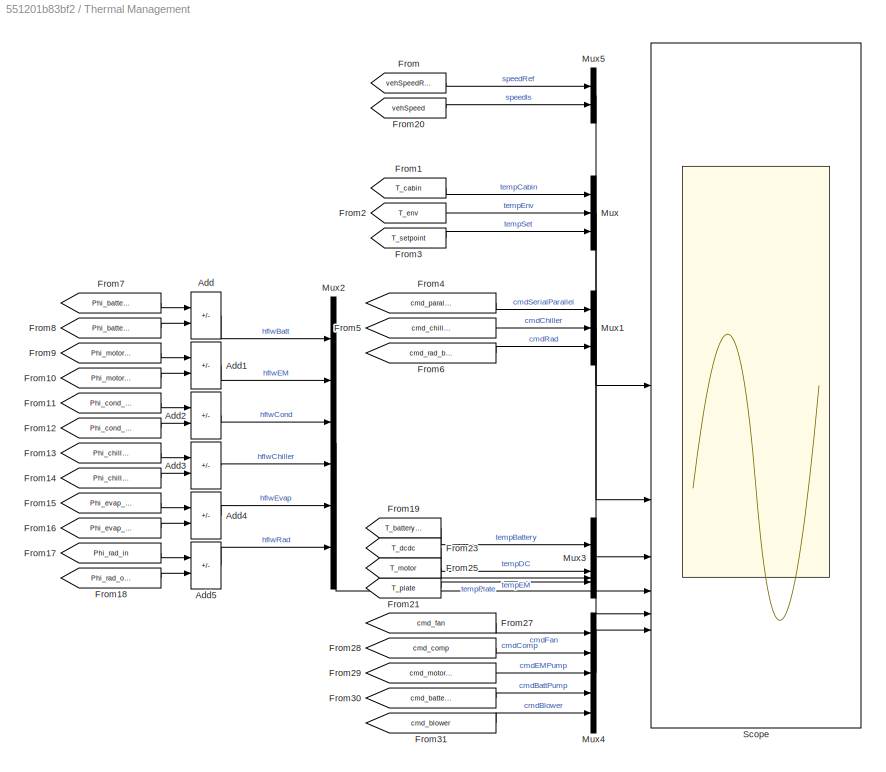
BLOCK [SubSystem] Thermal Management
  OpenFcn = scopePath = [gcb '/Scope'];\nopen_system(scopePath);
BLOCK [Sum] Thermal Management/Add
  IconShape = rectangular
  Inputs = -+
BLOCK [Sum] Thermal Management/Add1
  IconShape = rectangular
  Inputs = -+
BLOCK [Sum] Thermal Management/Add2
  IconShape = rectangular
  Inputs = +-
BLOCK [Sum] Thermal Management/Add3
  IconShape = rectangular
  Inputs = -+
BLOCK [Sum] Thermal Management/Add4
  IconShape = rectangular
  Inputs = -+
BLOCK [Sum] Thermal Management/Add5
  IconShape = rectangular
  Inputs = +-
BLOCK [From] Thermal Management/From
  GotoTag = vehSpeedRef
  TagVisibility = global
BLOCK [From] Thermal Management/From1
  GotoTag = T_cabin
  TagVisibility = global
BLOCK [From] Thermal Management/From10
  GotoTag = Phi_motor_out
  TagVisibility = global
BLOCK [From] Thermal Management/From11
  GotoTag = Phi_cond_in
  TagVisibility = global
BLOCK [From] Thermal Management/From12
  GotoTag = Phi_cond_out
  TagVisibility = global
BLOCK [From] Thermal Management/From13
  GotoTag = Phi_chiller_in
  TagVisibility = global
BLOCK [From] Thermal Management/From14
  GotoTag = Phi_chiller_out
  TagVisibility = global
BLOCK [From] Thermal Management/From15
  GotoTag = Phi_evap_in
  TagVisibility = global
BLOCK [From] Thermal Management/From16
  GotoTag = Phi_evap_out
  TagVisibility = global
BLOCK [From] Thermal Management/From17
  GotoTag = Phi_rad_in
  TagVisibility = global
BLOCK [From] Thermal Management/From18
  GotoTag = Phi_rad_out
  TagVisibility = global
BLOCK [From] Thermal Management/From19
  GotoTag = T_battery_max
  TagVisibility = global
BLOCK [From] Thermal Management/From2
  GotoTag = T_env
  TagVisibility = global
BLOCK [From] Thermal Management/From20
  GotoTag = vehSpeed
  TagVisibility = global
BLOCK [From] Thermal Management/From21
  GotoTag = T_plate
  TagVisibility = global
BLOCK [From] Thermal Management/From23
  GotoTag = T_dcdc
  TagVisibility = global
BLOCK [From] Thermal Management/From25
  GotoTag = T_motor
  TagVisibility = global
BLOCK [From] Thermal Management/From27
  GotoTag = cmd_fan
  TagVisibility = global
BLOCK [From] Thermal Management/From28
  GotoTag = cmd_comp
  TagVisibility = global
BLOCK [From] Thermal Management/From29
  GotoTag = cmd_motor_pump
  TagVisibility = global
BLOCK [From] Thermal Management/From3
  GotoTag = T_setpoint
  TagVisibility = global
BLOCK [From] Thermal Management/From30
  GotoTag = cmd_battery_pump
  TagVisibility = global
BLOCK [From] Thermal Management/From31
  GotoTag = cmd_blower
  TagVisibility = global
BLOCK [From] Thermal Management/From4
  GotoTag = cmd_parallel_serial
  TagVisibility = global
BLOCK [From] Thermal Management/From5
  GotoTag = cmd_chiller_bypass
  TagVisibility = global
BLOCK [From] Thermal Management/From6
  GotoTag = cmd_rad_bypass
  TagVisibility = global
BLOCK [From] Thermal Management/From7
  GotoTag = Phi_battery_in
  TagVisibility = global
BLOCK [From] Thermal Management/From8
  GotoTag = Phi_battery_out
  TagVisibility = global
BLOCK [From] Thermal Management/From9
  GotoTag = Phi_motor_in
  TagVisibility = global
BLOCK [Mux] Thermal Management/Mux
  DisplayOption = bar
  Inputs = 3
BLOCK [Mux] Thermal Management/Mux1
  DisplayOption = bar
  Inputs = 3
BLOCK [Mux] Thermal Management/Mux2
  DisplayOption = bar
  Inputs = 6
BLOCK [Mux] Thermal Management/Mux3
  DisplayOption = bar
BLOCK [Mux] Thermal Management/Mux4
  DisplayOption = bar
  Inputs = 5
BLOCK [Mux] Thermal Management/Mux5
  DisplayOption = bar
  Inputs = 2
BLOCK [Scope] Thermal Management/Scope
  ActiveDisplayYMaximum = 106.875
  ActiveDisplayYMinimum = -11.875
  Floating = off
  GraphicalSettings = {"Style":{"BackgroundColor":[0.12941176470588237,0.12941176470588237,0.12941176470588237],"AxesColor":[0.07058823529411765,0.07058823529411765,0.07058823529411765],"LabelsColor":[0.8509803921568627,0.8509803921568627,0.8509803921568627],"PreserveColors":false,"Visible":[true,true,true,true,true,true,true],"LineStyle":["-","-","-","-","-","-","-"],"LineWidth":[1.5,1.5,1.5,1.5,1.5,1.5,1.5],"BarWidth...<+1364ch>
  LayoutDimensionsString = [3 2]
  MultipleDisplayCache = [{"MaxYLimMag":106.875,"MaxYLimReal":106.875,"MinYLimMag":0,"MinYLimReal":-11.875,"PlotAsMagnitudePhase":false,"ShowGrid":true,"ShowLegend":true,"Title":"Vehicle Speed [km\/hr]","YLabel":""},{"MaxYLimMag":42.44104,"MaxYLimReal":41.91443,"MinYLimMag":18.03064,"MinYLimReal":23.12062,"PlotAsMagnitudePhase":false,"ShowGrid":true,"ShowLegend":true,"Title":"Cabin Temperature [degC]","YLabel":""},{"MaxYL...<+762ch>
  NumInputPorts = 6
  ScopeFrameLocation = window
  ShowLegend = on
  Tag = PublishScope
  Title = Vehicle Speed [km/hr]
  WasSavedAsWebScope = on
  WindowPosition = [966.000000,612.000000,560.000000,420.000000,]
BLOCK [SubSystem] Vehicle and Battery
  OpenFcn = scopePath = [gcb '/Scope'];\nopen_system(scopePath);
BLOCK [From] Vehicle and Battery/From4
  GotoTag = vehSpeed
  TagVisibility = global
BLOCK [From] Vehicle and Battery/From5
  GotoTag = vehSpeedRef
  TagVisibility = global
BLOCK [From] Vehicle and Battery/From6
  GotoTag = BatChrgCrnt
  TagVisibility = global
BLOCK [From] Vehicle and Battery/From7
  GotoTag = EMTrq
  TagVisibility = global
BLOCK [From] Vehicle and Battery/From8
  GotoTag = SOCCells
  TagVisibility = global
BLOCK [Gain] Vehicle and Battery/Gain
  Gain = 100
BLOCK [Mux] Vehicle and Battery/Mux
  DisplayOption = bar
  Inputs = 2
BLOCK [Scope] Vehicle and Battery/Scope
  ActiveDisplayYMaximum = 146.25
  ActiveDisplayYMinimum = -16.25
  DataLoggingVariableName = ScopeData1
  Floating = off
  GraphicalSettings = {"GraphicalSettings":{"LegacySettings":true,"Style":{"AxesScalingProperties":{"AutoScaleXAxisLimits":true,"ScaleAxesLimitsAtStop":false,"ShrinkYLimits":false},"Style":{"AxesColor":"[0 0 0]","ChannelNames":["Ref Speed","Real Speed"," Mode","","Machine Torque"],"ColorOrder":"[1 0.909803921568627 0.392156862745098;0.149019607843137 0.549019607843137 0.866666666666667;0.96078431372549 0.46666666666666...<+803ch>
  LayoutDimensionsString = [2 2]
  MultipleDisplayCache = [{"MaxYLimMag":146.25,"MaxYLimReal":146.25,"MinYLimMag":0,"MinYLimReal":-16.25,"PlotAsMagnitudePhase":false,"ShowGrid":true,"ShowLegend":true,"Title":"Reference speed vs. Actual speed","YLabel":"Velocity in km\/h"},{"MaxYLimMag":5.625,"MaxYLimReal":242.62279,"MinYLimMag":0,"MinYLimReal":-26.95974,"PlotAsMagnitudePhase":false,"ShowGrid":true,"ShowLegend":true,"Title":"Battery charging current ","YL...<+436ch>
  NumInputPorts = 4
  ShowLegend = on
  TimeSpan = 2000
  TimeSpanOverrunAction = Scroll
  Title = Reference speed vs. Actual speed
  WasSavedAsWebScope = on
  YLabel = Velocity in km/h
ANNOTATION (root): 1. Set scenario ( code ): Winter | Summer | Highway + Charging 2. Plot energy consumption of the system ( code ) 3. Plot HVAC consumption ( code ) 4. Plot Sankey diagram ( code ) 5. Plot drive and charge scenario ( code ) 6. Explore parameters ( code ) 7. Learn more about this example
ANNOTATION (root): Battery Electric Vehicle with Thermal Management
ANNOTATION (root): <copyright redacted>
ANNOTATION (root): Scenario, Controller, and Plots
ANNOTATION Battery Pump: 4-way valve side
ANNOTATION Battery Pump: Chiller bypass side
ANNOTATION Battery Pump: Command
ANNOTATION Battery Pump: LV Voltage side
ANNOTATION Battery Pump: Pump
ANNOTATION Battery/Lumped: Electrical Cell Model
ANNOTATION Battery/Lumped: Plate for Cooling and Heating
ANNOTATION Blower: The blower drives the air flow in the HVAC loop. It is controlled to maintain the cabin temperature setpoint. The source of air can come from the environment or from recirculated cabin air. If the AC is set to 'off' the blower is turned off (its mass flow is 0)
ANNOTATION Cabin: Radiation, Convection, and Conduction
ANNOTATION Cabin: Passengers
ANNOTATION Cabin/Sun Radiation: Introduce the heatflow radiation slowly so that we do not observe a temperature peak at the beginning of the simulation
ANNOTATION Cabin/Sun Radiation: Heatflow from the sun in W/m^2.
ANNOTATION Cabin/Sun Radiation: The heatflow is reflected (to some extent) by the window shields.
ANNOTATION Cabin/Sun Radiation: shield surface in m^2
ANNOTATION Charger: 1 means that the vehicle is charging, otherwise 0
ANNOTATION Charger/Charger Model/Charger: If desired a thermal connection between charger and coolant can be implemented here
ANNOTATION Charger/Charger Model/Charger: Activates charging logic when set to one
ANNOTATION Charger/Charger Model/No Charger: If desired a thermal connection between charger and coolant can be implemented here
ANNOTATION Chiller: The chiller is assumed to be a shell-and-tube type heat exchanger that lets the refrigerant absorb heat from the coolant. This way the coolant (water glycol) form the battery is cooled and heats the refrigerant (R 123)
ANNOTATION Chiller Bypass Valve: The chiller operates in an on-off manner depending on the battery temperature. This is controlled by the 3-way valve that either sends coolant to the chiller or bypasses the chiller.
ANNOTATION Chiller Bypass Valve: if it is equal to 1, the chiller is bypassed
ANNOTATION Compressor: Command
ANNOTATION Compressor: Compressor Model
ANNOTATION Compressor: Electrical Power Demand
ANNOTATION Compressor: The compressor drives the flow in the refrigerant loop. It is controlled to maintain a pressure of 0.3 MPa in the chiller and the evaporator, which corresponds to a saturation temperature of around 1 degC. The power required by the compressor is calculatred and attached to the battery circuit
ANNOTATION Condenser: Added flow resistance to avoid flow inversion
ANNOTATION Condenser: The condenser is a rectangular tube-and-fin type heat exchanger that dissipates refrigerant heat to the air. The air flow is driven by the vehicle speed and the fan. The liquid receiver provides storage for the refrigerant and permits only subcooled liquid to flow into the expansion valves.
ANNOTATION Controls: Temperature of the coolant exiting the motor
ANNOTATION Controls/Cabin Air Control: if the outside temperature is higher then the setpoint temperature turn off the PTC
ANNOTATION Controls/Check Requirements: Battery Requirement: The battery has to be within 5°C-35°C in 10 minutes
ANNOTATION Controls/Check Requirements: Cabin Requirement: The Cabin has to reach the setpoint temperature (+- 1°C) within 10 minutes
ANNOTATION Controls/Coolant Loop Control: I had to change the heater to use the temperature of the battery otherwise it would not heat at all
ANNOTATION Controls/Coolant Loop Control: Modified so that it does not activate too early
ANNOTATION Controls/Coolant Loop Control: Modified so that the parallel mode is not activated in winter
ANNOTATION Controls/Coolant Loop Control/Chiller Bypass: If the temperature of the battery > 35°C, then the chiller is activated If the temperature of the battery < 30°C, then the chiller is bypassed (cmd_chiller_bypass = 1)
ANNOTATION Controls/Coolant Loop Control/Parallel-Serial Mode: 0 = Parallel mode 1 = Serial mode
ANNOTATION Controls/Coolant Loop Control/Parallel-Serial Mode: If the chiller is active, always switch to parallel mode
ANNOTATION Controls/Coolant Loop Control/Parallel-Serial Mode: In cold weather, the coolant loops are in serial mode so that heat from the motor warms the batteries. If necessary, a heater can provide additional heat. In warm weather, the coolant loops remain in serial mode and both the batteries and the powertrain are cooled by the radiator. In hot weather, the coolant loop switches to parallel mode and separates. One loop cools the powertrain using the radi...<+80ch>
ANNOTATION Controls/Coolant Loop Control/Radiator Bypass: if T > 35 °C the value is set the valve way to the radiatior is activated -> The systems are cooled down via the radiator if T < 20 °C then the motor, inverter, charger etc. etc. are cooled enough and the radiator is simply bypassed
ANNOTATION Controls/Driver and Regen/Regen Braking: <copyright redacted>
ANNOTATION Controls/Driver and Regen/Regen Braking/Accel Pedal to Traction Wheel Torque Request: Convert Accelerator Pedal Position to Torque Command using Motor Torque Speed Curve
ANNOTATION Controls/Driver and Regen/Regen Braking/Regen Braking Control/Series Regen Braking: 1 brakes*(muk*pi*Ba^2*Rm*Npads/4)*P
ANNOTATION Controls/Driver and Regen/Regen Braking/Regen Braking Control/Series Regen Braking: - Total brake torque request based on brake pressure and parameters of disc brakes - Use as much regenerative motor braking as possible - Any braking torque request that cannot be provided by the motor, will be provided by the friction brakes
ANNOTATION Controls/Driver and Regen/Regen Braking/Regen Braking Control/Series Regen Braking: Changing this to 2 brakes, as HEV motors only braking 1 set of wheels
ANNOTATION Controls/Driver and Regen/Regen Braking/Regen Braking Control/Series Regen Braking: T / 2 brakes*(muk*pi*Ba^2*Rm*Npads/4)
ANNOTATION Controls/Driver and Regen/Regen Braking/Regenerative Braking Logic: 1 brakes*(muk*pi*Ba^2*Rm*Npads/4)*P
ANNOTATION Controls/Driver and Regen/Regen Braking/Regenerative Braking Logic: - Total brake torque request based on brake pressure and parameters of disc brakes - Use as much regenerative motor braking as possible - Any braking torque request that cannot be provided by the motor, will be provided by the friction brakes
ANNOTATION Controls/Driver and Regen/Regen Braking/Regenerative Braking Logic: T / 2 brakes*(muk*pi*Ba^2*Rm*Npads/4)
ANNOTATION Controls/Fan Control/Motor Requirement: If the motor reaches a temperature above 75°C the fan command is set to its maximum value (which is 1)
ANNOTATION DCDC: This subsystem models a coolant jacket around the DC-DC converter, which is represented by a heat flow rate source and a thermal mass. The DCDC system connects the HV side of the battery to the LV side of the pumps
ANNOTATION DCDC: Electrical Model
ANNOTATION DCDC: Thermal Model
ANNOTATION Driveline: Brake Commands
ANNOTATION Driveline: Break algebraic loop
ANNOTATION Evaporator: The evaporator is a rectangular tube-and-fin type heat exchanger that lets the refrigerant absorb heat from the air. It also dehumidifies the air when the air is humid.
ANNOTATION Heater: The battery heater is modeled as a heat flow rate source and a thermal mass. It is turned on in cold weather to bring the battery temperature above 5 °C.
ANNOTATION Motor: Driveline Side
ANNOTATION Motor: Electrical Model
ANNOTATION Motor: To break algebraic loop
ANNOTATION Parallel-Serial Mode Valve: Parallel mode flow path: A-D and C-B Serial mode flow path: A-B and C-D
ANNOTATION Radiator: The radiator dissipates the heat to the ambient air. This is achieved by air flowing through the radiator. The airflow depends from the fan placed close to the radiator and the vehicle speed
ANNOTATION Radiator Bypass Valve: Bypass the radiator
ANNOTATION Radiator Bypass Valve: Go to the radiator
ANNOTATION Radiator Bypass Valve: In cold weather, the radiator is bypassed so that heat from the powertrain can be used to warm up the batteries. This is controlled by the 3-way valve that either sends coolant to the radiator or bypasses the radiator.
ANNOTATION Scenario: Cabin HVAC
ANNOTATION Scenario: Current vehicle speed
ANNOTATION Scenario: Environment
LINE Battery Pump/From:1 -> Battery Pump/Transfer Fcn:1
LINE Battery Pump/Max Speed [rpm]:1 -> Battery Pump/Simulink-PS Converter:1
LINE Battery Pump/SC10/PS-Simulink Converter1:1 -> Battery Pump/SC10/Terminator:1
LINE Battery Pump/SC11/PS-Simulink Converter1:1 -> Battery Pump/SC11/Terminator:1
LINE Battery Pump/Transfer Fcn:1 -> Battery Pump/Max Speed [rpm]:1
LINE Battery/Lumped/Bias:1 -> Battery/Lumped/Goto6:1
LINE Battery/Lumped/Constant2:1 -> Battery/Lumped/Sum1:2
LINE Battery/Lumped/From1:1 -> Battery/Lumped/Sum1:1
LINE Battery/Lumped/Gain:1 -> Battery/Lumped/Goto4:1
LINE Battery/Lumped/PS-Simulink Converter1:1 -> Battery/Lumped/Goto1:1
LINE Battery/Lumped/PS-Simulink Converter2:1 -> Battery/Lumped/Terminator:1
LINE Battery/Lumped/PS-Simulink Converter:1 -> Battery/Lumped/Gain:1
NET Battery/Lumped/Probe:1 -> Battery/Lumped/Bias:1, Battery/Lumped/Goto2:1
LINE Battery/Lumped/Probe:2 -> Battery/Lumped/Goto7:1
LINE Battery/Lumped/SC3/PS-Simulink Converter1:1 -> Battery/Lumped/SC3/Goto1:1
LINE Battery/Lumped/SC3/PS-Simulink Converter:1 -> Battery/Lumped/SC3/Goto:1
LINE Battery/Lumped/SC4/PS-Simulink Converter1:1 -> Battery/Lumped/SC4/Terminator:1
LINE Battery/Lumped/SC4/PS-Simulink Converter:1 -> Battery/Lumped/SC4/Goto:1
LINE Battery/Lumped/Sum1:1 -> Battery/Lumped/Simulink-PS Converter1:1
LINE Blower/From1:1 -> Blower/Simulink-PS Converter2:1
LINE Blower/From2:1 -> Blower/Simulink-PS Converter3:1
LINE Blower/From3:1 -> Blower/Simulink-PS Converter4:1
LINE Blower/From4:1 -> Blower/Transfer Fcn:1
LINE Blower/From:1 -> Blower/Simulink-PS Converter1:1
LINE Blower/Max Flow [m^3//s]:1 -> Blower/Simulink-PS Converter:1
LINE Blower/Recirculation Flap/From:1 -> Blower/Recirculation Flap/Transfer Fcn:1
NET Blower/Recirculation Flap/Max Area [m^2]:1 -> Blower/Recirculation Flap/Sum1:1, Blower/Recirculation Flap/Sum:1
NET Blower/Recirculation Flap/Min Area [m^2]:1 -> Blower/Recirculation Flap/Sum2:2, Blower/Recirculation Flap/Sum:2
NET Blower/Recirculation Flap/Product:1 -> Blower/Recirculation Flap/Sum1:2, Blower/Recirculation Flap/Sum2:1
LINE Blower/Recirculation Flap/Sum1:1 -> Blower/Recirculation Flap/Simulink-PS Converter:1
LINE Blower/Recirculation Flap/Sum2:1 -> Blower/Recirculation Flap/Simulink-PS Converter1:1
LINE Blower/Recirculation Flap/Sum:1 -> Blower/Recirculation Flap/Product:2
LINE Blower/Recirculation Flap/Transfer Fcn:1 -> Blower/Recirculation Flap/Product:1
LINE Blower/Transfer Fcn:1 -> Blower/Max Flow [m^3//s]:1
LINE Cabin/CO2 [g//s]:1 -> Cabin/Simulink-PS Converter7:1
LINE Cabin/From1:1 -> Cabin/Simulink-PS Converter2:1
LINE Cabin/From2:1 -> Cabin/Simulink-PS Converter3:1
LINE Cabin/From3:1 -> Cabin/Simulink-PS Converter4:1
LINE Cabin/From4:1 -> Cabin/Simulink-PS Converter:1
NET Cabin/From5:1 -> Cabin/CO2 [g//s]:1, Cabin/Heat [W]:1, Cabin/Moisture [g//s]:1
LINE Cabin/From:1 -> Cabin/Simulink-PS Converter1:1
LINE Cabin/Heat [W]:1 -> Cabin/Simulink-PS Converter8:1
LINE Cabin/Moisture [g//s]:1 -> Cabin/Simulink-PS Converter6:1
LINE Cabin/PS-Simulink Converter:1 -> Cabin/Goto:1
LINE Cabin/Sun Radiation/From:1 -> Cabin/Sun Radiation/Gain:1
LINE Cabin/Sun Radiation/Gain1:1 -> Cabin/Sun Radiation/Transfer Fcn:1
LINE Cabin/Sun Radiation/Gain:1 -> Cabin/Sun Radiation/Gain1:1
LINE Cabin/Sun Radiation/Transfer Fcn:1 -> Cabin/Sun Radiation/Simulink-PS Converter9:1
LINE Cabin/Temperature [degC]:1 -> Cabin/Simulink-PS Converter5:1
LINE Charger/Charger Model/Charger/Battery CC-CV:1 -> Charger/Charger Model/Charger/Transfer Fcn1:1
LINE Charger/Charger Model/Charger/Charging Logic:1 -> Charger/Charger Model/Charger/Battery CC-CV:1
LINE Charger/Charger Model/Charger/Charging with 1.5C:1 -> Charger/Charger Model/Charger/Battery CC-CV:3
LINE Charger/Charger Model/Charger/Ground:1 -> Charger/Charger Model/Charger/Battery CC-CV:4
NET Charger/Charger Model/Charger/Transfer Fcn1:1 -> Charger/Charger Model/Charger/Battery Charging Current:1, Charger/Charger Model/Charger/Simulink-PS Converter1:1
LINE Charger/Charger Model/Charger/Voltage Cell:1 -> Charger/Charger Model/Charger/Battery CC-CV:2
LINE Charger/Charger Model/No Charger/Charging Logic:1 -> Charger/Charger Model/No Charger/Terminator:1
LINE Charger/Charger Model/No Charger/Ground1:1 -> Charger/Charger Model/No Charger/Battery Charging Current:1
LINE Charger/Charger Model/No Charger/Voltage Cell:1 -> Charger/Charger Model/No Charger/Terminator1:1
LINE Charger/Charger Model:1 -> Charger/Goto1:1
LINE Charger/From1:1 -> Charger/Charger Model:1
LINE Charger/From2:1 -> Charger/Charger Model:2
LINE Chiller Bypass Valve/Bias:1 -> Chiller Bypass Valve/Max Valve Displacement [m]:1
LINE Chiller Bypass Valve/From:1 -> Chiller Bypass Valve/Transfer Fcn:1
LINE Chiller Bypass Valve/Gain:1 -> Chiller Bypass Valve/Bias:1
LINE Chiller Bypass Valve/Max Valve Displacement [m]:1 -> Chiller Bypass Valve/Simulink-PS Converter:1
LINE Chiller Bypass Valve/Transfer Fcn:1 -> Chiller Bypass Valve/Gain:1
LINE Chiller/SC7/PS-Simulink Converter1:1 -> Chiller/SC7/Terminator:1
LINE Chiller/SC8/PS-Simulink Converter1:1 -> Chiller/SC8/Terminator:1
LINE Chiller/SR3/PS-Simulink Converter2:1 -> Chiller/SR3/Terminator:1
LINE Chiller/SR3/PS-Simulink Converter:1 -> Chiller/SR3/Goto:1
LINE Chiller/SR4/PS-Simulink Converter1:1 -> Chiller/SR4/Goto1:1
LINE Chiller/SR4/PS-Simulink Converter2:1 -> Chiller/SR4/Terminator:1
LINE Chiller/SR4/PS-Simulink Converter:1 -> Chiller/SR4/Goto:1
LINE Compressor/From:1 -> Compressor/Transfer Fcn:1
LINE Compressor/Max Speed [rpm]:1 -> Compressor/Simulink-PS Converter:1
LINE Compressor/PS-Simulink Converter2:1 -> Compressor/Terminator:1
LINE Compressor/Transfer Fcn:1 -> Compressor/Max Speed [rpm]:1
LINE Condenser/From1:1 -> Condenser/Simulink-PS Converter1:1
LINE Condenser/From2:1 -> Condenser/Simulink-PS Converter2:1
LINE Condenser/From3:1 -> Condenser/Simulink-PS Converter3:1
LINE Condenser/From4:1 -> Condenser/Simulink-PS Converter4:1
LINE Condenser/SR1/PS-Simulink Converter2:1 -> Condenser/SR1/Terminator:1
LINE Condenser/SR1/PS-Simulink Converter:1 -> Condenser/SR1/Goto:1
LINE Condenser/SR2/PS-Simulink Converter1:1 -> Condenser/SR2/Goto1:1
LINE Condenser/SR2/PS-Simulink Converter2:1 -> Condenser/SR2/Terminator:1
LINE Condenser/SR2/PS-Simulink Converter:1 -> Condenser/SR2/Goto:1
LINE Condenser/Speed command/From:1 -> Condenser/Speed command/Transfer Fcn:1
LINE Condenser/Speed command/Max Speed [rpm]:1 -> Condenser/Speed command/Out1:1
LINE Condenser/Speed command/Transfer Fcn:1 -> Condenser/Speed command/Max Speed [rpm]:1
LINE Condenser/Speed command:1 -> Condenser/Simulink-PS Converter:1
LINE Controls/Cabin Air Control/Add:1 -> Controls/Cabin Air Control/PID Controller1:1
LINE Controls/Cabin Air Control/Constant1:1 -> Controls/Cabin Air Control/Switch1:1
LINE Controls/Cabin Air Control/Constant:1 -> Controls/Cabin Air Control/Switch:1
LINE Controls/Cabin Air Control/PID Controller1:1 -> Controls/Cabin Air Control/Switch1:3
LINE Controls/Cabin Air Control/PID Controller:1 -> Controls/Cabin Air Control/cmd_blower:1
LINE Controls/Cabin Air Control/Product:1 -> Controls/Cabin Air Control/PID Controller:1
LINE Controls/Cabin Air Control/Relay:1 -> Controls/Cabin Air Control/Switch:3
LINE Controls/Cabin Air Control/Sign:1 -> Controls/Cabin Air Control/Product:2
NET Controls/Cabin Air Control/Sum1:1 -> Controls/Cabin Air Control/Sign:1, Controls/Cabin Air Control/Switch1:2, Controls/Cabin Air Control/Switch:2
LINE Controls/Cabin Air Control/Sum:1 -> Controls/Cabin Air Control/Product:1
LINE Controls/Cabin Air Control/Switch1:1 -> Controls/Cabin Air Control/cmd_ptc:1
LINE Controls/Cabin Air Control/Switch:1 -> Controls/Cabin Air Control/Old cmd ptc:1
LINE Controls/Cabin Air Control/T_cabin:1 -> Controls/Cabin Air Control/Sum:2
LINE Controls/Cabin Air Control/T_env:1 -> Controls/Cabin Air Control/Sum1:2
NET Controls/Cabin Air Control/T_ptc:1 -> Controls/Cabin Air Control/Add:1, Controls/Cabin Air Control/Relay:1
NET Controls/Cabin Air Control/T_setpoint:1 -> Controls/Cabin Air Control/Sum1:1, Controls/Cabin Air Control/Sum:1
LINE Controls/Cabin Air Control/Target Temp Out:1 -> Controls/Cabin Air Control/Add:2
LINE Controls/Cabin Air Control:1 -> Controls/Goto1:1
LINE Controls/Cabin Air Control:2 -> Controls/Goto2:1
LINE Controls/Check Requirements/Battery Temperature Monitoring:1 -> Controls/Check Requirements/OR:1
LINE Controls/Check Requirements/Battery Temperature Monitoring:2 -> Controls/Check Requirements/OR:2
NET Controls/Check Requirements/Bias2:1 -> Controls/Check Requirements/Goto1:1, Controls/Check Requirements/GreaterThan2:2
NET Controls/Check Requirements/Bias3:1 -> Controls/Check Requirements/Goto:1, Controls/Check Requirements/GreaterThan3:2
LINE Controls/Check Requirements/Bias:1 -> Controls/Check Requirements/Mux1:2
LINE Controls/Check Requirements/Constant1:1 -> Controls/Check Requirements/Mux1:3
LINE Controls/Check Requirements/Constant:1 -> Controls/Check Requirements/Mux1:1
LINE Controls/Check Requirements/Fault Qualification overtemperature:1 -> Controls/Check Requirements/OR1:2
LINE Controls/Check Requirements/Fault Qualification undertemperature:1 -> Controls/Check Requirements/OR1:1
LINE Controls/Check Requirements/From1:1 -> Controls/Check Requirements/Mux:3
LINE Controls/Check Requirements/From2:1 -> Controls/Check Requirements/Mux:2
LINE Controls/Check Requirements/From:1 -> Controls/Check Requirements/Mux:1
LINE Controls/Check Requirements/GreaterThan2:1 -> Controls/Check Requirements/Fault Qualification overtemperature:1
LINE Controls/Check Requirements/GreaterThan3:1 -> Controls/Check Requirements/Fault Qualification undertemperature:1
LINE Controls/Check Requirements/Mux1:1 -> Controls/Check Requirements/Scope:2
LINE Controls/Check Requirements/Mux:1 -> Controls/Check Requirements/Scope:1
LINE Controls/Check Requirements/OR1:1 -> Controls/Check Requirements/Terminator2:1
LINE Controls/Check Requirements/OR:1 -> Controls/Check Requirements/Terminator1:1
LINE Controls/Check Requirements/Temperature in K:1 -> Controls/Check Requirements/Bias:1
NET Controls/Check Requirements/cabinTemp:1 -> Controls/Check Requirements/Goto2:1, Controls/Check Requirements/GreaterThan2:1, Controls/Check Requirements/GreaterThan3:1
NET Controls/Check Requirements/cellTemps:1 -> Controls/Check Requirements/Battery Temperature Monitoring:1, Controls/Check Requirements/Goto3:1
NET Controls/Check Requirements/stepointTemp:1 -> Controls/Check Requirements/Bias2:1, Controls/Check Requirements/Bias3:1
LINE Controls/Compressor Control/Constant1:1 -> Controls/Compressor Control/Switch:3
LINE Controls/Compressor Control/Constant:1 -> Controls/Compressor Control/Sum:1
LINE Controls/Compressor Control/Freezing Cutoff:1 -> Controls/Compressor Control/Product:2
LINE Controls/Compressor Control/MinMax1:1 -> Controls/Compressor Control/Freezing Cutoff:1
LINE Controls/Compressor Control/MinMax2:1 -> Controls/Compressor Control/Switch:2
LINE Controls/Compressor Control/MinMax:1 -> Controls/Compressor Control/Sum1:2
LINE Controls/Compressor Control/PID Controller:1 -> Controls/Compressor Control/Product:1
LINE Controls/Compressor Control/Pressure Target [MPa]:1 -> Controls/Compressor Control/Sum1:1
LINE Controls/Compressor Control/Product:1 -> Controls/Compressor Control/Switch:1
LINE Controls/Compressor Control/Sum1:1 -> Controls/Compressor Control/PID Controller:1
LINE Controls/Compressor Control/Sum:1 -> Controls/Compressor Control/MinMax2:1
LINE Controls/Compressor Control/Switch:1 -> Controls/Compressor Control/cmd_comp:1
LINE Controls/Compressor Control/ac_onoff:1 -> Controls/Compressor Control/MinMax2:2
LINE Controls/Compressor Control/cmd_chiller_bypass:1 -> Controls/Compressor Control/Sum:2
NET Controls/Compressor Control/p_chiller:1 -> Controls/Compressor Control/MinMax1:2, Controls/Compressor Control/MinMax:2
NET Controls/Compressor Control/p_evap:1 -> Controls/Compressor Control/MinMax1:1, Controls/Compressor Control/MinMax:1
LINE Controls/Compressor Control:1 -> Controls/Goto9:1
LINE Controls/Coolant Loop Control/Battery Heater/Constant:1 -> Controls/Coolant Loop Control/Battery Heater/Switch:1
LINE Controls/Coolant Loop Control/Battery Heater/Relay:1 -> Controls/Coolant Loop Control/Battery Heater/Switch:3
LINE Controls/Coolant Loop Control/Battery Heater/Switch:1 -> Controls/Coolant Loop Control/Battery Heater/cmd_heater:1
LINE Controls/Coolant Loop Control/Battery Heater/T_coolant_battery_in:1 -> Controls/Coolant Loop Control/Battery Heater/Relay:1
LINE Controls/Coolant Loop Control/Battery Heater/T_env:1 -> Controls/Coolant Loop Control/Battery Heater/Switch:2
LINE Controls/Coolant Loop Control/Battery Heater:1 -> Controls/Coolant Loop Control/cmd_heater:1
LINE Controls/Coolant Loop Control/Battery Pump/Constant1:1 -> Controls/Coolant Loop Control/Battery Pump/Switch1:3
LINE Controls/Coolant Loop Control/Battery Pump/Constant:1 -> Controls/Coolant Loop Control/Battery Pump/Switch1:1
LINE Controls/Coolant Loop Control/Battery Pump/MinMax:1 -> Controls/Coolant Loop Control/Battery Pump/Switch:3
LINE Controls/Coolant Loop Control/Battery Pump/Relay:1 -> Controls/Coolant Loop Control/Battery Pump/MinMax:1
LINE Controls/Coolant Loop Control/Battery Pump/Switch1:1 -> Controls/Coolant Loop Control/Battery Pump/MinMax:2
LINE Controls/Coolant Loop Control/Battery Pump/Switch:1 -> Controls/Coolant Loop Control/Battery Pump/cmd_battery_pump:1
LINE Controls/Coolant Loop Control/Battery Pump/T_battery:1 -> Controls/Coolant Loop Control/Battery Pump/Relay:1
LINE Controls/Coolant Loop Control/Battery Pump/cmd_chiller_bypass:1 -> Controls/Coolant Loop Control/Battery Pump/Switch1:2
LINE Controls/Coolant Loop Control/Battery Pump/cmd_motor_pump:1 -> Controls/Coolant Loop Control/Battery Pump/Switch:1
LINE Controls/Coolant Loop Control/Battery Pump/parallel_serial:1 -> Controls/Coolant Loop Control/Battery Pump/Switch:2
LINE Controls/Coolant Loop Control/Battery Pump:1 -> Controls/Coolant Loop Control/cmd_battery_pump:1
LINE Controls/Coolant Loop Control/Chiller Bypass/Relay:1 -> Controls/Coolant Loop Control/Chiller Bypass/cmd_chiller_bypass:1
LINE Controls/Coolant Loop Control/Chiller Bypass/T_battery:1 -> Controls/Coolant Loop Control/Chiller Bypass/Relay:1
NET Controls/Coolant Loop Control/Chiller Bypass:1 -> Controls/Coolant Loop Control/Battery Pump:3, Controls/Coolant Loop Control/Parallel-Serial Mode:1, Controls/Coolant Loop Control/cmd_chiller_bypass:1
LINE Controls/Coolant Loop Control/Motor Pump/1-D Lookup Table:1 -> Controls/Coolant Loop Control/Motor Pump/Saturation:1
LINE Controls/Coolant Loop Control/Motor Pump/Saturation:1 -> Controls/Coolant Loop Control/Motor Pump/cmd_motor_pump:1
LINE Controls/Coolant Loop Control/Motor Pump/T_motor:1 -> Controls/Coolant Loop Control/Motor Pump/1-D Lookup Table:1
NET Controls/Coolant Loop Control/Motor Pump:1 -> Controls/Coolant Loop Control/Battery Pump:1, Controls/Coolant Loop Control/cmd_motor_pump:1
LINE Controls/Coolant Loop Control/Parallel-Serial Mode/Constant:1 -> Controls/Coolant Loop Control/Parallel-Serial Mode/Switch:3
LINE Controls/Coolant Loop Control/Parallel-Serial Mode/MinMax:1 -> Controls/Coolant Loop Control/Parallel-Serial Mode/Relay:1
LINE Controls/Coolant Loop Control/Parallel-Serial Mode/Relay:1 -> Controls/Coolant Loop Control/Parallel-Serial Mode/Switch:1
LINE Controls/Coolant Loop Control/Parallel-Serial Mode/Switch:1 -> Controls/Coolant Loop Control/Parallel-Serial Mode/cmd_parallel_serial:1
LINE Controls/Coolant Loop Control/Parallel-Serial Mode/T_coolant_inverter_out:1 -> Controls/Coolant Loop Control/Parallel-Serial Mode/MinMax:2
LINE Controls/Coolant Loop Control/Parallel-Serial Mode/T_env:1 -> Controls/Coolant Loop Control/Parallel-Serial Mode/MinMax:1
LINE Controls/Coolant Loop Control/Parallel-Serial Mode/cmd_chiller_bypass:1 -> Controls/Coolant Loop Control/Parallel-Serial Mode/Switch:2
NET Controls/Coolant Loop Control/Parallel-Serial Mode:1 -> Controls/Coolant Loop Control/Battery Pump:4, Controls/Coolant Loop Control/cmd_parallel_serial:1
LINE Controls/Coolant Loop Control/Radiator Bypass/Relay:1 -> Controls/Coolant Loop Control/Radiator Bypass/cmd_rad_bypass:1
LINE Controls/Coolant Loop Control/Radiator Bypass/T_coolant_inverter_out:1 -> Controls/Coolant Loop Control/Radiator Bypass/Relay:1
LINE Controls/Coolant Loop Control/Radiator Bypass:1 -> Controls/Coolant Loop Control/cmd_rad_bypass:1
NET Controls/Coolant Loop Control/T_battery:1 -> Controls/Coolant Loop Control/Battery Heater:2, Controls/Coolant Loop Control/Battery Pump:2, Controls/Coolant Loop Control/Chiller Bypass:1
LINE Controls/Coolant Loop Control/T_coolant_battery_in:1 -> Controls/Coolant Loop Control/Terminator:1
NET Controls/Coolant Loop Control/T_coolant_inverter_out:1 -> Controls/Coolant Loop Control/Parallel-Serial Mode:3, Controls/Coolant Loop Control/Radiator Bypass:1
NET Controls/Coolant Loop Control/T_env:1 -> Controls/Coolant Loop Control/Battery Heater:1, Controls/Coolant Loop Control/Parallel-Serial Mode:2
LINE Controls/Coolant Loop Control/T_motor:1 -> Controls/Coolant Loop Control/Motor Pump:1
LINE Controls/Coolant Loop Control:1 -> Controls/Goto3:1
LINE Controls/Coolant Loop Control:2 -> Controls/Goto4:1
LINE Controls/Coolant Loop Control:3 -> Controls/Goto5:1
LINE Controls/Coolant Loop Control:4 -> Controls/Goto6:1
LINE Controls/Coolant Loop Control:5 -> Controls/Goto7:1
LINE Controls/Coolant Loop Control:6 -> Controls/Goto8:1
LINE Controls/Driver and Regen/Constant:1 -> Controls/Driver and Regen/Longitudinal Driver:3
LINE Controls/Driver and Regen/EMSpd:1 -> Controls/Driver and Regen/Regen Braking:1
LINE Controls/Driver and Regen/Longitudinal Driver:1 -> Controls/Driver and Regen/Terminator:1
LINE Controls/Driver and Regen/Longitudinal Driver:2 -> Controls/Driver and Regen/Regen Braking:2
LINE Controls/Driver and Regen/Longitudinal Driver:3 -> Controls/Driver and Regen/Regen Braking:3
LINE Controls/Driver and Regen/Regen Braking/Accel Pedal to Traction Wheel Torque Request/AccelPdl:1 -> Controls/Driver and Regen/Regen Braking/Accel Pedal to Traction Wheel Torque Request/Product1:1
LINE Controls/Driver and Regen/Regen Braking/Accel Pedal to Traction Wheel Torque Request/EMSpd:1 -> Controls/Driver and Regen/Regen Braking/Accel Pedal to Traction Wheel Torque Request/rads_to_rpm:1
LINE Controls/Driver and Regen/Regen Braking/Accel Pedal to Traction Wheel Torque Request/MaxEMTrqVsSpd:1 -> Controls/Driver and Regen/Regen Braking/Accel Pedal to Traction Wheel Torque Request/Product1:2
LINE Controls/Driver and Regen/Regen Braking/Accel Pedal to Traction Wheel Torque Request/Product1:1 -> Controls/Driver and Regen/Regen Braking/Accel Pedal to Traction Wheel Torque Request/TrqCmd:1
LINE Controls/Driver and Regen/Regen Braking/Accel Pedal to Traction Wheel Torque Request/rads_to_rpm:1 -> Controls/Driver and Regen/Regen Braking/Accel Pedal to Traction Wheel Torque Request/MaxEMTrqVsSpd:1
LINE Controls/Driver and Regen/Regen Braking/Accel Pedal to Traction Wheel Torque Request:1 -> Controls/Driver and Regen/Regen Braking/Motor Torque Arbitration and Power Management:1
NET Controls/Driver and Regen/Regen Braking/AccelPdl:1 -> Controls/Driver and Regen/Regen Braking/Accel Pedal to Traction Wheel Torque Request:1, Controls/Driver and Regen/Regen Braking/Goto:1
LINE Controls/Driver and Regen/Regen Braking/Brake Pedal to Braking Pressure Request/BcuBrkPrsCmd:1 -> Controls/Driver and Regen/Regen Braking/Brake Pedal to Braking Pressure Request/Product:2
NET Controls/Driver and Regen/Regen Braking/Brake Pedal to Braking Pressure Request/Front Bias:1 -> Controls/Driver and Regen/Regen Braking/Brake Pedal to Braking Pressure Request/Mux:1, Controls/Driver and Regen/Regen Braking/Brake Pedal to Braking Pressure Request/Mux:2
LINE Controls/Driver and Regen/Regen Braking/Brake Pedal to Braking Pressure Request/Gain4:1 -> Controls/Driver and Regen/Regen Braking/Brake Pedal to Braking Pressure Request/BrkPrsReq:1
LINE Controls/Driver and Regen/Regen Braking/Brake Pedal to Braking Pressure Request/Mux:1 -> Controls/Driver and Regen/Regen Braking/Brake Pedal to Braking Pressure Request/Product:1
LINE Controls/Driver and Regen/Regen Braking/Brake Pedal to Braking Pressure Request/Product:1 -> Controls/Driver and Regen/Regen Braking/Brake Pedal to Braking Pressure Request/Gain4:1
NET Controls/Driver and Regen/Regen Braking/Brake Pedal to Braking Pressure Request/Rear Bias:1 -> Controls/Driver and Regen/Regen Braking/Brake Pedal to Braking Pressure Request/Mux:3, Controls/Driver and Regen/Regen Braking/Brake Pedal to Braking Pressure Request/Mux:4
LINE Controls/Driver and Regen/Regen Braking/Brake Pedal to Braking Pressure Request:1 -> Controls/Driver and Regen/Regen Braking/Regenerative Braking Logic:3
LINE Controls/Driver and Regen/Regen Braking/DecelCmd:1 -> Controls/Driver and Regen/Regen Braking/Selector1:1
NET Controls/Driver and Regen/Regen Braking/EMSpd:1 -> Controls/Driver and Regen/Regen Braking/Goto7:1, Controls/Driver and Regen/Regen Braking/Regenerative Braking Logic:2
LINE Controls/Driver and Regen/Regen Braking/From13:1 -> Controls/Driver and Regen/Regen Braking/Accel Pedal to Traction Wheel Torque Request:2
LINE Controls/Driver and Regen/Regen Braking/From4:1 -> Controls/Driver and Regen/Regen Braking/Motor Torque Arbitration and Power Management:2
LINE Controls/Driver and Regen/Regen Braking/Motor Torque Arbitration and Power Management/Accel Decel Switch:1 -> Controls/Driver and Regen/Regen Braking/Motor Torque Arbitration and Power Management/EMTrqCmdFinal:1
LINE Controls/Driver and Regen/Regen Braking/Motor Torque Arbitration and Power Management/AccelPdl:1 -> Controls/Driver and Regen/Regen Braking/Motor Torque Arbitration and Power Management/Compare To Constant:1
LINE Controls/Driver and Regen/Regen Braking/Motor Torque Arbitration and Power Management/Compare To Constant:1 -> Controls/Driver and Regen/Regen Braking/Motor Torque Arbitration and Power Management/Accel Decel Switch:2
LINE Controls/Driver and Regen/Regen Braking/Motor Torque Arbitration and Power Management/EMTrqCmdRegen:1 -> Controls/Driver and Regen/Regen Braking/Motor Torque Arbitration and Power Management/Accel Decel Switch:3
LINE Controls/Driver and Regen/Regen Braking/Motor Torque Arbitration and Power Management/EMTrqCmdTrac:1 -> Controls/Driver and Regen/Regen Braking/Motor Torque Arbitration and Power Management/Accel Decel Switch:1
LINE Controls/Driver and Regen/Regen Braking/Motor Torque Arbitration and Power Management:1 -> Controls/Driver and Regen/Regen Braking/EMTrqCmd:1
LINE Controls/Driver and Regen/Regen Braking/Regen Braking Control/Series Regen Braking/1-D Lookup Table:1 -> Controls/Driver and Regen/Regen Braking/Regen Braking Control/Series Regen Braking/Product:2
NET Controls/Driver and Regen/Regen Braking/Regen Braking Control/Series Regen Braking/Add:1 -> Controls/Driver and Regen/Regen Braking/Regen Braking Control/Series Regen Braking/MinMax:1, Controls/Driver and Regen/Regen Braking/Regen Braking Control/Series Regen Braking/Subtract:1
NET Controls/Driver and Regen/Regen Braking/Regen Braking Control/Series Regen Braking/BrkPrsReq :1 -> Controls/Driver and Regen/Regen Braking/Regen Braking Control/Series Regen Braking/Selector1:1, Controls/Driver and Regen/Regen Braking/Regen Braking Control/Series Regen Braking/Selector:1
LINE Controls/Driver and Regen/Regen Braking/Regen Braking Control/Series Regen Braking/Constant1:1 -> Controls/Driver and Regen/Regen Braking/Regen Braking Control/Series Regen Braking/Product4:2
NET Controls/Driver and Regen/Regen Braking/Regen Braking Control/Series Regen Braking/Constant2:1 -> Controls/Driver and Regen/Regen Braking/Regen Braking Control/Series Regen Braking/Product5:1, Controls/Driver and Regen/Regen Braking/Regen Braking Control/Series Regen Braking/Product6:2
LINE Controls/Driver and Regen/Regen Braking/Regen Braking Control/Series Regen Braking/Demux2:1 -> Controls/Driver and Regen/Regen Braking/Regen Braking Control/Series Regen Braking/Product6:1
LINE Controls/Driver and Regen/Regen Braking/Regen Braking Control/Series Regen Braking/Demux2:2 -> Controls/Driver and Regen/Regen Braking/Regen Braking Control/Series Regen Braking/Product5:2
LINE Controls/Driver and Regen/Regen Braking/Regen Braking Control/Series Regen Braking/Demux:1 -> Controls/Driver and Regen/Regen Braking/Regen Braking Control/Series Regen Braking/Vector Concatenate:3
LINE Controls/Driver and Regen/Regen Braking/Regen Braking Control/Series Regen Braking/Demux:2 -> Controls/Driver and Regen/Regen Braking/Regen Braking Control/Series Regen Braking/Vector Concatenate:4
LINE Controls/Driver and Regen/Regen Braking/Regen Braking Control/Series Regen Braking/EMSpd :1 -> Controls/Driver and Regen/Regen Braking/Regen Braking Control/Series Regen Braking/rads_to_rpm:1
LINE Controls/Driver and Regen/Regen Braking/Regen Braking Control/Series Regen Braking/Gain6:1 -> Controls/Driver and Regen/Regen Braking/Regen Braking Control/Series Regen Braking/Saturation:1
LINE Controls/Driver and Regen/Regen Braking/Regen Braking Control/Series Regen Braking/Gain8:1 -> Controls/Driver and Regen/Regen Braking/Regen Braking Control/Series Regen Braking/Demux:1
LINE Controls/Driver and Regen/Regen Braking/Regen Braking Control/Series Regen Braking/Gain:1 -> Controls/Driver and Regen/Regen Braking/Regen Braking Control/Series Regen Braking/ EMTrqCmdRegen:1
LINE Controls/Driver and Regen/Regen Braking/Regen Braking Control/Series Regen Braking/MaxMotTrqVsSpd:1 -> Controls/Driver and Regen/Regen Braking/Regen Braking Control/Series Regen Braking/MotTrqReflectedToWheels:1
LINE Controls/Driver and Regen/Regen Braking/Regen Braking Control/Series Regen Braking/MinMax:1 -> Controls/Driver and Regen/Regen Braking/Regen Braking Control/Series Regen Braking/Product:1
LINE Controls/Driver and Regen/Regen Braking/Regen Braking Control/Series Regen Braking/MotTrqReflectedToWheels:1 -> Controls/Driver and Regen/Regen Braking/Regen Braking Control/Series Regen Braking/MinMax:2
LINE Controls/Driver and Regen/Regen Braking/Regen Braking Control/Series Regen Braking/Negative 5:1 -> Controls/Driver and Regen/Regen Braking/Regen Braking Control/Series Regen Braking/Product4:1
LINE Controls/Driver and Regen/Regen Braking/Regen Braking Control/Series Regen Braking/Product4:1 -> Controls/Driver and Regen/Regen Braking/Regen Braking Control/Series Regen Braking/Gain6:1
LINE Controls/Driver and Regen/Regen Braking/Regen Braking Control/Series Regen Braking/Product5:1 -> Controls/Driver and Regen/Regen Braking/Regen Braking Control/Series Regen Braking/Add:2
LINE Controls/Driver and Regen/Regen Braking/Regen Braking Control/Series Regen Braking/Product6:1 -> Controls/Driver and Regen/Regen Braking/Regen Braking Control/Series Regen Braking/Add:1
NET Controls/Driver and Regen/Regen Braking/Regen Braking Control/Series Regen Braking/Product:1 -> Controls/Driver and Regen/Regen Braking/Regen Braking Control/Series Regen Braking/Subtract:2, Controls/Driver and Regen/Regen Braking/Regen Braking Control/Series Regen Braking/WhlTrqReflectedToMot:1
NET Controls/Driver and Regen/Regen Braking/Regen Braking Control/Series Regen Braking/Saturation:1 -> Controls/Driver and Regen/Regen Braking/Regen Braking Control/Series Regen Braking/Vector Concatenate:1, Controls/Driver and Regen/Regen Braking/Regen Braking Control/Series Regen Braking/Vector Concatenate:2
LINE Controls/Driver and Regen/Regen Braking/Regen Braking Control/Series Regen Braking/Selector1:1 -> Controls/Driver and Regen/Regen Braking/Regen Braking Control/Series Regen Braking/Gain8:1
LINE Controls/Driver and Regen/Regen Braking/Regen Braking Control/Series Regen Braking/Selector:1 -> Controls/Driver and Regen/Regen Braking/Regen Braking Control/Series Regen Braking/Demux2:1
LINE Controls/Driver and Regen/Regen Braking/Regen Braking Control/Series Regen Braking/Subtract:1 -> Controls/Driver and Regen/Regen Braking/Regen Braking Control/Series Regen Braking/Negative 5:1
LINE Controls/Driver and Regen/Regen Braking/Regen Braking Control/Series Regen Braking/Vector Concatenate:1 -> Controls/Driver and Regen/Regen Braking/Regen Braking Control/Series Regen Braking/ BrkCmd:1
LINE Controls/Driver and Regen/Regen Braking/Regen Braking Control/Series Regen Braking/VehSpd :1 -> Controls/Driver and Regen/Regen Braking/Regen Braking Control/Series Regen Braking/1-D Lookup Table:1
LINE Controls/Driver and Regen/Regen Braking/Regen Braking Control/Series Regen Braking/WhlTrqReflectedToMot:1 -> Controls/Driver and Regen/Regen Braking/Regen Braking Control/Series Regen Braking/Gain:1
LINE Controls/Driver and Regen/Regen Braking/Regen Braking Control/Series Regen Braking/rads_to_rpm:1 -> Controls/Driver and Regen/Regen Braking/Regen Braking Control/Series Regen Braking/MaxMotTrqVsSpd:1
LINE Controls/Driver and Regen/Regen Braking/Regenerative Braking Logic/1-D Lookup Table:1 -> Controls/Driver and Regen/Regen Braking/Regenerative Braking Logic/Product:2
NET Controls/Driver and Regen/Regen Braking/Regenerative Braking Logic/Add:1 -> Controls/Driver and Regen/Regen Braking/Regenerative Braking Logic/MinMax:1, Controls/Driver and Regen/Regen Braking/Regenerative Braking Logic/Subtract:1
NET Controls/Driver and Regen/Regen Braking/Regenerative Braking Logic/BrkPrsReq :1 -> Controls/Driver and Regen/Regen Braking/Regenerative Braking Logic/Selector1:1, Controls/Driver and Regen/Regen Braking/Regenerative Braking Logic/Selector:1
LINE Controls/Driver and Regen/Regen Braking/Regenerative Braking Logic/Constant1:1 -> Controls/Driver and Regen/Regen Braking/Regenerative Braking Logic/Product4:2
NET Controls/Driver and Regen/Regen Braking/Regenerative Braking Logic/Constant2:1 -> Controls/Driver and Regen/Regen Braking/Regenerative Braking Logic/Product5:1, Controls/Driver and Regen/Regen Braking/Regenerative Braking Logic/Product6:2
LINE Controls/Driver and Regen/Regen Braking/Regenerative Braking Logic/Demux2:1 -> Controls/Driver and Regen/Regen Braking/Regenerative Braking Logic/Product6:1
LINE Controls/Driver and Regen/Regen Braking/Regenerative Braking Logic/Demux2:2 -> Controls/Driver and Regen/Regen Braking/Regenerative Braking Logic/Product5:2
LINE Controls/Driver and Regen/Regen Braking/Regenerative Braking Logic/Demux:1 -> Controls/Driver and Regen/Regen Braking/Regenerative Braking Logic/Vector Concatenate:1
LINE Controls/Driver and Regen/Regen Braking/Regenerative Braking Logic/Demux:2 -> Controls/Driver and Regen/Regen Braking/Regenerative Braking Logic/Vector Concatenate:2
LINE Controls/Driver and Regen/Regen Braking/Regenerative Braking Logic/EMSpd :1 -> Controls/Driver and Regen/Regen Braking/Regenerative Braking Logic/rads_to_rpm:1
LINE Controls/Driver and Regen/Regen Braking/Regenerative Braking Logic/Gain6:1 -> Controls/Driver and Regen/Regen Braking/Regenerative Braking Logic/Saturation:1
LINE Controls/Driver and Regen/Regen Braking/Regenerative Braking Logic/Gain8:1 -> Controls/Driver and Regen/Regen Braking/Regenerative Braking Logic/Demux:1
LINE Controls/Driver and Regen/Regen Braking/Regenerative Braking Logic/Gain:1 -> Controls/Driver and Regen/Regen Braking/Regenerative Braking Logic/ EMTrqCmdRegen:1
LINE Controls/Driver and Regen/Regen Braking/Regenerative Braking Logic/MaxMotTrqVsSpd:1 -> Controls/Driver and Regen/Regen Braking/Regenerative Braking Logic/MotTrqReflectedToWheels:1
LINE Controls/Driver and Regen/Regen Braking/Regenerative Braking Logic/MinMax:1 -> Controls/Driver and Regen/Regen Braking/Regenerative Braking Logic/Product:1
LINE Controls/Driver and Regen/Regen Braking/Regenerative Braking Logic/MotTrqReflectedToWheels:1 -> Controls/Driver and Regen/Regen Braking/Regenerative Braking Logic/MinMax:2
LINE Controls/Driver and Regen/Regen Braking/Regenerative Braking Logic/Negative 5:1 -> Controls/Driver and Regen/Regen Braking/Regenerative Braking Logic/Product4:1
LINE Controls/Driver and Regen/Regen Braking/Regenerative Braking Logic/Product4:1 -> Controls/Driver and Regen/Regen Braking/Regenerative Braking Logic/Gain6:1
LINE Controls/Driver and Regen/Regen Braking/Regenerative Braking Logic/Product5:1 -> Controls/Driver and Regen/Regen Braking/Regenerative Braking Logic/Add:2
LINE Controls/Driver and Regen/Regen Braking/Regenerative Braking Logic/Product6:1 -> Controls/Driver and Regen/Regen Braking/Regenerative Braking Logic/Add:1
NET Controls/Driver and Regen/Regen Braking/Regenerative Braking Logic/Product:1 -> Controls/Driver and Regen/Regen Braking/Regenerative Braking Logic/Subtract:2, Controls/Driver and Regen/Regen Braking/Regenerative Braking Logic/WhlTrqReflectedToMot:1
NET Controls/Driver and Regen/Regen Braking/Regenerative Braking Logic/Saturation:1 -> Controls/Driver and Regen/Regen Braking/Regenerative Braking Logic/Vector Concatenate:3, Controls/Driver and Regen/Regen Braking/Regenerative Braking Logic/Vector Concatenate:4
LINE Controls/Driver and Regen/Regen Braking/Regenerative Braking Logic/Selector1:1 -> Controls/Driver and Regen/Regen Braking/Regenerative Braking Logic/Gain8:1
LINE Controls/Driver and Regen/Regen Braking/Regenerative Braking Logic/Selector:1 -> Controls/Driver and Regen/Regen Braking/Regenerative Braking Logic/Demux2:1
LINE Controls/Driver and Regen/Regen Braking/Regenerative Braking Logic/Subtract:1 -> Controls/Driver and Regen/Regen Braking/Regenerative Braking Logic/Negative 5:1
LINE Controls/Driver and Regen/Regen Braking/Regenerative Braking Logic/Vector Concatenate:1 -> Controls/Driver and Regen/Regen Braking/Regenerative Braking Logic/ BrkCmd:1
LINE Controls/Driver and Regen/Regen Braking/Regenerative Braking Logic/VehSpd :1 -> Controls/Driver and Regen/Regen Braking/Regenerative Braking Logic/1-D Lookup Table:1
LINE Controls/Driver and Regen/Regen Braking/Regenerative Braking Logic/WhlTrqReflectedToMot:1 -> Controls/Driver and Regen/Regen Braking/Regenerative Braking Logic/Gain:1
LINE Controls/Driver and Regen/Regen Braking/Regenerative Braking Logic/rads_to_rpm:1 -> Controls/Driver and Regen/Regen Braking/Regenerative Braking Logic/MaxMotTrqVsSpd:1
LINE Controls/Driver and Regen/Regen Braking/Regenerative Braking Logic:1 -> Controls/Driver and Regen/Regen Braking/Motor Torque Arbitration and Power Management:3
LINE Controls/Driver and Regen/Regen Braking/Regenerative Braking Logic:2 -> Controls/Driver and Regen/Regen Braking/VcuBrkPrsCmd:1
LINE Controls/Driver and Regen/Regen Braking/Selector1:1 -> Controls/Driver and Regen/Regen Braking/Brake Pedal to Braking Pressure Request:1
LINE Controls/Driver and Regen/Regen Braking/VehSpdFdbk:1 -> Controls/Driver and Regen/Regen Braking/Regenerative Braking Logic:1
LINE Controls/Driver and Regen/Regen Braking:1 -> Controls/Driver and Regen/EMTrqCmd:1
LINE Controls/Driver and Regen/Regen Braking:2 -> Controls/Driver and Regen/VcuBrkPrsCmd:1
LINE Controls/Driver and Regen/VehRef:1 -> Controls/Driver and Regen/Longitudinal Driver:1
NET Controls/Driver and Regen/VehSpdFdbk:1 -> Controls/Driver and Regen/Longitudinal Driver:2, Controls/Driver and Regen/Regen Braking:4
LINE Controls/Driver and Regen:1 -> Controls/Goto10:1
LINE Controls/Driver and Regen:2 -> Controls/Goto13:1
NET Controls/Fan Control/Condenser Requirement/1-D Lookup Table1:1 -> Controls/Fan Control/Condenser Requirement/Bias1:1, Controls/Fan Control/Condenser Requirement/Relay Level 2:3
NET Controls/Fan Control/Condenser Requirement/1-D Lookup Table2:1 -> Controls/Fan Control/Condenser Requirement/Bias2:1, Controls/Fan Control/Condenser Requirement/Relay Level 1:3
NET Controls/Fan Control/Condenser Requirement/1-D Lookup Table:1 -> Controls/Fan Control/Condenser Requirement/Bias:1, Controls/Fan Control/Condenser Requirement/Relay Level 3:3
LINE Controls/Fan Control/Condenser Requirement/Bias1:1 -> Controls/Fan Control/Condenser Requirement/Relay Level 2:2
LINE Controls/Fan Control/Condenser Requirement/Bias2:1 -> Controls/Fan Control/Condenser Requirement/Relay Level 1:2
LINE Controls/Fan Control/Condenser Requirement/Bias:1 -> Controls/Fan Control/Condenser Requirement/Relay Level 3:2
LINE Controls/Fan Control/Condenser Requirement/Gain:1 -> Controls/Fan Control/Condenser Requirement/cmd_fan:1
LINE Controls/Fan Control/Condenser Requirement/Relay Level 1/Data Type Conversion:1 -> Controls/Fan Control/Condenser Requirement/Relay Level 1/Relay:1
LINE Controls/Fan Control/Condenser Requirement/Relay Level 1/Relational Operator1:1 -> Controls/Fan Control/Condenser Requirement/Relay Level 1/Sum:2
LINE Controls/Fan Control/Condenser Requirement/Relay Level 1/Relational Operator:1 -> Controls/Fan Control/Condenser Requirement/Relay Level 1/Sum:1
LINE Controls/Fan Control/Condenser Requirement/Relay Level 1/Relay:1 -> Controls/Fan Control/Condenser Requirement/Relay Level 1/out:1
LINE Controls/Fan Control/Condenser Requirement/Relay Level 1/Sum:1 -> Controls/Fan Control/Condenser Requirement/Relay Level 1/Data Type Conversion:1
LINE Controls/Fan Control/Condenser Requirement/Relay Level 1/high:1 -> Controls/Fan Control/Condenser Requirement/Relay Level 1/Relational Operator:2
NET Controls/Fan Control/Condenser Requirement/Relay Level 1/in:1 -> Controls/Fan Control/Condenser Requirement/Relay Level 1/Relational Operator1:1, Controls/Fan Control/Condenser Requirement/Relay Level 1/Relational Operator:1
LINE Controls/Fan Control/Condenser Requirement/Relay Level 1/low:1 -> Controls/Fan Control/Condenser Requirement/Relay Level 1/Relational Operator1:2
LINE Controls/Fan Control/Condenser Requirement/Relay Level 1:1 -> Controls/Fan Control/Condenser Requirement/Sum:3
LINE Controls/Fan Control/Condenser Requirement/Relay Level 2/Data Type Conversion:1 -> Controls/Fan Control/Condenser Requirement/Relay Level 2/Relay:1
LINE Controls/Fan Control/Condenser Requirement/Relay Level 2/Relational Operator1:1 -> Controls/Fan Control/Condenser Requirement/Relay Level 2/Sum:2
LINE Controls/Fan Control/Condenser Requirement/Relay Level 2/Relational Operator:1 -> Controls/Fan Control/Condenser Requirement/Relay Level 2/Sum:1
LINE Controls/Fan Control/Condenser Requirement/Relay Level 2/Relay:1 -> Controls/Fan Control/Condenser Requirement/Relay Level 2/out:1
LINE Controls/Fan Control/Condenser Requirement/Relay Level 2/Sum:1 -> Controls/Fan Control/Condenser Requirement/Relay Level 2/Data Type Conversion:1
LINE Controls/Fan Control/Condenser Requirement/Relay Level 2/high:1 -> Controls/Fan Control/Condenser Requirement/Relay Level 2/Relational Operator:2
NET Controls/Fan Control/Condenser Requirement/Relay Level 2/in:1 -> Controls/Fan Control/Condenser Requirement/Relay Level 2/Relational Operator1:1, Controls/Fan Control/Condenser Requirement/Relay Level 2/Relational Operator:1
LINE Controls/Fan Control/Condenser Requirement/Relay Level 2/low:1 -> Controls/Fan Control/Condenser Requirement/Relay Level 2/Relational Operator1:2
LINE Controls/Fan Control/Condenser Requirement/Relay Level 2:1 -> Controls/Fan Control/Condenser Requirement/Sum:2
LINE Controls/Fan Control/Condenser Requirement/Relay Level 3/Data Type Conversion:1 -> Controls/Fan Control/Condenser Requirement/Relay Level 3/Relay:1
LINE Controls/Fan Control/Condenser Requirement/Relay Level 3/Relational Operator1:1 -> Controls/Fan Control/Condenser Requirement/Relay Level 3/Sum:2
LINE Controls/Fan Control/Condenser Requirement/Relay Level 3/Relational Operator:1 -> Controls/Fan Control/Condenser Requirement/Relay Level 3/Sum:1
LINE Controls/Fan Control/Condenser Requirement/Relay Level 3/Relay:1 -> Controls/Fan Control/Condenser Requirement/Relay Level 3/out:1
LINE Controls/Fan Control/Condenser Requirement/Relay Level 3/Sum:1 -> Controls/Fan Control/Condenser Requirement/Relay Level 3/Data Type Conversion:1
LINE Controls/Fan Control/Condenser Requirement/Relay Level 3/high:1 -> Controls/Fan Control/Condenser Requirement/Relay Level 3/Relational Operator:2
NET Controls/Fan Control/Condenser Requirement/Relay Level 3/in:1 -> Controls/Fan Control/Condenser Requirement/Relay Level 3/Relational Operator1:1, Controls/Fan Control/Condenser Requirement/Relay Level 3/Relational Operator:1
LINE Controls/Fan Control/Condenser Requirement/Relay Level 3/low:1 -> Controls/Fan Control/Condenser Requirement/Relay Level 3/Relational Operator1:2
LINE Controls/Fan Control/Condenser Requirement/Relay Level 3:1 -> Controls/Fan Control/Condenser Requirement/Sum:1
LINE Controls/Fan Control/Condenser Requirement/Sum:1 -> Controls/Fan Control/Condenser Requirement/Gain:1
NET Controls/Fan Control/Condenser Requirement/T_env:1 -> Controls/Fan Control/Condenser Requirement/1-D Lookup Table1:1, Controls/Fan Control/Condenser Requirement/1-D Lookup Table2:1, Controls/Fan Control/Condenser Requirement/1-D Lookup Table:1
NET Controls/Fan Control/Condenser Requirement/p_cond:1 -> Controls/Fan Control/Condenser Requirement/Relay Level 1:1, Controls/Fan Control/Condenser Requirement/Relay Level 2:1, Controls/Fan Control/Condenser Requirement/Relay Level 3:1
LINE Controls/Fan Control/Condenser Requirement:1 -> Controls/Fan Control/Switch:1
LINE Controls/Fan Control/Constant:1 -> Controls/Fan Control/Switch:3
LINE Controls/Fan Control/MinMax:1 -> Controls/Fan Control/cmd_fan:1
LINE Controls/Fan Control/Motor Requirement/1-D Lookup Table:1 -> Controls/Fan Control/Motor Requirement/cmd_fan:1
LINE Controls/Fan Control/Motor Requirement/T_motor:1 -> Controls/Fan Control/Motor Requirement/1-D Lookup Table:1
LINE Controls/Fan Control/Motor Requirement:1 -> Controls/Fan Control/MinMax:2
LINE Controls/Fan Control/Switch:1 -> Controls/Fan Control/MinMax:1
LINE Controls/Fan Control/T_env:1 -> Controls/Fan Control/Condenser Requirement:2
LINE Controls/Fan Control/T_motor:1 -> Controls/Fan Control/Motor Requirement:1
LINE Controls/Fan Control/cmd_comp:1 -> Controls/Fan Control/Switch:2
LINE Controls/Fan Control/p_cond:1 -> Controls/Fan Control/Condenser Requirement:1
LINE Controls/Fan Control:1 -> Controls/Goto:1
LINE Controls/From10:1 -> Controls/Coolant Loop Control:2
LINE Controls/From11:1 -> Controls/Coolant Loop Control:3
LINE Controls/From12:1 -> Controls/Check Requirements:2
LINE Controls/From13:1 -> Controls/Check Requirements:3
LINE Controls/From14:1 -> Controls/Driver and Regen:2
LINE Controls/From15:1 -> Controls/Driver and Regen:3
LINE Controls/From16:1 -> Controls/Coolant Loop Control:5
LINE Controls/From17:1 -> Controls/Compressor Control:1
LINE Controls/From18:1 -> Controls/Compressor Control:2
LINE Controls/From19:1 -> Controls/Compressor Control:3
LINE Controls/From1:1 -> Controls/Fan Control:2
LINE Controls/From20:1 -> Controls/Compressor Control:4
LINE Controls/From21:1 -> Controls/Coolant Loop Control:4
LINE Controls/From22:1 -> Controls/Check Requirements:1
LINE Controls/From2:1 -> Controls/Fan Control:3
LINE Controls/From3:1 -> Controls/Driver and Regen:1
LINE Controls/From4:1 -> Controls/Fan Control:4
LINE Controls/From5:1 -> Controls/Cabin Air Control:1
LINE Controls/From6:1 -> Controls/Cabin Air Control:2
LINE Controls/From7:1 -> Controls/Cabin Air Control:3
LINE Controls/From8:1 -> Controls/Cabin Air Control:4
LINE Controls/From9:1 -> Controls/Coolant Loop Control:1
LINE Controls/From:1 -> Controls/Fan Control:1
LINE DCDC/From2:1 -> DCDC/Simulink-PS Converter2:1
LINE DCDC/PS-Simulink Converter:1 -> DCDC/Goto:1
LINE DCDC/SC8/PS-Simulink Converter1:1 -> DCDC/SC8/Terminator:1
LINE DCDC/SC9/PS-Simulink Converter1:1 -> DCDC/SC9/Terminator:1
LINE Driveline/Dead Zone:1 -> Driveline/Valve:1
LINE Driveline/From1:1 -> Driveline/Simulink-PS Converter3:1
LINE Driveline/From2:1 -> Driveline/Simulink-PS Converter5:1
LINE Driveline/From3:1 -> Driveline/Simulink-PS Converter4:1
LINE Driveline/From4:1 -> Driveline/Simulink-PS Converter2:1
LINE Driveline/From:1 -> Driveline/Dead Zone:1
NET Driveline/Front Bias:1 -> Driveline/Mux:1, Driveline/Mux:2
NET Driveline/Gain4:1 -> Driveline/Selector1:1, Driveline/Selector2:1, Driveline/Selector3:1, Driveline/Selector6:1
LINE Driveline/Mux:1 -> Driveline/Product:1
LINE Driveline/PS-Simulink Converter:1 -> Driveline/Transfer Fcn:1
LINE Driveline/Passenger mass/Bias:1 -> Driveline/Passenger mass/Gain1:1
LINE Driveline/Passenger mass/From:1 -> Driveline/Passenger mass/Bias:1
LINE Driveline/Passenger mass/Gain1:1 -> Driveline/Passenger mass/Out1:1
LINE Driveline/Passenger mass:1 -> Driveline/Simulink-PS Converter:1
LINE Driveline/Product:1 -> Driveline/Gain4:1
NET Driveline/Rear Bias:1 -> Driveline/Mux:3, Driveline/Mux:4
LINE Driveline/Selector1:1 -> Driveline/Goto4:1
LINE Driveline/Selector2:1 -> Driveline/Goto5:1
LINE Driveline/Selector3:1 -> Driveline/Goto:1
LINE Driveline/Selector6:1 -> Driveline/Goto2:1
LINE Driveline/Transfer Fcn:1 -> Driveline/Goto3:1
LINE Driveline/Valve:1 -> Driveline/Product:2
LINE Evaporator/SR5/PS-Simulink Converter1:1 -> Evaporator/SR5/Terminator:1
LINE Evaporator/SR5/PS-Simulink Converter:1 -> Evaporator/SR5/Goto:1
LINE Evaporator/SR6/PS-Simulink Converter1:1 -> Evaporator/SR6/Goto1:1
LINE Evaporator/SR6/PS-Simulink Converter2:1 -> Evaporator/SR6/Terminator:1
LINE Evaporator/SR6/PS-Simulink Converter:1 -> Evaporator/SR6/Goto:1
LINE Heater/From:1 -> Heater/Transfer Fcn:1
LINE Heater/Max Power [W]:1 -> Heater/Simulink-PS Converter:1
LINE Heater/SC1/PS-Simulink Converter1:1 -> Heater/SC1/Terminator:1
LINE Heater/SC7/PS-Simulink Converter1:1 -> Heater/SC7/Terminator:1
LINE Heater/Transfer Fcn:1 -> Heater/Max Power [W]:1
LINE Motor Pump/From:1 -> Motor Pump/Transfer Fcn:1
LINE Motor Pump/Max Speed [rpm]:1 -> Motor Pump/Simulink-PS Converter:1
LINE Motor Pump/Transfer Fcn:1 -> Motor Pump/Max Speed [rpm]:1
LINE Motor/From1:1 -> Motor/Simulink-PS Converter1:1
LINE Motor/From2:1 -> Motor/Simulink-PS Converter2:1
LINE Motor/PS-Simulink Converter1:1 -> Motor/Goto1:1
LINE Motor/PS-Simulink Converter2:1 -> Motor/Transfer Fcn:1
LINE Motor/PS-Simulink Converter:1 -> Motor/Goto:1
LINE Motor/SC5/PS-Simulink Converter1:1 -> Motor/SC5/Terminator:1
LINE Motor/SC5/PS-Simulink Converter:1 -> Motor/SC5/Goto:1
LINE Motor/SC6/PS-Simulink Converter1:1 -> Motor/SC6/Goto1:1
LINE Motor/SC6/PS-Simulink Converter2:1 -> Motor/SC6/Terminator:1
LINE Motor/SC6/PS-Simulink Converter:1 -> Motor/SC6/Goto:1
LINE Motor/Transfer Fcn:1 -> Motor/Goto2:1
LINE PTC/From:1 -> PTC/Transfer Fcn:1
LINE PTC/Max Power [W]:1 -> PTC/Simulink-PS Converter:1
LINE PTC/PS-Simulink Converter:1 -> PTC/Goto:1
LINE PTC/Transfer Fcn:1 -> PTC/Max Power [W]:1
LINE Parallel-Serial Mode Valve/Battery Coolant Tank Heat Transfer/From:1 -> Parallel-Serial Mode Valve/Battery Coolant Tank Heat Transfer/Simulink-PS Converter:1
LINE Parallel-Serial Mode Valve/Bias:1 -> Parallel-Serial Mode Valve/Max Valve Displacement [m]:1
LINE Parallel-Serial Mode Valve/From:1 -> Parallel-Serial Mode Valve/Transfer Fcn:1
LINE Parallel-Serial Mode Valve/Gain:1 -> Parallel-Serial Mode Valve/Bias:1
LINE Parallel-Serial Mode Valve/Max Valve Displacement [m]:1 -> Parallel-Serial Mode Valve/Simulink-PS Converter:1
LINE Parallel-Serial Mode Valve/Motor Coolant Tank Heat Transfer/From:1 -> Parallel-Serial Mode Valve/Motor Coolant Tank Heat Transfer/Simulink-PS Converter:1
LINE Parallel-Serial Mode Valve/Transfer Fcn:1 -> Parallel-Serial Mode Valve/Gain:1
LINE Radiator Bypass Valve/Bias:1 -> Radiator Bypass Valve/Max Valve Displacement [m]:1
LINE Radiator Bypass Valve/From:1 -> Radiator Bypass Valve/Transfer Fcn:1
LINE Radiator Bypass Valve/Gain:1 -> Radiator Bypass Valve/Bias:1
LINE Radiator Bypass Valve/Max Valve Displacement [m]:1 -> Radiator Bypass Valve/Simulink-PS Converter:1
LINE Radiator Bypass Valve/Transfer Fcn:1 -> Radiator Bypass Valve/Gain:1
LINE Radiator/From1:1 -> Radiator/Simulink-PS Converter1:1
LINE Radiator/From2:1 -> Radiator/Simulink-PS Converter2:1
LINE Radiator/From3:1 -> Radiator/Simulink-PS Converter3:1
LINE Radiator/From5:1 -> Radiator/Transfer Fcn:1
LINE Radiator/From:1 -> Radiator/Simulink-PS Converter:1
LINE Radiator/SC1/PS-Simulink Converter1:1 -> Radiator/SC1/Terminator:1
LINE Radiator/SC1/PS-Simulink Converter:1 -> Radiator/SC1/Goto:1
LINE Radiator/SC2/PS-Simulink Converter1:1 -> Radiator/SC2/Terminator:1
LINE Radiator/SC2/PS-Simulink Converter:1 -> Radiator/SC2/Goto:1
LINE Radiator/Transfer Fcn:1 -> Radiator/Simulink-PS Converter4:1
LINE Scenario/AC On//Off:1 -> Scenario/Goto10:1
LINE Scenario/CO2 Fraction:1 -> Scenario/Goto8:1
LINE Scenario/Drive Cycle/1-D Lookup Table1:1 -> Scenario/Drive Cycle/Mode:1
NET Scenario/Drive Cycle/1-D Lookup Table:1 -> Scenario/Drive Cycle/Reference:1, Scenario/Drive Cycle/Scope:1
NET Scenario/Drive Cycle/Clock:1 -> Scenario/Drive Cycle/1-D Lookup Table1:1, Scenario/Drive Cycle/1-D Lookup Table:1
LINE Scenario/Drive Cycle/Subsystem/Clock:1 -> Scenario/Drive Cycle/Subsystem/Subsystem2:1
NET Scenario/Drive Cycle/Subsystem/Subsystem2/1-D Lookup Table1:1 -> Scenario/Drive Cycle/Subsystem/Subsystem2/GreaterThan1:2, Scenario/Drive Cycle/Subsystem/Subsystem2/lowerBound:1
NET Scenario/Drive Cycle/Subsystem/Subsystem2/1-D Lookup Table:1 -> Scenario/Drive Cycle/Subsystem/Subsystem2/GreaterThan:2, Scenario/Drive Cycle/Subsystem/Subsystem2/upperBound:1
LINE Scenario/Drive Cycle/Subsystem/Subsystem2/GreaterThan1:1 -> Scenario/Drive Cycle/Subsystem/Subsystem2/OR:2
LINE Scenario/Drive Cycle/Subsystem/Subsystem2/GreaterThan:1 -> Scenario/Drive Cycle/Subsystem/Subsystem2/OR:1
LINE Scenario/Drive Cycle/Subsystem/Subsystem2/OR:1 -> Scenario/Drive Cycle/Subsystem/Subsystem2/faultFlag:1
NET Scenario/Drive Cycle/Subsystem/Subsystem2/Time:1 -> Scenario/Drive Cycle/Subsystem/Subsystem2/1-D Lookup Table1:1, Scenario/Drive Cycle/Subsystem/Subsystem2/1-D Lookup Table:1
NET Scenario/Drive Cycle/Subsystem/Subsystem2/VelFdbk:1 -> Scenario/Drive Cycle/Subsystem/Subsystem2/GreaterThan1:1, Scenario/Drive Cycle/Subsystem/Subsystem2/GreaterThan:1
LINE Scenario/Drive Cycle/Subsystem/Subsystem2:1 -> Scenario/Drive Cycle/Subsystem/UpperBnd:1
LINE Scenario/Drive Cycle/Subsystem/Subsystem2:2 -> Scenario/Drive Cycle/Subsystem/LowerBnd:1
LINE Scenario/Drive Cycle/Subsystem/Subsystem2:3 -> Scenario/Drive Cycle/Subsystem/Fault:1
LINE Scenario/Drive Cycle/Subsystem/VelFdbk:1 -> Scenario/Drive Cycle/Subsystem/Subsystem2:2
LINE Scenario/Drive Cycle/Subsystem:1 -> Scenario/Drive Cycle/Stop Simulation:1
LINE Scenario/Drive Cycle/Subsystem:2 -> Scenario/Drive Cycle/Scope:2
LINE Scenario/Drive Cycle/Subsystem:3 -> Scenario/Drive Cycle/Scope:3
NET Scenario/Drive Cycle/Vehicle:1 -> Scenario/Drive Cycle/Scope:4, Scenario/Drive Cycle/Subsystem:1
LINE Scenario/Drive Cycle:1 -> Scenario/Goto:1
LINE Scenario/Drive Cycle:2 -> Scenario/Goto2:1
LINE Scenario/From3:1 -> Scenario/Drive Cycle:1
LINE Scenario/Number of Occupants:1 -> Scenario/Goto13:1
LINE Scenario/Pressure [MPa]:1 -> Scenario/Goto5:1
LINE Scenario/Recirculation On//Off:1 -> Scenario/Goto11:1
LINE Scenario/Relative Humidity:1 -> Scenario/Goto7:1
LINE Scenario/Sun Radiaton [W]:1 -> Scenario/Goto1:1
LINE Scenario/Temperature Setpoint [degC]:1 -> Scenario/Goto9:1
LINE Scenario/Temperature [degC]:1 -> Scenario/Goto6:1
LINE Thermal Management/Add1:1 -> Thermal Management/Mux2:2
LINE Thermal Management/Add2:1 -> Thermal Management/Mux2:3
LINE Thermal Management/Add3:1 -> Thermal Management/Mux2:4
LINE Thermal Management/Add4:1 -> Thermal Management/Mux2:5
LINE Thermal Management/Add5:1 -> Thermal Management/Mux2:6
LINE Thermal Management/Add:1 -> Thermal Management/Mux2:1
LINE Thermal Management/From10:1 -> Thermal Management/Add1:2
LINE Thermal Management/From11:1 -> Thermal Management/Add2:1
LINE Thermal Management/From12:1 -> Thermal Management/Add2:2
LINE Thermal Management/From13:1 -> Thermal Management/Add3:1
LINE Thermal Management/From14:1 -> Thermal Management/Add3:2
LINE Thermal Management/From15:1 -> Thermal Management/Add4:1
LINE Thermal Management/From16:1 -> Thermal Management/Add4:2
LINE Thermal Management/From17:1 -> Thermal Management/Add5:1
LINE Thermal Management/From18:1 -> Thermal Management/Add5:2
LINE Thermal Management/From19:1 -> Thermal Management/Mux3:1
LINE Thermal Management/From1:1 -> Thermal Management/Mux:1
LINE Thermal Management/From20:1 -> Thermal Management/Mux5:2
LINE Thermal Management/From21:1 -> Thermal Management/Mux3:4
LINE Thermal Management/From23:1 -> Thermal Management/Mux3:2
LINE Thermal Management/From25:1 -> Thermal Management/Mux3:3
LINE Thermal Management/From27:1 -> Thermal Management/Mux4:1
LINE Thermal Management/From28:1 -> Thermal Management/Mux4:2
LINE Thermal Management/From29:1 -> Thermal Management/Mux4:3
LINE Thermal Management/From2:1 -> Thermal Management/Mux:2
LINE Thermal Management/From30:1 -> Thermal Management/Mux4:4
LINE Thermal Management/From31:1 -> Thermal Management/Mux4:5
LINE Thermal Management/From3:1 -> Thermal Management/Mux:3
LINE Thermal Management/From4:1 -> Thermal Management/Mux1:1
LINE Thermal Management/From5:1 -> Thermal Management/Mux1:2
LINE Thermal Management/From6:1 -> Thermal Management/Mux1:3
LINE Thermal Management/From7:1 -> Thermal Management/Add:1
LINE Thermal Management/From8:1 -> Thermal Management/Add:2
LINE Thermal Management/From9:1 -> Thermal Management/Add1:1
LINE Thermal Management/From:1 -> Thermal Management/Mux5:1
LINE Thermal Management/Mux1:1 -> Thermal Management/Scope:3
LINE Thermal Management/Mux2:1 -> Thermal Management/Scope:4
LINE Thermal Management/Mux3:1 -> Thermal Management/Scope:5
LINE Thermal Management/Mux4:1 -> Thermal Management/Scope:6
LINE Thermal Management/Mux5:1 -> Thermal Management/Scope:1
LINE Thermal Management/Mux:1 -> Thermal Management/Scope:2
LINE Vehicle and Battery/From4:1 -> Vehicle and Battery/Mux:1
LINE Vehicle and Battery/From5:1 -> Vehicle and Battery/Mux:2
LINE Vehicle and Battery/From6:1 -> Vehicle and Battery/Scope:2
LINE Vehicle and Battery/From7:1 -> Vehicle and Battery/Scope:4
LINE Vehicle and Battery/From8:1 -> Vehicle and Battery/Gain:1
LINE Vehicle and Battery/Gain:1 -> Vehicle and Battery/Scope:3
LINE Vehicle and Battery/Mux:1 -> Vehicle and Battery/Scope:1
PLINE Battery Pump/A:RConn1 -- Battery Pump/SC10:RConn1
PLINE Battery Pump/B:RConn1 -- Battery Pump/SC11:LConn1
PLINE Battery Pump/Battery Pump:LConn1 -- Battery Pump/SC10:LConn1
PLINE Battery Pump/Battery Pump:LConn2 -- Battery Pump/SC11:RConn1
PLINE Battery Pump/Battery Pump:RConn1 -- Battery Pump/Power sensor:RConn1
PNET net1: Battery Pump/Battery Pump:RConn2 -- Battery Pump/Ideal Angular Velocity Source:RConn2 -- Battery Pump/Mechanical Rotational Reference:LConn1
PLINE Battery Pump/Controlled Current Source:LConn1 -- Battery Pump/Electrical Reference1:LConn1
PLINE Battery Pump/Controlled Current Source:RConn1 -- Battery Pump/PS Divide:RConn1
PNET net2: Battery Pump/Controlled Current Source:RConn2 -- Battery Pump/LV:RConn1 -- Battery Pump/Voltage Sensor:LConn1
PLINE Battery Pump/Electrical Reference:LConn1 -- Battery Pump/Voltage Sensor:RConn2
PLINE Battery Pump/Ideal Angular Velocity Source:LConn1 -- Battery Pump/Power sensor:LConn1
PLINE Battery Pump/Ideal Angular Velocity Source:RConn1 -- Battery Pump/Simulink-PS Converter:RConn1
PLINE Battery Pump/PS Divide:LConn1 -- Battery Pump/Power sensor:LConn2
PLINE Battery Pump/PS Divide:LConn2 -- Battery Pump/Voltage Sensor:RConn1
PNET net3: Battery Pump/Power sensor/A:RConn1 -- Battery Pump/Power sensor/Rotational Motion Sensor:LConn1 -- Battery Pump/Power sensor/Torque Sensor:LConn1
PLINE Battery Pump/Power sensor/B:RConn1 -- Battery Pump/Power sensor/Torque Sensor:RConn1
PLINE Battery Pump/Power sensor/MRR3:LConn1 -- Battery Pump/Power sensor/Rotational Motion Sensor:RConn1
PLINE Battery Pump/Power sensor/P:RConn1 -- Battery Pump/Power sensor/Pump power:RConn1
PLINE Battery Pump/Power sensor/Pump power:LConn1 -- Battery Pump/Power sensor/Torque Sensor:RConn2
PLINE Battery Pump/Power sensor/Pump power:LConn2 -- Battery Pump/Power sensor/Rotational Motion Sensor:RConn2
PNET net4: Battery Pump/SC10/A:RConn1 -- Battery Pump/SC10/B:RConn1 -- Battery Pump/SC10/Pressure & Temperature Sensor (TL):LConn1
PLINE Battery Pump/SC10/Absolute Reference (TL):LConn1 -- Battery Pump/SC10/Pressure & Temperature Sensor (TL):RConn1
PLINE Battery Pump/SC10/PS-Simulink Converter1:LConn1 -- Battery Pump/SC10/Pressure & Temperature Sensor (TL):RConn3
PNET net5: Battery Pump/SC11/A:RConn1 -- Battery Pump/SC11/B:RConn1 -- Battery Pump/SC11/Pressure & Temperature Sensor (TL):LConn1
PLINE Battery Pump/SC11/Absolute Reference (TL):LConn1 -- Battery Pump/SC11/Pressure & Temperature Sensor (TL):RConn1
PLINE Battery Pump/SC11/PS-Simulink Converter1:LConn1 -- Battery Pump/SC11/Pressure & Temperature Sensor (TL):RConn3
PLINE Battery Pump:LConn1 -- Parallel-Serial Mode Valve:RConn1
PLINE Battery Pump:LConn2 -- Connection Label7:LConn1
PLINE Battery Pump:RConn1 -- Chiller Bypass Valve:LConn1
PLINE Battery/Lumped/A:RConn1 -- Battery/Lumped/SC3:RConn1
PLINE Battery/Lumped/B:RConn1 -- Battery/Lumped/Flow Resistance (TL):RConn1
PLINE Battery/Lumped/Battery Convection Outside:LConn1 -- Battery/Lumped/Thermal Resistor1:LConn1
PLINE Battery/Lumped/Battery Convection Outside:RConn1 -- Battery/Lumped/Environment Temperature1:LConn1
PLINE Battery/Lumped/Battery current1:LConn1 -- Battery/Lumped/PWRS1:LConn1
PLINE Battery/Lumped/Battery current1:RConn2 -- Battery/Lumped/Battery:LConn1
PNET net6: Battery/Lumped/Battery voltage:LConn1 -- Battery/Lumped/HV:RConn1 -- Battery/Lumped/PWRS1:RConn1
PLINE Battery/Lumped/Battery voltage:RConn1 -- Battery/Lumped/PS-Simulink Converter:LConn1
PNET net7: Battery/Lumped/Battery voltage:RConn2 -- Battery/Lumped/Battery:RConn1 -- Battery/Lumped/Electrical Reference1:LConn1
PNET net8: Battery/Lumped/Battery:RConn2 -- Battery/Lumped/Thermal Resistor1:RConn1 -- Battery/Lumped/Thermal Resistor:LConn1
PLINE Battery/Lumped/CoolingPlateBottom:LConn1 -- Battery/Lumped/SC3:LConn1
PLINE Battery/Lumped/CoolingPlateBottom:LConn2 -- Battery/Lumped/Heat Flow Rate Sensor:RConn2
PLINE Battery/Lumped/CoolingPlateBottom:RConn1 -- Battery/Lumped/SC4:RConn1
PLINE Battery/Lumped/CoolingPlateBottom:RConn2 -- Battery/Lumped/PS-Simulink Converter1:LConn1
PLINE Battery/Lumped/CoolingPlateBottom:RConn3 -- Battery/Lumped/PS Terminator1:LConn1
PLINE Battery/Lumped/CoolingPlateBottom:RConn4 -- Battery/Lumped/PS Terminator2:LConn1
PLINE Battery/Lumped/Environment Temperature1:RConn1 -- Battery/Lumped/Simulink-PS Converter1:RConn1
PLINE Battery/Lumped/Environment Temperature1:RConn2 -- Battery/Lumped/Thermal Reference1:LConn1
PLINE Battery/Lumped/Flow Resistance (TL):LConn1 -- Battery/Lumped/SC4:LConn1
PLINE Battery/Lumped/Heat Flow Rate Sensor:LConn1 -- Battery/Lumped/Thermal Resistor:RConn1
PLINE Battery/Lumped/Heat Flow Rate Sensor:RConn1 -- Battery/Lumped/PS-Simulink Converter2:LConn1
PLINE Battery/Lumped/PWRS1/Batt:RConn1 -- Battery/Lumped/PWRS1/Power Sensor:LConn1
PLINE Battery/Lumped/PWRS1/EM:RConn1 -- Battery/Lumped/PWRS1/Power Sensor:LConn2
PLINE Battery/Lumped/PWRS1/Electrical Reference1:LConn1 -- Battery/Lumped/PWRS1/Power Sensor:LConn3
PLINE Battery/Lumped/PWRS1/Power Sensor:RConn1 -- Battery/Lumped/PWRS1/Power:LConn1
PNET net9: Battery/Lumped/SC3/A:RConn1 -- Battery/Lumped/SC3/LPIn:LConn1 -- Battery/Lumped/SC3/Mass & Energy Flow Rate Sensor (TL):LConn1 -- Battery/Lumped/SC3/Pressure & Temperature Sensor (TL):LConn1
PLINE Battery/Lumped/SC3/Absolute Reference (TL):LConn1 -- Battery/Lumped/SC3/Pressure & Temperature Sensor (TL):RConn1
PLINE Battery/Lumped/SC3/B:RConn1 -- Battery/Lumped/SC3/Mass & Energy Flow Rate Sensor (TL):RConn1
PLINE Battery/Lumped/SC3/Mass & Energy Flow Rate Sensor (TL):RConn3 -- Battery/Lumped/SC3/PS-Simulink Converter:LConn1
PLINE Battery/Lumped/SC3/PS-Simulink Converter1:LConn1 -- Battery/Lumped/SC3/Pressure & Temperature Sensor (TL):RConn3
PNET net10: Battery/Lumped/SC4/A:RConn1 -- Battery/Lumped/SC4/LPOut:LConn1 -- Battery/Lumped/SC4/Mass & Energy Flow Rate Sensor (TL):LConn1 -- Battery/Lumped/SC4/Pressure & Temperature Sensor (TL):LConn1
PLINE Battery/Lumped/SC4/Absolute Reference (TL):LConn1 -- Battery/Lumped/SC4/Pressure & Temperature Sensor (TL):RConn1
PLINE Battery/Lumped/SC4/B:RConn1 -- Battery/Lumped/SC4/Mass & Energy Flow Rate Sensor (TL):RConn1
PLINE Battery/Lumped/SC4/Mass & Energy Flow Rate Sensor (TL):RConn3 -- Battery/Lumped/SC4/PS-Simulink Converter:LConn1
PLINE Battery/Lumped/SC4/PS-Simulink Converter1:LConn1 -- Battery/Lumped/SC4/Pressure & Temperature Sensor (TL):RConn3
PNET net11: Battery:LConn1 -- DCDC:LConn1 -- Parallel-Serial Mode Valve:RConn2
PLINE Battery:RConn1 -- Heater:LConn1
PNET net12: Battery:RConn2 -- Charger:LConn2 -- Compressor:RConn2 -- Connection Label:LConn1 -- DCDC:RConn2 -- Heater:RConn1 -- Motor:LConn1
PLINE Blower/A:RConn1 -- Blower/Recirculation Flap:RConn1
PNET net13: Blower/B:RConn1 -- Blower/Blower:RConn1 -- Blower/Enthalpy out :LConn1
PLINE Blower/Blower power:LConn1 -- Blower/PS Subtract1:RConn1
PLINE Blower/Blower power:LConn2 -- Blower/Flow Rate Sensor (MA):RConn2
PLINE Blower/Blower power:RConn1 -- Blower/PS Divide:LConn1
PNET net14: Blower/Blower:LConn1 -- Blower/Enthalpy in:LConn1 -- Blower/Flow Rate Sensor (MA):RConn1
PLINE Blower/Blower:LConn2 -- Blower/Simulink-PS Converter:RConn1
PLINE Blower/Controlled Current Source:LConn1 -- Blower/Electrical Reference1:LConn1
PLINE Blower/Controlled Current Source:RConn1 -- Blower/PS Divide:RConn1
PNET net15: Blower/Controlled Current Source:RConn2 -- Blower/LV:RConn1 -- Blower/Voltage Sensor:LConn1
PLINE Blower/Electrical Reference:LConn1 -- Blower/Voltage Sensor:RConn2
PLINE Blower/Enthalpy in:RConn1 -- Blower/PS Subtract1:LConn2
PLINE Blower/Enthalpy out :RConn1 -- Blower/PS Subtract1:LConn1
PLINE Blower/Environment Air:LConn1 -- Blower/Recirculation Flap:LConn1
PLINE Blower/Environment Air:RConn1 -- Blower/Simulink-PS Converter1:RConn1
PLINE Blower/Environment Air:RConn2 -- Blower/Simulink-PS Converter2:RConn1
PLINE Blower/Environment Air:RConn3 -- Blower/Simulink-PS Converter3:RConn1
PLINE Blower/Environment Air:RConn4 -- Blower/Simulink-PS Converter4:RConn1
PNET net16: Blower/Flow Rate Sensor (MA):LConn1 -- Blower/Moist Air Properties:RConn1 -- Blower/Recirculation Flap:LConn2
PLINE Blower/PS Divide:LConn2 -- Blower/Voltage Sensor:RConn1
PLINE Blower/Recirculation Flap/A:RConn1 -- Blower/Recirculation Flap/Restriction AC:LConn1
PLINE Blower/Recirculation Flap/B:RConn1 -- Blower/Recirculation Flap/Restriction BC:LConn1
PNET net17: Blower/Recirculation Flap/C:RConn1 -- Blower/Recirculation Flap/Restriction AC:RConn1 -- Blower/Recirculation Flap/Restriction BC:RConn1
PLINE Blower/Recirculation Flap/Restriction AC:LConn2 -- Blower/Recirculation Flap/Simulink-PS Converter1:RConn1
PLINE Blower/Recirculation Flap/Restriction BC:LConn2 -- Blower/Recirculation Flap/Simulink-PS Converter:RConn1
PLINE Blower:LConn1 -- Connection Label8:LConn1
PLINE Blower:LConn2 -- Evaporator:LConn2
PLINE Blower:RConn1 -- Cabin:LConn1
PLINE Cabin/A:RConn1 -- Cabin/Cabin Air Volume:LConn1
PLINE Cabin/B:RConn1 -- Cabin/Cabin Air Volume:LConn2
PLINE Cabin/Cabin Air Volume:LConn3 -- Cabin/Leakage:LConn1
PLINE Cabin/Cabin Air Volume:RConn2 -- Cabin/Measurement Selector (MA):LConn1
PLINE Cabin/Cabin Air Volume:RConn3 -- Cabin/Connection Label4:LConn1
PLINE Cabin/Cabin Air Volume:RConn4 -- Cabin/Connection Label3:LConn1
PLINE Cabin/Cabin/Doors Conduction Inside Half:LConn1 -- Cabin/Cabin/Doors Convection Inside:RConn1
PNET net18: Cabin/Cabin/Doors Conduction Inside Half:RConn1 -- Cabin/Cabin/Doors Conduction Outside Half:LConn1 -- Cabin/Cabin/Doors Thermal Mass:LConn1
PLINE Cabin/Cabin/Doors Conduction Outside Half:RConn1 -- Cabin/Cabin/Doors Convection Outside:LConn1
PNET net19: Cabin/Cabin/Doors Convection Inside:LConn1 -- Cabin/Cabin/Glass Convection Inside:LConn1 -- Cabin/Cabin/Inside:RConn1 -- Cabin/Cabin/Roof Convection Inside:LConn1
PNET net20: Cabin/Cabin/Doors Convection Outside:RConn1 -- Cabin/Cabin/Glass Convection Outside:RConn1 -- Cabin/Cabin/Heat Flow to Outside:LConn1 -- Cabin/Cabin/Roof Convection Outside:RConn1
PLINE Cabin/Cabin/Glass Conduction Inside Half:LConn1 -- Cabin/Cabin/Glass Convection Inside:RConn1
PNET net21: Cabin/Cabin/Glass Conduction Inside Half:RConn1 -- Cabin/Cabin/Glass Conduction Outside Half:LConn1 -- Cabin/Cabin/Glass Thermal Mass:LConn1
PLINE Cabin/Cabin/Glass Conduction Outside Half:RConn1 -- Cabin/Cabin/Glass Convection Outside:LConn1
PLINE Cabin/Cabin/Heat Flow to Outside:RConn2 -- Cabin/Cabin/Outside:RConn1
PLINE Cabin/Cabin/Roof Conduction Inside Half:LConn1 -- Cabin/Cabin/Roof Convection Inside:RConn1
PNET net22: Cabin/Cabin/Roof Conduction Inside Half:RConn1 -- Cabin/Cabin/Roof Conduction Outside Half:LConn1 -- Cabin/Cabin/Roof Thermal Mass:LConn1
PLINE Cabin/Cabin/Roof Conduction Outside Half:RConn1 -- Cabin/Cabin/Roof Convection Outside:LConn1
PNET net23: Cabin/Cabin:LConn1 -- Cabin/Connection Label1:LConn1 -- Cabin/Occupant Heat Gain:LConn1 -- Cabin/Sun Radiation:LConn1
PLINE Cabin/Cabin:RConn1 -- Cabin/Environment Temperature:LConn1
PNET net24: Cabin/Connection Label:LConn1 -- Cabin/Occupant CO2 Gain:LConn1 -- Cabin/Occupant Moisture Gain:LConn1
PLINE Cabin/Environment Air:LConn1 -- Cabin/Leakage:RConn1
PLINE Cabin/Environment Air:RConn1 -- Cabin/Simulink-PS Converter1:RConn1
PLINE Cabin/Environment Air:RConn2 -- Cabin/Simulink-PS Converter2:RConn1
PLINE Cabin/Environment Air:RConn3 -- Cabin/Simulink-PS Converter3:RConn1
PLINE Cabin/Environment Air:RConn4 -- Cabin/Simulink-PS Converter4:RConn1
PLINE Cabin/Environment Temperature:RConn1 -- Cabin/Simulink-PS Converter:RConn1
PLINE Cabin/Environment Temperature:RConn2 -- Cabin/Thermal Reference1:LConn1
PLINE Cabin/Measurement Selector (MA):RConn2 -- Cabin/PS-Simulink Converter:LConn1
PLINE Cabin/Occupant CO2 Gain:RConn1 -- Cabin/Simulink-PS Converter7:RConn1
PNET net25: Cabin/Occupant CO2 Gain:RConn2 -- Cabin/Occupant Moisture Gain:RConn2 -- Cabin/Simulink-PS Converter5:RConn1
PLINE Cabin/Occupant Heat Gain:RConn1 -- Cabin/Simulink-PS Converter8:RConn1
PLINE Cabin/Occupant Heat Gain:RConn2 -- Cabin/Thermal Reference:LConn1
PLINE Cabin/Occupant Moisture Gain:RConn1 -- Cabin/Simulink-PS Converter6:RConn1
PLINE Cabin/Sun Radiation/Cab:RConn1 -- Cabin/Sun Radiation/Controlled Heat Flow Rate Source:LConn1
PLINE Cabin/Sun Radiation/Controlled Heat Flow Rate Source:RConn1 -- Cabin/Sun Radiation/Simulink-PS Converter9:RConn1
PLINE Cabin/Sun Radiation/Controlled Heat Flow Rate Source:RConn2 -- Cabin/Sun Radiation/Thermal Reference2:LConn1
PLINE Cabin:RConn1 -- PTC:RConn1
PLINE Charger/A:RConn1 -- Charger/Charger Model:LConn1
PLINE Charger/B:RConn1 -- Charger/Charger Model:RConn2
PLINE Charger/Charger Model/Charger/A:RConn1 -- Charger/Charger Model/Charger/B:RConn1
PLINE Charger/Charger Model/Charger/Charger:LConn1 -- Charger/Charger Model/Charger/HV:RConn1
PLINE Charger/Charger Model/Charger/Charger:RConn1 -- Charger/Charger Model/Charger/Simulink-PS Converter1:RConn1
PLINE Charger/Charger Model/Charger/Charger:RConn2 -- Charger/Charger Model/Charger/Electrical Reference:LConn1
PLINE Charger/Charger Model/No Charger/A:RConn1 -- Charger/Charger Model/No Charger/Coolant Jacket:LConn1
PLINE Charger/Charger Model/No Charger/B:RConn1 -- Charger/Charger Model/No Charger/Coolant Jacket:RConn1
PLINE Charger/Charger Model:RConn1 -- Charger/PWRS2:LConn1
PLINE Charger/HV:RConn1 -- Charger/PWRS2:RConn1
PLINE Charger/PWRS2/Batt:RConn1 -- Charger/PWRS2/Power Sensor:LConn2
PLINE Charger/PWRS2/Chrg:RConn1 -- Charger/PWRS2/Power Sensor:LConn1
PLINE Charger/PWRS2/Electrical Reference1:LConn1 -- Charger/PWRS2/Power Sensor:LConn3
PLINE Charger/PWRS2/Power Sensor:RConn1 -- Charger/PWRS2/Power:LConn1
PLINE Charger:LConn1 -- Motor Pump:RConn1
PLINE Charger:RConn1 -- Motor:LConn2
PLINE Chiller Bypass Valve/A:RConn1 -- Chiller Bypass Valve/Chiller Bypass Valve:LConn1
PLINE Chiller Bypass Valve/B:RConn1 -- Chiller Bypass Valve/Flow Resistance (TL):RConn1
PLINE Chiller Bypass Valve/C:RConn1 -- Chiller Bypass Valve/Chiller Bypass Valve:RConn3
PLINE Chiller Bypass Valve/Chiller Bypass Valve:RConn1 -- Chiller Bypass Valve/Simulink-PS Converter:RConn1
PLINE Chiller Bypass Valve/Chiller Bypass Valve:RConn2 -- Chiller Bypass Valve/Flow Resistance (TL):LConn1
PLINE Chiller Bypass Valve:LConn2 -- Chiller:LConn2
PNET net26: Chiller Bypass Valve:RConn1 -- Chiller:RConn2 -- DCDC:RConn1 -- Heater:LConn2
PLINE Chiller Expansion Valve/A:RConn1 -- Chiller Expansion Valve/Chiller Expansion Valve:LConn1
PLINE Chiller Expansion Valve/B:RConn1 -- Chiller Expansion Valve/Simscape Bus:RConn1
PNET net27: Chiller Expansion Valve/Chiller Expansion Valve:LConn2 -- Chiller Expansion Valve/Chiller Expansion Valve:LConn3 -- Chiller Expansion Valve/Simscape Bus:LConn1
PLINE Chiller Expansion Valve/Chiller Expansion Valve:RConn1 -- Chiller Expansion Valve/Simscape Bus:LConn2
PLINE Chiller Expansion Valve:LConn1 -- Chiller:RConn1
PNET net28: Chiller Expansion Valve:RConn1 -- Condenser:LConn2 -- EV1:RConn1
PLINE Chiller/A:RConn1 -- Chiller/Simscape Bus:RConn1
PLINE Chiller/B:RConn1 -- Chiller/Flow Resistance (2P):RConn1
PLINE Chiller/C:RConn1 -- Chiller/SC7:RConn1
PLINE Chiller/Chiller:LConn1 -- Chiller/SC8:RConn1
PLINE Chiller/Chiller:LConn2 -- Chiller/SC7:LConn1
PLINE Chiller/Chiller:RConn1 -- Chiller/SR3:LConn1
PNET net29: Chiller/Chiller:RConn2 -- Chiller/SR4:RConn1 -- Chiller/Simscape Bus:LConn1
PLINE Chiller/D:RConn1 -- Chiller/SC8:LConn1
PLINE Chiller/Flow Resistance (2P):LConn1 -- Chiller/SR4:LConn1
PNET net30: Chiller/SC7/A:RConn1 -- Chiller/SC7/LPIn:LConn1 -- Chiller/SC7/Mass & Energy Flow Rate Sensor (TL):LConn1 -- Chiller/SC7/Pressure & Temperature Sensor (TL):LConn1
PLINE Chiller/SC7/Absolute Reference (TL):LConn1 -- Chiller/SC7/Pressure & Temperature Sensor (TL):RConn1
PLINE Chiller/SC7/B:RConn1 -- Chiller/SC7/Mass & Energy Flow Rate Sensor (TL):RConn1
PLINE Chiller/SC7/PS-Simulink Converter1:LConn1 -- Chiller/SC7/Pressure & Temperature Sensor (TL):RConn3
PNET net31: Chiller/SC8/A:RConn1 -- Chiller/SC8/LPIn:LConn1 -- Chiller/SC8/Mass & Energy Flow Rate Sensor (TL):LConn1 -- Chiller/SC8/Pressure & Temperature Sensor (TL):LConn1
PLINE Chiller/SC8/Absolute Reference (TL):LConn1 -- Chiller/SC8/Pressure & Temperature Sensor (TL):RConn1
PLINE Chiller/SC8/B:RConn1 -- Chiller/SC8/Mass & Energy Flow Rate Sensor (TL):RConn1
PLINE Chiller/SC8/PS-Simulink Converter1:LConn1 -- Chiller/SC8/Pressure & Temperature Sensor (TL):RConn3
PNET net32: Chiller/SR3/A:RConn1 -- Chiller/SR3/Mass & Energy Flow Rate Sensor (2P):LConn1 -- Chiller/SR3/Pressure & Internal Energy Sensor (2P):LConn1 -- Chiller/SR3/Thermodynamic Properties Sensor (2P):LConn1
PLINE Chiller/SR3/Absolute Reference (2P):LConn1 -- Chiller/SR3/Pressure & Internal Energy Sensor (2P):RConn1
PLINE Chiller/SR3/B:RConn1 -- Chiller/SR3/Mass & Energy Flow Rate Sensor (2P):RConn1
PLINE Chiller/SR3/Mass & Energy Flow Rate Sensor (2P):RConn3 -- Chiller/SR3/PS-Simulink Converter:LConn1
PLINE Chiller/SR3/PS-Simulink Converter2:LConn1 -- Chiller/SR3/Thermodynamic Properties Sensor (2P):RConn1
PLINE Chiller/SR3:RConn1 -- Chiller/Simscape Bus:LConn2
PNET net33: Chiller/SR4/A:RConn1 -- Chiller/SR4/Mass & Energy Flow Rate Sensor (2P):LConn1 -- Chiller/SR4/Pressure & Internal Energy Sensor (2P):LConn1 -- Chiller/SR4/Thermodynamic Properties Sensor (2P)1:LConn1
PLINE Chiller/SR4/Absolute Reference (2P):LConn1 -- Chiller/SR4/Pressure & Internal Energy Sensor (2P):RConn1
PLINE Chiller/SR4/B:RConn1 -- Chiller/SR4/Mass & Energy Flow Rate Sensor (2P):RConn1
PLINE Chiller/SR4/Mass & Energy Flow Rate Sensor (2P):RConn3 -- Chiller/SR4/PS-Simulink Converter:LConn1
PLINE Chiller/SR4/PS-Simulink Converter1:LConn1 -- Chiller/SR4/Pressure & Internal Energy Sensor (2P):RConn2
PLINE Chiller/SR4/PS-Simulink Converter2:LConn1 -- Chiller/SR4/Thermodynamic Properties Sensor (2P)1:RConn1
PNET net34: Chiller:LConn1 -- Compressor:RConn1 -- Evaporator:LConn1
PLINE Compressor/A:RConn1 -- Compressor/Positive-Displacement Compressor (2P):LConn1
PNET net35: Compressor/B:RConn1 -- Compressor/Positive-Displacement Compressor (2P):RConn1 -- Compressor/Thermodynamic Properties Sensor (2P):LConn1
PNET net36: Compressor/Battery voltage:LConn1 -- Compressor/Controlled Current Source:RConn2 -- Compressor/HV:RConn1
PLINE Compressor/Battery voltage:RConn1 -- Compressor/Required current:LConn2
PLINE Compressor/Battery voltage:RConn2 -- Compressor/Electrical Reference:LConn1
PLINE Compressor/Controlled Current Source:LConn1 -- Compressor/Electrical Reference1:LConn1
PLINE Compressor/Controlled Current Source:RConn1 -- Compressor/Required current:RConn1
PLINE Compressor/Ideal Angular Velocity Source:LConn1 -- Compressor/Power sensor:LConn1
PLINE Compressor/Ideal Angular Velocity Source:RConn1 -- Compressor/Simulink-PS Converter:RConn1
PNET net37: Compressor/Ideal Angular Velocity Source:RConn2 -- Compressor/Mechanical Rotational Reference:LConn1 -- Compressor/Positive-Displacement Compressor (2P):LConn2
PLINE Compressor/PS-Simulink Converter2:LConn1 -- Compressor/Thermodynamic Properties Sensor (2P):RConn1
PLINE Compressor/Positive-Displacement Compressor (2P):RConn2 -- Compressor/Power sensor:RConn1
PNET net38: Compressor/Power sensor/A:RConn1 -- Compressor/Power sensor/Rotational Motion Sensor:LConn1 -- Compressor/Power sensor/Torque Sensor:LConn1
PLINE Compressor/Power sensor/B:RConn1 -- Compressor/Power sensor/Torque Sensor:RConn1
PLINE Compressor/Power sensor/MRR3:LConn1 -- Compressor/Power sensor/Rotational Motion Sensor:RConn1
PLINE Compressor/Power sensor/P:RConn1 -- Compressor/Power sensor/Pump power:RConn1
PLINE Compressor/Power sensor/Pump power:LConn1 -- Compressor/Power sensor/Torque Sensor:RConn2
PLINE Compressor/Power sensor/Pump power:LConn2 -- Compressor/Power sensor/Rotational Motion Sensor:RConn2
PLINE Compressor/Power sensor:LConn2 -- Compressor/Required current:LConn1
PLINE Compressor:LConn1 -- Condenser:LConn1
PNET net39: Condenser/A:RConn1 -- Condenser/Refrigerant Properties:RConn1 -- Condenser/SR1:LConn1
PLINE Condenser/B:RConn1 -- Condenser/Flow Resistance (2P)1:RConn1
PNET net40: Condenser/Battery voltage:LConn1 -- Condenser/Controlled Current Source:RConn2 -- Condenser/LV:RConn1
PLINE Condenser/Battery voltage:RConn1 -- Condenser/Required current:LConn2
PLINE Condenser/Battery voltage:RConn2 -- Condenser/Electrical Reference:LConn1
PLINE Condenser/Cap (2P)1:LConn1 -- Condenser/Receiver:RConn1
PLINE Condenser/Cap (2P):LConn1 -- Condenser/Receiver:LConn1
PLINE Condenser/Condenser:LConn1 -- Condenser/SR1:RConn1
PLINE Condenser/Condenser:LConn3 -- Condenser/SR2:LConn1
PLINE Condenser/Condenser:RConn1 -- Condenser/T:RConn1
PLINE Condenser/Condenser:RConn3 -- Condenser/Fan:LConn1
PLINE Condenser/Controlled Current Source:LConn1 -- Condenser/Electrical Reference1:LConn1
PLINE Condenser/Controlled Current Source:RConn1 -- Condenser/Required current:RConn1
PLINE Condenser/Environment Air:LConn1 -- Condenser/Fan:RConn1
PLINE Condenser/Environment Air:RConn1 -- Condenser/Simulink-PS Converter1:RConn1
PLINE Condenser/Environment Air:RConn2 -- Condenser/Simulink-PS Converter2:RConn1
PLINE Condenser/Environment Air:RConn3 -- Condenser/Simulink-PS Converter3:RConn1
PLINE Condenser/Environment Air:RConn4 -- Condenser/Simulink-PS Converter4:RConn1
PNET net41: Condenser/Fan:LConn2 -- Condenser/Ideal Angular Velocity Source:RConn2 -- Condenser/Mechanical Rotational Reference:LConn1
PLINE Condenser/Fan:RConn2 -- Condenser/Power sensor:RConn1
PLINE Condenser/Flow Resistance (2P)1:LConn1 -- Condenser/Receiver:RConn2
PLINE Condenser/Flow Resistance (2P):LConn1 -- Condenser/SR2:RConn1
PLINE Condenser/Flow Resistance (2P):RConn1 -- Condenser/Receiver:LConn2
PLINE Condenser/Ideal Angular Velocity Source:LConn1 -- Condenser/Power sensor:LConn1
PLINE Condenser/Ideal Angular Velocity Source:RConn1 -- Condenser/Simulink-PS Converter:RConn1
PLINE Condenser/Perfect Insulator:LConn1 -- Condenser/Receiver:LConn3
PNET net42: Condenser/Power sensor/A:RConn1 -- Condenser/Power sensor/Rotational Motion Sensor:LConn1 -- Condenser/Power sensor/Torque Sensor:LConn1
PLINE Condenser/Power sensor/B:RConn1 -- Condenser/Power sensor/Torque Sensor:RConn1
PLINE Condenser/Power sensor/MRR3:LConn1 -- Condenser/Power sensor/Rotational Motion Sensor:RConn1
PLINE Condenser/Power sensor/P:RConn1 -- Condenser/Power sensor/Pump power:RConn1
PLINE Condenser/Power sensor/Pump power:LConn1 -- Condenser/Power sensor/Torque Sensor:RConn2
PLINE Condenser/Power sensor/Pump power:LConn2 -- Condenser/Power sensor/Rotational Motion Sensor:RConn2
PLINE Condenser/Power sensor:LConn2 -- Condenser/Required current:LConn1
PNET net43: Condenser/SR1/A:RConn1 -- Condenser/SR1/Mass & Energy Flow Rate Sensor (2P):LConn1 -- Condenser/SR1/Pressure & Internal Energy Sensor (2P):LConn1 -- Condenser/SR1/Thermodynamic Properties Sensor (2P):LConn1
PLINE Condenser/SR1/Absolute Reference (2P):LConn1 -- Condenser/SR1/Pressure & Internal Energy Sensor (2P):RConn1
PLINE Condenser/SR1/B:RConn1 -- Condenser/SR1/Mass & Energy Flow Rate Sensor (2P):RConn1
PLINE Condenser/SR1/Mass & Energy Flow Rate Sensor (2P):RConn3 -- Condenser/SR1/PS-Simulink Converter:LConn1
PLINE Condenser/SR1/PS-Simulink Converter2:LConn1 -- Condenser/SR1/Thermodynamic Properties Sensor (2P):RConn1
PNET net44: Condenser/SR2/A:RConn1 -- Condenser/SR2/Mass & Energy Flow Rate Sensor (2P):LConn1 -- Condenser/SR2/Pressure & Internal Energy Sensor (2P):LConn1 -- Condenser/SR2/Thermodynamic Properties Sensor (2P):LConn1
PLINE Condenser/SR2/Absolute Reference (2P):LConn1 -- Condenser/SR2/Pressure & Internal Energy Sensor (2P):RConn1
PLINE Condenser/SR2/B:RConn1 -- Condenser/SR2/Mass & Energy Flow Rate Sensor (2P):RConn1
PLINE Condenser/SR2/Mass & Energy Flow Rate Sensor (2P):RConn3 -- Condenser/SR2/PS-Simulink Converter:LConn1
PLINE Condenser/SR2/PS-Simulink Converter1:LConn1 -- Condenser/SR2/Pressure & Internal Energy Sensor (2P):RConn2
PLINE Condenser/SR2/PS-Simulink Converter2:LConn1 -- Condenser/SR2/Thermodynamic Properties Sensor (2P):RConn1
PLINE Condenser:LConn3 -- Radiator:RConn2
PLINE Condenser:RConn1 -- Connection Label1:LConn1
PLINE Connection Label2:LConn1 -- PTC:LConn1
PLINE Connection Label3:LConn1 -- DCDC:LConn2
PLINE Connection Label4:LConn1 -- Motor Pump:LConn1
PLINE DCDC/A:RConn1 -- DCDC/SC9:LConn1
PLINE DCDC/B:RConn1 -- DCDC/SC8:RConn1
PNET net45: DCDC/Convective Heat Transfer:LConn1 -- DCDC/Coolant Jacket:LConn2 -- DCDC/Heat Conduction Housing Out:RConn1
PLINE DCDC/Convective Heat Transfer:RConn1 -- DCDC/Environment Temperature:LConn1
PLINE DCDC/Coolant Jacket:LConn1 -- DCDC/Flow Resistance (TL):RConn1
PLINE DCDC/Coolant Jacket:RConn1 -- DCDC/Flow Resistance (TL)1:LConn1
PLINE DCDC/DCDC :LConn1 -- DCDC/PWRS7:RConn1
PLINE DCDC/DCDC :LConn2 -- DCDC/Electrical Reference:LConn1
PLINE DCDC/DCDC :RConn1 -- DCDC/Resistor:LConn1
PLINE DCDC/DCDC :RConn2 -- DCDC/Electrical Reference1:LConn1
PNET net46: DCDC/DCDC :RConn3 -- DCDC/Heat Conduction Housing In:LConn1 -- DCDC/Temperature Sensor:LConn1
PLINE DCDC/Environment Temperature:RConn1 -- DCDC/Simulink-PS Converter2:RConn1
PLINE DCDC/Environment Temperature:RConn2 -- DCDC/Thermal Reference:LConn1
PLINE DCDC/Flow Resistance (TL)1:RConn1 -- DCDC/SC8:LConn1
PLINE DCDC/Flow Resistance (TL):LConn1 -- DCDC/SC9:RConn1
PLINE DCDC/HV:RConn1 -- DCDC/PWRS7:LConn1
PNET net47: DCDC/Heat Conduction Housing In:RConn1 -- DCDC/Heat Conduction Housing Out:LConn1 -- DCDC/Housing:LConn1
PLINE DCDC/LV:RConn1 -- DCDC/PWRS8:RConn1
PLINE DCDC/PS-Simulink Converter:LConn1 -- DCDC/Temperature Sensor:RConn2
PLINE DCDC/PWRS7/DCDC:RConn1 -- DCDC/PWRS7/Power Sensor:LConn2
PLINE DCDC/PWRS7/Electrical Reference1:LConn1 -- DCDC/PWRS7/Power Sensor:LConn3
PLINE DCDC/PWRS7/HV:RConn1 -- DCDC/PWRS7/Power Sensor:LConn1
PLINE DCDC/PWRS7/Power Sensor:RConn1 -- DCDC/PWRS7/Power:LConn1
PLINE DCDC/PWRS8/DCDC:RConn1 -- DCDC/PWRS8/Power Sensor:LConn1
PLINE DCDC/PWRS8/Electrical Reference1:LConn1 -- DCDC/PWRS8/Power Sensor:LConn3
PLINE DCDC/PWRS8/LV:RConn1 -- DCDC/PWRS8/Power Sensor:LConn2
PLINE DCDC/PWRS8/Power Sensor:RConn1 -- DCDC/PWRS8/Power:LConn1
PLINE DCDC/PWRS8:LConn1 -- DCDC/Resistor:RConn1
PNET net48: DCDC/SC8/A:RConn1 -- DCDC/SC8/B:RConn1 -- DCDC/SC8/Pressure & Temperature Sensor (TL):LConn1
PLINE DCDC/SC8/Absolute Reference (TL):LConn1 -- DCDC/SC8/Pressure & Temperature Sensor (TL):RConn1
PLINE DCDC/SC8/PS-Simulink Converter1:LConn1 -- DCDC/SC8/Pressure & Temperature Sensor (TL):RConn3
PNET net49: DCDC/SC9/A:RConn1 -- DCDC/SC9/B:RConn1 -- DCDC/SC9/Pressure & Temperature Sensor (TL):LConn1
PLINE DCDC/SC9/Absolute Reference (TL):LConn1 -- DCDC/SC9/Pressure & Temperature Sensor (TL):RConn1
PLINE DCDC/SC9/PS-Simulink Converter1:LConn1 -- DCDC/SC9/Pressure & Temperature Sensor (TL):RConn3
PLINE DCDC/Temperature Sensor:RConn1 -- DCDC/Thermal Reference1:LConn1
PLINE Driveline/Differential:LConn1 -- Driveline/RA:RConn1
PNET net50: Driveline/Differential:RConn1 -- Driveline/Disc Brake - Rear L:LConn2 -- Driveline/Tires RL:LConn2
PNET net51: Driveline/Differential:RConn2 -- Driveline/Disc Brake - Rear R:LConn2 -- Driveline/Tires RR:LConn2
PLINE Driveline/Disc Brake - Front L:LConn1 -- Driveline/Simulink-PS Converter3:RConn1
PLINE Driveline/Disc Brake - Front L:LConn2 -- Driveline/Tires FL:LConn2
PLINE Driveline/Disc Brake - Front R:LConn1 -- Driveline/Simulink-PS Converter5:RConn1
PLINE Driveline/Disc Brake - Front R:LConn2 -- Driveline/Tires FR:LConn2
PLINE Driveline/Disc Brake - Rear L:LConn1 -- Driveline/Simulink-PS Converter2:RConn1
PLINE Driveline/Disc Brake - Rear R:LConn1 -- Driveline/Simulink-PS Converter4:RConn1
PLINE Driveline/PS-Simulink Converter:LConn1 -- Driveline/Vehicle:LConn2
PNET net52: Driveline/PWRS6/Ideal Force Sensor:LConn1 -- Driveline/PWRS6/Ideal Translational Motion Sensor:LConn1 -- Driveline/PWRS6/W:RConn1
PLINE Driveline/PWRS6/Ideal Force Sensor:RConn1 -- Driveline/PWRS6/V:RConn1
PLINE Driveline/PWRS6/Ideal Force Sensor:RConn2 -- Driveline/PWRS6/Power:LConn2
PLINE Driveline/PWRS6/Ideal Translational Motion Sensor:RConn1 -- Driveline/PWRS6/Mechanical Translational Reference:LConn1
PLINE Driveline/PWRS6/Ideal Translational Motion Sensor:RConn2 -- Driveline/PWRS6/Power:LConn1
PLINE Driveline/PWRS6/PS Terminator:LConn1 -- Driveline/PWRS6/Power:RConn1
PLINE Driveline/PWRS6:LConn1 -- Driveline/Vehicle:LConn1
PNET net53: Driveline/PWRS6:RConn1 -- Driveline/Solver Configuration:RConn1 -- Driveline/Tires FL:RConn2 -- Driveline/Tires FR:RConn2 -- Driveline/Tires RL:RConn2 -- Driveline/Tires RR:RConn2
PLINE Driveline/Road Incline:RConn1 -- Driveline/Vehicle:RConn3
PLINE Driveline/Simulink-PS Converter:RConn1 -- Driveline/Vehicle:LConn5
PNET net54: Driveline/Tires FL:LConn1 -- Driveline/Tires FR:LConn1 -- Driveline/Vehicle:RConn2
PNET net55: Driveline/Tires RL:LConn1 -- Driveline/Tires RR:LConn1 -- Driveline/Vehicle:RConn1
PLINE Driveline/Vehicle:LConn3 -- Driveline/Wind:RConn1
PLINE Driveline:RConn1 -- Motor:RConn1
PLINE EV1/A:RConn1 -- EV1/Evaporator Expansion Valve:LConn1
PLINE EV1/B:RConn1 -- EV1/Simscape Bus:RConn1
PNET net56: EV1/Evaporator Expansion Valve:LConn2 -- EV1/Evaporator Expansion Valve:LConn3 -- EV1/Simscape Bus:LConn1
PLINE EV1/Evaporator Expansion Valve:RConn1 -- EV1/Simscape Bus:LConn2
PLINE EV1:LConn1 -- Evaporator:RConn1
PLINE Evaporator/A:RConn1 -- Evaporator/Simscape Bus:RConn1
PLINE Evaporator/B:RConn1 -- Evaporator/Flow Resistance (2P):RConn1
PLINE Evaporator/C:RConn1 -- Evaporator/Evaporator:RConn3
PLINE Evaporator/D:RConn1 -- Evaporator/Evaporator:RConn1
PLINE Evaporator/Evaporator:LConn1 -- Evaporator/SR5:LConn1
PNET net57: Evaporator/Evaporator:LConn3 -- Evaporator/SR6:RConn1 -- Evaporator/Simscape Bus:LConn1
PLINE Evaporator/Flow Resistance (2P):LConn1 -- Evaporator/SR6:LConn1
PNET net58: Evaporator/SR5/A:RConn1 -- Evaporator/SR5/Mass & Energy Flow Rate Sensor (2P):LConn1 -- Evaporator/SR5/Pressure & Internal Energy Sensor (2P):LConn1 -- Evaporator/SR5/Thermodynamic Properties Sensor (2P)1:LConn1
PLINE Evaporator/SR5/Absolute Reference (2P):LConn1 -- Evaporator/SR5/Pressure & Internal Energy Sensor (2P):RConn1
PLINE Evaporator/SR5/B:RConn1 -- Evaporator/SR5/Mass & Energy Flow Rate Sensor (2P):RConn1
PLINE Evaporator/SR5/Mass & Energy Flow Rate Sensor (2P):RConn3 -- Evaporator/SR5/PS-Simulink Converter:LConn1
PLINE Evaporator/SR5/PS-Simulink Converter1:LConn1 -- Evaporator/SR5/Thermodynamic Properties Sensor (2P)1:RConn1
PLINE Evaporator/SR5:RConn1 -- Evaporator/Simscape Bus:LConn2
PNET net59: Evaporator/SR6/A:RConn1 -- Evaporator/SR6/Mass & Energy Flow Rate Sensor (2P):LConn1 -- Evaporator/SR6/Pressure & Internal Energy Sensor (2P):LConn1 -- Evaporator/SR6/Thermodynamic Properties Sensor (2P)1:LConn1
PLINE Evaporator/SR6/Absolute Reference (2P):LConn1 -- Evaporator/SR6/Pressure & Internal Energy Sensor (2P):RConn1
PLINE Evaporator/SR6/B:RConn1 -- Evaporator/SR6/Mass & Energy Flow Rate Sensor (2P):RConn1
PLINE Evaporator/SR6/Mass & Energy Flow Rate Sensor (2P):RConn3 -- Evaporator/SR6/PS-Simulink Converter:LConn1
PLINE Evaporator/SR6/PS-Simulink Converter1:LConn1 -- Evaporator/SR6/Pressure & Internal Energy Sensor (2P):RConn2
PLINE Evaporator/SR6/PS-Simulink Converter2:LConn1 -- Evaporator/SR6/Thermodynamic Properties Sensor (2P)1:RConn1
PLINE Evaporator:RConn2 -- PTC:LConn2
PLINE Heater/A:RConn1 -- Heater/SC7:LConn1
PLINE Heater/B:RConn1 -- Heater/SC1:RConn1
PNET net60: Heater/Battery Heater:LConn1 -- Heater/Controlled Heat Flow Rate Source:LConn1 -- Heater/Convective Heat Transfer:LConn1
PNET net61: Heater/Controlled Heat Flow Rate Source:RConn1 -- Heater/Current calculator:LConn2 -- Heater/Simulink-PS Converter:RConn1
PLINE Heater/Controlled Heat Flow Rate Source:RConn2 -- Heater/Thermal Reference:LConn1
PLINE Heater/Convective Heat Transfer:RConn1 -- Heater/Heater Coolant Volume:LConn2
PLINE Heater/Current calculator/Conn1:RConn1 -- Heater/Current calculator/PS Divide:LConn1
PNET net62: Heater/Current calculator/Conn2:RConn1 -- Heater/Current calculator/Controlled Current Source:RConn2 -- Heater/Current calculator/Voltage Sensor:LConn1
PLINE Heater/Current calculator/Controlled Current Source:LConn1 -- Heater/Current calculator/Electrical Reference:LConn1
PLINE Heater/Current calculator/Controlled Current Source:RConn1 -- Heater/Current calculator/PS Divide:RConn1
PLINE Heater/Current calculator/Electrical Reference1:LConn1 -- Heater/Current calculator/Voltage Sensor:RConn2
PLINE Heater/Current calculator/PS Divide:LConn2 -- Heater/Current calculator/Voltage Sensor:RConn1
PLINE Heater/Current calculator:LConn1 -- Heater/HV:RConn1
PLINE Heater/Flow Resistance (TL)1:LConn1 -- Heater/Heater Coolant Volume:RConn1
PLINE Heater/Flow Resistance (TL)1:RConn1 -- Heater/SC1:LConn1
PLINE Heater/Flow Resistance (TL):LConn1 -- Heater/SC7:RConn1
PLINE Heater/Flow Resistance (TL):RConn1 -- Heater/Heater Coolant Volume:LConn1
PNET net63: Heater/SC1/A:RConn1 -- Heater/SC1/B:RConn1 -- Heater/SC1/Pressure & Temperature Sensor (TL):LConn1
PLINE Heater/SC1/Absolute Reference (TL):LConn1 -- Heater/SC1/Pressure & Temperature Sensor (TL):RConn1
PLINE Heater/SC1/PS-Simulink Converter1:LConn1 -- Heater/SC1/Pressure & Temperature Sensor (TL):RConn3
PNET net64: Heater/SC7/A:RConn1 -- Heater/SC7/B:RConn1 -- Heater/SC7/Pressure & Temperature Sensor (TL):LConn1
PLINE Heater/SC7/Absolute Reference (TL):LConn1 -- Heater/SC7/Pressure & Temperature Sensor (TL):RConn1
PLINE Heater/SC7/PS-Simulink Converter1:LConn1 -- Heater/SC7/Pressure & Temperature Sensor (TL):RConn3
PLINE Motor Pump/A:RConn1 -- Motor Pump/Motor Pump:LConn1
PLINE Motor Pump/B:RConn1 -- Motor Pump/Motor Pump:LConn2
PLINE Motor Pump/Controlled Current Source:LConn1 -- Motor Pump/Electrical Reference1:LConn1
PLINE Motor Pump/Controlled Current Source:RConn1 -- Motor Pump/Pump power:RConn1
PNET net65: Motor Pump/Controlled Current Source:RConn2 -- Motor Pump/LV:RConn1 -- Motor Pump/Voltage Sensor:LConn1
PLINE Motor Pump/Electrical Reference:LConn1 -- Motor Pump/Voltage Sensor:RConn2
PLINE Motor Pump/Ideal Angular Velocity Source:LConn1 -- Motor Pump/Power sensor:LConn1
PLINE Motor Pump/Ideal Angular Velocity Source:RConn1 -- Motor Pump/Simulink-PS Converter:RConn1
PNET net66: Motor Pump/Ideal Angular Velocity Source:RConn2 -- Motor Pump/Mechanical Rotational Reference:LConn1 -- Motor Pump/Motor Pump:RConn2
PLINE Motor Pump/Motor Pump:RConn1 -- Motor Pump/Power sensor:RConn1
PNET net67: Motor Pump/Power sensor/A:RConn1 -- Motor Pump/Power sensor/Rotational Motion Sensor:LConn1 -- Motor Pump/Power sensor/Torque Sensor:LConn1
PLINE Motor Pump/Power sensor/B:RConn1 -- Motor Pump/Power sensor/Torque Sensor:RConn1
PLINE Motor Pump/Power sensor/MRR3:LConn1 -- Motor Pump/Power sensor/Rotational Motion Sensor:RConn1
PLINE Motor Pump/Power sensor/P:RConn1 -- Motor Pump/Power sensor/Pump power:RConn1
PLINE Motor Pump/Power sensor/Pump power:LConn1 -- Motor Pump/Power sensor/Torque Sensor:RConn2
PLINE Motor Pump/Power sensor/Pump power:LConn2 -- Motor Pump/Power sensor/Rotational Motion Sensor:RConn2
PLINE Motor Pump/Power sensor:LConn2 -- Motor Pump/Pump power:LConn1
PLINE Motor Pump/Pump power:LConn2 -- Motor Pump/Voltage Sensor:RConn1
PLINE Motor Pump:LConn2 -- Parallel-Serial Mode Valve:LConn1
PLINE Motor/A:RConn1 -- Motor/SC5:LConn1
PLINE Motor/B:RConn1 -- Motor/SC6:RConn1
PNET net68: Motor/Convective Heat Transfer:LConn1 -- Motor/Coolant Jacket:LConn2 -- Motor/Heat Conduction Housing Out:RConn1
PLINE Motor/Convective Heat Transfer:RConn1 -- Motor/Environment Temperature:LConn1
PLINE Motor/Coolant Jacket:LConn1 -- Motor/SC5:RConn1
PLINE Motor/Coolant Jacket:RConn1 -- Motor/SC6:LConn1
PLINE Motor/Electrical Reference:LConn1 -- Motor/Motor:RConn1
PLINE Motor/Environment Temperature:RConn1 -- Motor/Simulink-PS Converter2:RConn1
PLINE Motor/Environment Temperature:RConn2 -- Motor/Thermal Reference1:LConn1
PLINE Motor/Gearbox:LConn1 -- Motor/PWRS4:RConn1
PLINE Motor/Gearbox:RConn1 -- Motor/PWRS5:LConn1
PLINE Motor/HV:RConn1 -- Motor/PWRS3:LConn1
PNET net69: Motor/Heat Conduction Housing In:LConn1 -- Motor/Motor:RConn3 -- Motor/Temperature Sensor:LConn1
PNET net70: Motor/Heat Conduction Housing In:RConn1 -- Motor/Heat Conduction Housing Out:LConn1 -- Motor/Housing:LConn1
PLINE Motor/Ideal Torque Sensor:LConn1 -- Motor/Motor:LConn3
PLINE Motor/Ideal Torque Sensor:RConn1 -- Motor/PWRS4:LConn1
PLINE Motor/Ideal Torque Sensor:RConn2 -- Motor/PS-Simulink Converter1:LConn1
PLINE Motor/Mechanical Rotational Reference:LConn1 -- Motor/Motor:RConn4
PLINE Motor/Motor:LConn1 -- Motor/PWRS3:RConn1
PLINE Motor/Motor:LConn2 -- Motor/Simulink-PS Converter1:RConn1
PLINE Motor/Motor:RConn2 -- Motor/PS-Simulink Converter2:LConn1
PLINE Motor/PS-Simulink Converter:LConn1 -- Motor/Temperature Sensor:RConn1
PLINE Motor/PWRS3/EM:RConn1 -- Motor/PWRS3/Power Sensor:LConn2
PLINE Motor/PWRS3/Electrical Reference:LConn1 -- Motor/PWRS3/Power Sensor:LConn3
PLINE Motor/PWRS3/HV:RConn1 -- Motor/PWRS3/Power Sensor:LConn1
PLINE Motor/PWRS3/PS Terminator:LConn1 -- Motor/PWRS3/Power Sensor:RConn1
PLINE Motor/PWRS4/B:RConn1 -- Motor/PWRS4/Power:LConn2
PLINE Motor/PWRS4/C:RConn1 -- Motor/PWRS4/Power:LConn1
PLINE Motor/PWRS4/Mechanical Rotational Reference:LConn1 -- Motor/PWRS4/Power:LConn3
PLINE Motor/PWRS4/PS Terminator:LConn1 -- Motor/PWRS4/Power:RConn1
PLINE Motor/PWRS5/F:RConn1 -- Motor/PWRS5/Power:LConn1
PLINE Motor/PWRS5/Mechanical Rotational Reference:LConn1 -- Motor/PWRS5/Power:LConn3
PLINE Motor/PWRS5/PS Terminator:LConn1 -- Motor/PWRS5/Power:RConn1
PLINE Motor/PWRS5/Power:LConn2 -- Motor/PWRS5/RA:RConn1
PLINE Motor/PWRS5:RConn1 -- Motor/RA:RConn1
PNET net71: Motor/SC5/A:RConn1 -- Motor/SC5/Mass & Energy Flow Rate Sensor (TL):LConn1 -- Motor/SC5/Pressure & Temperature Sensor (TL):LConn1
PLINE Motor/SC5/Absolute Reference (TL):LConn1 -- Motor/SC5/Pressure & Temperature Sensor (TL):RConn1
PLINE Motor/SC5/B:RConn1 -- Motor/SC5/Mass & Energy Flow Rate Sensor (TL):RConn1
PLINE Motor/SC5/Mass & Energy Flow Rate Sensor (TL):RConn3 -- Motor/SC5/PS-Simulink Converter:LConn1
PLINE Motor/SC5/PS-Simulink Converter1:LConn1 -- Motor/SC5/Pressure & Temperature Sensor (TL):RConn3
PNET net72: Motor/SC6/A:RConn1 -- Motor/SC6/Mass & Energy Flow Rate Sensor (TL):LConn1 -- Motor/SC6/Pressure & Temperature Sensor (TL):LConn1
PLINE Motor/SC6/Absolute Reference (TL):LConn1 -- Motor/SC6/Pressure & Temperature Sensor (TL):RConn1
PLINE Motor/SC6/B:RConn1 -- Motor/SC6/Mass & Energy Flow Rate Sensor (TL):RConn1
PLINE Motor/SC6/Mass & Energy Flow Rate Sensor (TL):RConn2 -- Motor/SC6/PS-Simulink Converter2:LConn1
PLINE Motor/SC6/Mass & Energy Flow Rate Sensor (TL):RConn3 -- Motor/SC6/PS-Simulink Converter:LConn1
PLINE Motor/SC6/PS-Simulink Converter1:LConn1 -- Motor/SC6/Pressure & Temperature Sensor (TL):RConn3
PLINE Motor:RConn2 -- Radiator Bypass Valve:RConn1
PLINE PTC/A:RConn1 -- PTC/Flow Resistance (MA):LConn1
PLINE PTC/Absolute Reference (MA):LConn1 -- PTC/Pressure & Temperature Sensor (MA):RConn1
PNET net73: PTC/B:RConn1 -- PTC/Flow Resistance (MA)1:RConn1 -- PTC/Pressure & Temperature Sensor (MA):LConn1
PNET net74: PTC/Controlled Heat Flow Rate Source:LConn1 -- PTC/Convective Heat Transfer:LConn1 -- PTC/PTC Heater:LConn1
PNET net75: PTC/Controlled Heat Flow Rate Source:RConn1 -- PTC/Current calculator:LConn2 -- PTC/Simulink-PS Converter:RConn1
PLINE PTC/Controlled Heat Flow Rate Source:RConn2 -- PTC/Thermal Reference:LConn1
PLINE PTC/Convective Heat Transfer:RConn1 -- PTC/PTC Air Volume:RConn3
PLINE PTC/Current calculator/Conn1:RConn1 -- PTC/Current calculator/PS Divide:LConn1
PNET net76: PTC/Current calculator/Conn2:RConn1 -- PTC/Current calculator/Controlled Current Source:RConn2 -- PTC/Current calculator/Voltage Sensor:LConn1
PLINE PTC/Current calculator/Controlled Current Source:LConn1 -- PTC/Current calculator/Electrical Reference:LConn1
PLINE PTC/Current calculator/Controlled Current Source:RConn1 -- PTC/Current calculator/PS Divide:RConn1
PLINE PTC/Current calculator/Electrical Reference1:LConn1 -- PTC/Current calculator/Voltage Sensor:RConn2
PLINE PTC/Current calculator/PS Divide:LConn2 -- PTC/Current calculator/Voltage Sensor:RConn1
PLINE PTC/Current calculator:LConn1 -- PTC/HV:RConn1
PLINE PTC/Flow Resistance (MA)1:LConn1 -- PTC/PTC Air Volume:LConn2
PLINE PTC/Flow Resistance (MA):RConn1 -- PTC/PTC Air Volume:LConn1
PLINE PTC/PS-Simulink Converter:LConn1 -- PTC/Pressure & Temperature Sensor (MA):RConn3
PLINE Parallel-Serial Mode Valve/4-Way Valve:LConn1 -- Parallel-Serial Mode Valve/Battery Coolant Tank:LConn3
PLINE Parallel-Serial Mode Valve/4-Way Valve:LConn2 -- Parallel-Serial Mode Valve/Motor Coolant Tank:LConn3
PLINE Parallel-Serial Mode Valve/4-Way Valve:RConn1 -- Parallel-Serial Mode Valve/Simulink-PS Converter:RConn1
PLINE Parallel-Serial Mode Valve/4-Way Valve:RConn2 -- Parallel-Serial Mode Valve/A:RConn1
PNET net77: Parallel-Serial Mode Valve/4-Way Valve:RConn3 -- Parallel-Serial Mode Valve/C:RConn1 -- Parallel-Serial Mode Valve/Coolant Properties2:RConn1 -- Parallel-Serial Mode Valve/Coolant Properties:RConn1
PLINE Parallel-Serial Mode Valve/B:RConn1 -- Parallel-Serial Mode Valve/Battery Coolant Tank:LConn4
PLINE Parallel-Serial Mode Valve/Battery Coolant Tank Heat Transfer/A:RConn1 -- Parallel-Serial Mode Valve/Battery Coolant Tank Heat Transfer/Convective Heat Transfer:LConn1
PLINE Parallel-Serial Mode Valve/Battery Coolant Tank Heat Transfer/B:RConn1 -- Parallel-Serial Mode Valve/Battery Coolant Tank Heat Transfer/Convective Heat Transfer1:LConn1
PNET net78: Parallel-Serial Mode Valve/Battery Coolant Tank Heat Transfer/Convective Heat Transfer1:RConn1 -- Parallel-Serial Mode Valve/Battery Coolant Tank Heat Transfer/Convective Heat Transfer:RConn1 -- Parallel-Serial Mode Valve/Battery Coolant Tank Heat Transfer/Environment Temperature:LConn1
PLINE Parallel-Serial Mode Valve/Battery Coolant Tank Heat Transfer/Environment Temperature:RConn1 -- Parallel-Serial Mode Valve/Battery Coolant Tank Heat Transfer/Simulink-PS Converter:RConn1
PLINE Parallel-Serial Mode Valve/Battery Coolant Tank Heat Transfer/Environment Temperature:RConn2 -- Parallel-Serial Mode Valve/Battery Coolant Tank Heat Transfer/Thermal Reference:LConn1
PLINE Parallel-Serial Mode Valve/Battery Coolant Tank Heat Transfer:LConn1 -- Parallel-Serial Mode Valve/Battery Coolant Tank:RConn1
PLINE Parallel-Serial Mode Valve/Battery Coolant Tank Heat Transfer:LConn2 -- Parallel-Serial Mode Valve/Battery Coolant Tank:RConn2
PLINE Parallel-Serial Mode Valve/Battery Coolant Tank:LConn1 -- Parallel-Serial Mode Valve/Cap (G)2:LConn1
PLINE Parallel-Serial Mode Valve/Battery Coolant Tank:LConn2 -- Parallel-Serial Mode Valve/Cap (G)3:LConn1
PLINE Parallel-Serial Mode Valve/Cap (G)1:LConn1 -- Parallel-Serial Mode Valve/Motor Coolant Tank:LConn2
PLINE Parallel-Serial Mode Valve/Cap (G):LConn1 -- Parallel-Serial Mode Valve/Motor Coolant Tank:LConn1
PLINE Parallel-Serial Mode Valve/D:RConn1 -- Parallel-Serial Mode Valve/Motor Coolant Tank:LConn4
PLINE Parallel-Serial Mode Valve/Motor Coolant Tank Heat Transfer/A:RConn1 -- Parallel-Serial Mode Valve/Motor Coolant Tank Heat Transfer/Convective Heat Transfer:LConn1
PLINE Parallel-Serial Mode Valve/Motor Coolant Tank Heat Transfer/B:RConn1 -- Parallel-Serial Mode Valve/Motor Coolant Tank Heat Transfer/Convective Heat Transfer1:LConn1
PNET net79: Parallel-Serial Mode Valve/Motor Coolant Tank Heat Transfer/Convective Heat Transfer1:RConn1 -- Parallel-Serial Mode Valve/Motor Coolant Tank Heat Transfer/Convective Heat Transfer:RConn1 -- Parallel-Serial Mode Valve/Motor Coolant Tank Heat Transfer/Environment Temperature:LConn1
PLINE Parallel-Serial Mode Valve/Motor Coolant Tank Heat Transfer/Environment Temperature:RConn1 -- Parallel-Serial Mode Valve/Motor Coolant Tank Heat Transfer/Simulink-PS Converter:RConn1
PLINE Parallel-Serial Mode Valve/Motor Coolant Tank Heat Transfer/Environment Temperature:RConn2 -- Parallel-Serial Mode Valve/Motor Coolant Tank Heat Transfer/Thermal Reference:LConn1
PLINE Parallel-Serial Mode Valve/Motor Coolant Tank Heat Transfer:RConn1 -- Parallel-Serial Mode Valve/Motor Coolant Tank:RConn1
PLINE Parallel-Serial Mode Valve/Motor Coolant Tank Heat Transfer:RConn2 -- Parallel-Serial Mode Valve/Motor Coolant Tank:RConn2
PNET net80: Parallel-Serial Mode Valve:LConn2 -- Radiator Bypass Valve:LConn1 -- Radiator:LConn1
PLINE Radiator Bypass Valve/A:RConn1 -- Radiator Bypass Valve/Radiator Bypass Valve:LConn1
PLINE Radiator Bypass Valve/B:RConn1 -- Radiator Bypass Valve/Flow Resistance (TL):RConn1
PLINE Radiator Bypass Valve/C:RConn1 -- Radiator Bypass Valve/Radiator Bypass Valve:RConn3
PLINE Radiator Bypass Valve/Flow Resistance (TL):LConn1 -- Radiator Bypass Valve/Radiator Bypass Valve:RConn2
PLINE Radiator Bypass Valve/Radiator Bypass Valve:RConn1 -- Radiator Bypass Valve/Simulink-PS Converter:RConn1
PLINE Radiator Bypass Valve:LConn2 -- Radiator:RConn1
PLINE Radiator/A:RConn1 -- Radiator/SC1:RConn1
PLINE Radiator/Air Intake:LConn1 -- Radiator/Ram Pressure:RConn1
PLINE Radiator/Air Intake:RConn1 -- Radiator/Radiator:RConn2
PLINE Radiator/B:RConn1 -- Radiator/SC2:LConn1
PLINE Radiator/Environment Air:LConn1 -- Radiator/Ram Pressure:LConn1
PLINE Radiator/Environment Air:RConn1 -- Radiator/Simulink-PS Converter:RConn1
PLINE Radiator/Environment Air:RConn2 -- Radiator/Simulink-PS Converter1:RConn1
PLINE Radiator/Environment Air:RConn3 -- Radiator/Simulink-PS Converter2:RConn1
PLINE Radiator/Environment Air:RConn4 -- Radiator/Simulink-PS Converter3:RConn1
PNET net81: Radiator/Moist Air Properties:RConn1 -- Radiator/Radiator:RConn1 -- Radiator/T:RConn1
PLINE Radiator/Radiator:LConn1 -- Radiator/SC1:LConn1
PLINE Radiator/Radiator:LConn2 -- Radiator/SC2:RConn1
PLINE Radiator/Ram Pressure/1//2:LConn1 -- Radiator/Ram Pressure/sqr:RConn1
PLINE Radiator/Ram Pressure/1//2:RConn1 -- Radiator/Ram Pressure/PS Product:LConn1
PNET net82: Radiator/Ram Pressure/A:RConn1 -- Radiator/Ram Pressure/Controlled Pressure Source (MA):LConn1 -- Radiator/Ram Pressure/Thermodynamic Properties Sensor (MA):LConn1
PLINE Radiator/Ram Pressure/B:RConn1 -- Radiator/Ram Pressure/Controlled Pressure Source (MA):RConn1
PLINE Radiator/Ram Pressure/Controlled Pressure Source (MA):LConn2 -- Radiator/Ram Pressure/PS Product:RConn1
PLINE Radiator/Ram Pressure/PS Product:LConn2 -- Radiator/Ram Pressure/Thermodynamic Properties Sensor (MA):RConn2
PLINE Radiator/Ram Pressure/V:RConn1 -- Radiator/Ram Pressure/sqr:LConn1
PLINE Radiator/Ram Pressure:LConn2 -- Radiator/Simulink-PS Converter4:RConn1
PNET net83: Radiator/SC1/A:RConn1 -- Radiator/SC1/Mass & Energy Flow Rate Sensor (TL):LConn1 -- Radiator/SC1/Pressure & Temperature Sensor (TL):LConn1
PLINE Radiator/SC1/Absolute Reference (TL):LConn1 -- Radiator/SC1/Pressure & Temperature Sensor (TL):RConn1
PLINE Radiator/SC1/B:RConn1 -- Radiator/SC1/Mass & Energy Flow Rate Sensor (TL):RConn1
PLINE Radiator/SC1/Mass & Energy Flow Rate Sensor (TL):RConn3 -- Radiator/SC1/PS-Simulink Converter:LConn1
PLINE Radiator/SC1/PS-Simulink Converter1:LConn1 -- Radiator/SC1/Pressure & Temperature Sensor (TL):RConn3
PNET net84: Radiator/SC2/A:RConn1 -- Radiator/SC2/Mass & Energy Flow Rate Sensor (TL):LConn1 -- Radiator/SC2/Pressure & Temperature Sensor (TL):LConn1
PLINE Radiator/SC2/Absolute Reference (TL):LConn1 -- Radiator/SC2/Pressure & Temperature Sensor (TL):RConn1
PLINE Radiator/SC2/B:RConn1 -- Radiator/SC2/Mass & Energy Flow Rate Sensor (TL):RConn1
PLINE Radiator/SC2/Mass & Energy Flow Rate Sensor (TL):RConn3 -- Radiator/SC2/PS-Simulink Converter:LConn1
PLINE Radiator/SC2/PS-Simulink Converter1:LConn1 -- Radiator/SC2/Pressure & Temperature Sensor (TL):RConn3
note: NET lines group one-source signal fan-out (src -> all destinations, sorted); 1:1 wires keep LINE; PNET lines group multi-terminal physical nets as a canonical sorted terminal list (undirected conserving connections); 2-terminal nets keep the pairwise PLINE form
